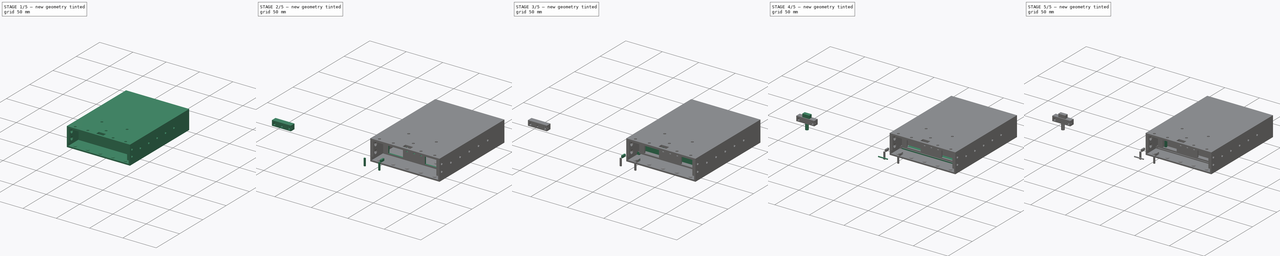
[diagram: build sequence overview — one tinted view per stage of 5, left to right]
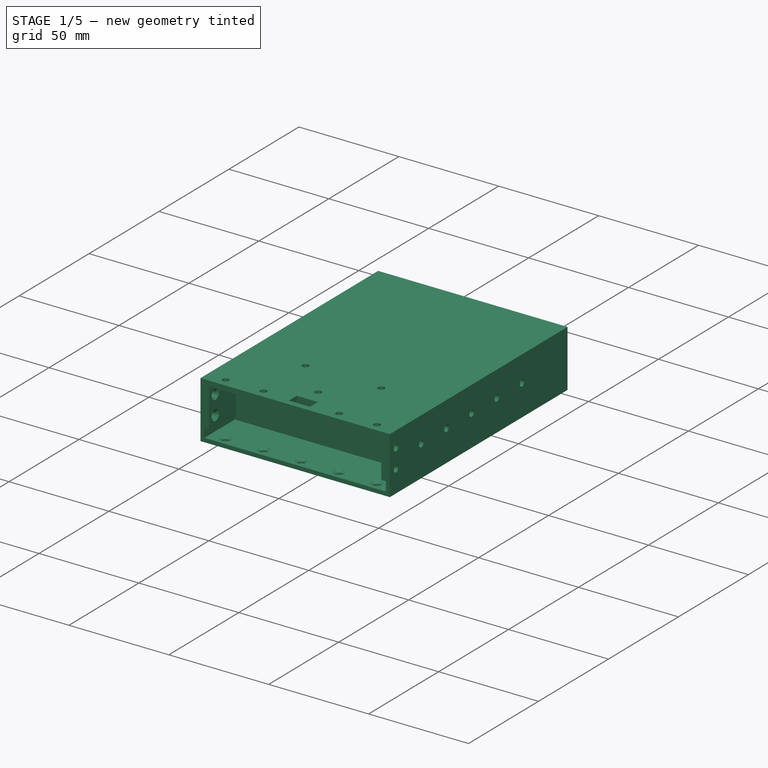
[diagram: stage 1 of 5 — iso view after this stage's code; geometry added in this stage tinted green]
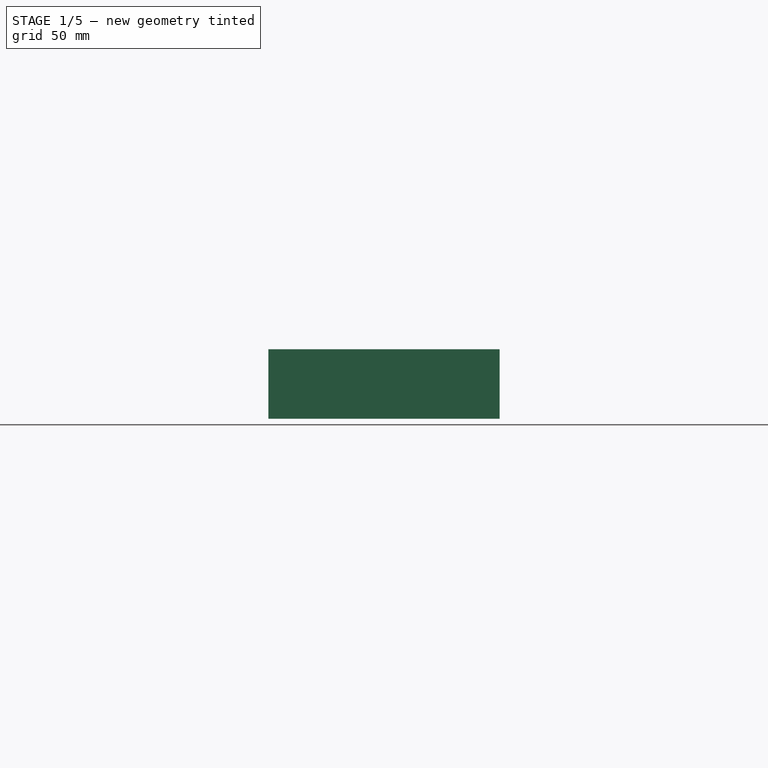
[diagram: stage 1 of 5 — front view after this stage's code; geometry added in this stage tinted green]
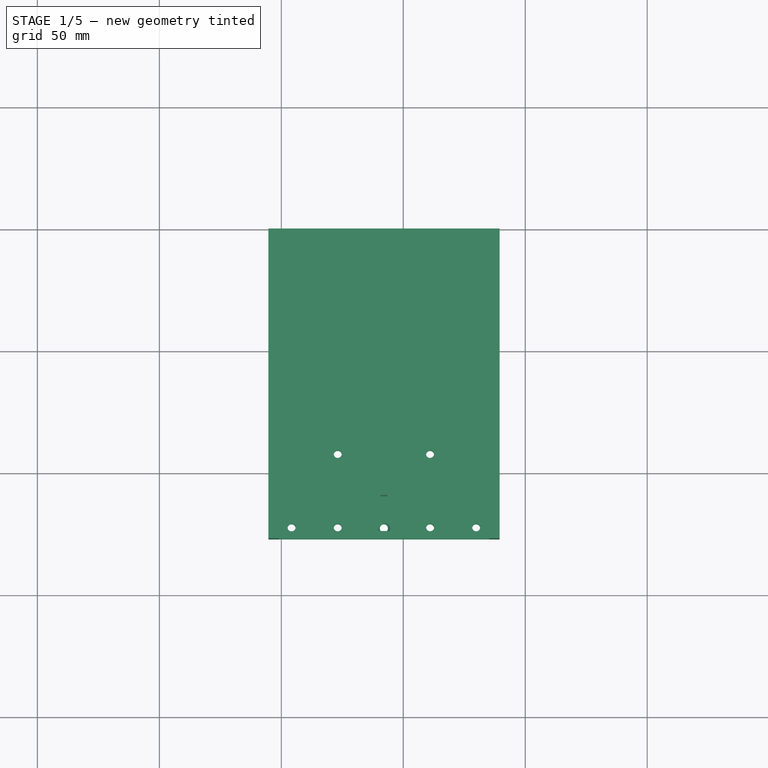
[diagram: stage 1 of 5 — top view after this stage's code; geometry added in this stage tinted green]
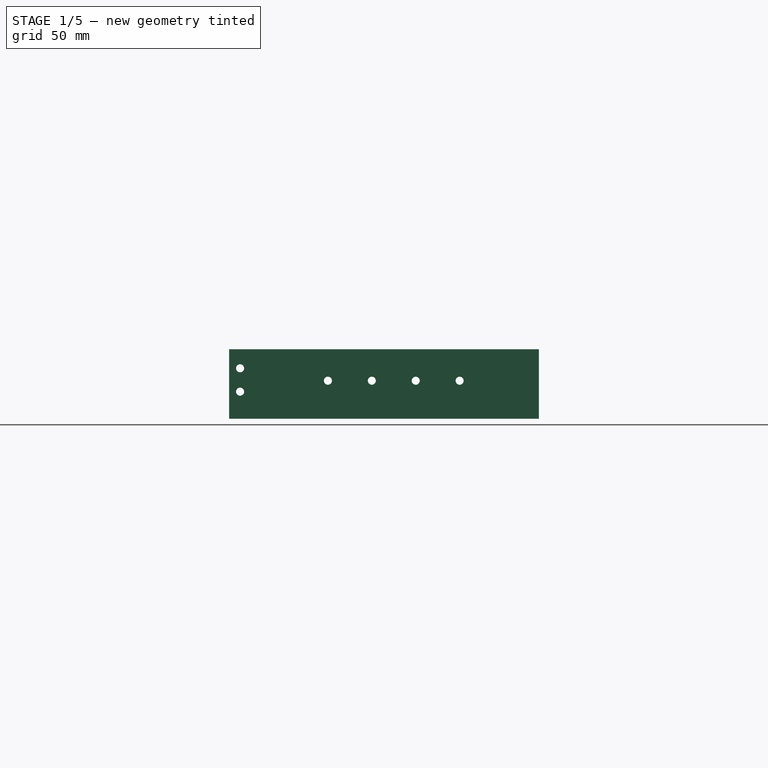
[diagram: stage 1 of 5 — right view after this stage's code; geometry added in this stage tinted green]
FCSTD DOCUMENT  (FreeCAD 0.21R33771 (Git))
Label: Final Battery Design v1.1
License: All rights reserved
LicenseURL: http://en.wikipedia.org/wiki/All_rights_reserved
objects: Sketcher::SketchObject×62, Part::Extrusion×29, App::MeasureDistance×22, PartDesign::Hole×17, App::Part×13, PartDesign::FeatureBase×12, PartDesign::Pocket×12, PartDesign::Body×9, Part::Feature×4, PartDesign::Pad×2, TechDraw::DrawViewDimension×2, TechDraw::DrawSVGTemplate×1, TechDraw::DrawViewPart×1, TechDraw::DrawPage×1
note: 180 computed .brp shape members not serialized (recipe doc carries the construction recipe); baked Part::Feature solids carry a one-line shape summary decoded from their .brp

FEATURE [App::Part] Part004  label="handle to mechanism pin"
  Group = -> [Body004,Sketch019,Extrude011,Sketch020,Extrude012]
  Origin = -> Origin008
  Placement = pos=(34.67,54.77,7.74) rot=(0,0,1;0rad)
FEATURE [Sketcher::SketchObject] Sketch021
  FullyConstrained = false
  MapMode = 5
  Support = -> [XY_Plane010]
  sketch-geometry (4):
    g0: LineSegment StartX=0 StartY=-99.794 StartZ=0 EndX=84.2 EndY=-99.794 EndZ=0
    g1: LineSegment StartX=84.2 StartY=-99.794 StartZ=0 EndX=84.2 EndY=-109.304 EndZ=0
    g2: LineSegment StartX=84.2 StartY=-109.304 StartZ=0 EndX=0 EndY=-109.304 EndZ=0
    g3: LineSegment StartX=0 StartY=-109.304 StartZ=0 EndX=0 EndY=-99.794 EndZ=0
  constraints (11):
    c: Coincident(g0,g1)
    c: Coincident(g1,g2)
    c: Coincident(g2,g3)
    c: Coincident(g3,g0)
    c: Horizontal(g0)
    c: Horizontal(g2)
    c: Vertical(g1)
    c: Vertical(g3)
    c: PointOnObject(g0,g-2)
    c: DistanceX(g2,g2) = 84.2
    c: DistanceY(g1,g1) = 9.51
FEATURE [Part::Extrusion] Extrude013
  Base = -> Sketch021
  Dir = (0,0,1)
  DirMode = 2
  FaceMakerClass = Part::FaceMakerBullseye
  LengthFwd = 2
  LengthRev = 0
  Solid = true
  Symmetric = false
FEATURE [Part::Extrusion] Extrude014  label="FRONT WALL"
  Base = -> Sketch022
  Dir = (0,0,1)
  DirMode = 2
  FaceMakerClass = Part::FaceMakerBullseye
  LengthFwd = 19.3
  LengthRev = 0
  Solid = true
  Symmetric = false
FEATURE [App::MeasureDistance] Distance009  label="Distance: 3.00017 mm"
  Distance = 3.00017
  P1 = (0,-109.3,3.96765)
  P2 = (-3,-109.3,3.93616)
FEATURE [App::MeasureDistance] Distance010  label="Distance: 90.20000 mm"
  Distance = 90.2
  P1 = (-3,-109.3,0)
  P2 = (87.2,-109.302,0)
FEATURE [Sketcher::SketchObject] Sketch052
  FullyConstrained = false
  MapMode = 5
  Placement = pos=(0,0,0) rot=(1,0,0;1.5708rad)
  Support = -> [XZ_Plane016]
  sketch-geometry (17):
    g0: LineSegment StartX=-3.3 StartY=-0.299995 StartZ=0 EndX=-3.3 EndY=4.3 EndZ=0
    g1: LineSegment StartX=-0.999999 StartY=4.82 StartZ=0 EndX=-0.999999 EndY=23.5976 EndZ=0
    g2: LineSegment StartX=85.2 StartY=23.5976 StartZ=0 EndX=85.2 EndY=4.81758 EndZ=0
    g3: LineSegment StartX=87.5 StartY=4.3 StartZ=0 EndX=87.5 EndY=-0.299995 EndZ=0
    g4: LineSegment StartX=87.5 StartY=-0.299995 StartZ=0 EndX=-3.3 EndY=-0.299995 EndZ=0
    g5: LineSegment StartX=-5.3 StartY=-2.3 StartZ=0 EndX=89.5 EndY=-2.3 EndZ=0
    g6: LineSegment StartX=89.5 StartY=-2.3 StartZ=0 EndX=89.5 EndY=26.19 EndZ=0
    g7: LineSegment StartX=-5.3 StartY=-2.3 StartZ=0 EndX=-5.3 EndY=26.19 EndZ=0
    g8: LineSegment StartX=-0.3 StartY=4.2 StartZ=0 EndX=-1 EndY=4.2 EndZ=0
    g9: LineSegment StartX=84.5 StartY=4.2 StartZ=0 EndX=85.2 EndY=4.2 EndZ=0
    g10: LineSegment StartX=85.3 StartY=23.1 StartZ=0 EndX=85.3 EndY=23.6 EndZ=0
    g11: LineSegment StartX=87.5 StartY=4.3 StartZ=0 EndX=85.2 EndY=4.3 EndZ=0
    g12: LineSegment StartX=85.2 StartY=4.3 StartZ=0 EndX=85.2 EndY=4.81758 EndZ=0
    g13: LineSegment StartX=-3.3 StartY=4.3 StartZ=0 EndX=-0.999999 EndY=4.3 EndZ=0
    g14: LineSegment StartX=-0.999999 StartY=4.3 StartZ=0 EndX=-0.999999 EndY=4.82 EndZ=0
    g15: LineSegment StartX=-0.999999 StartY=23.5976 StartZ=0 EndX=85.2 EndY=23.5976 EndZ=0
    g16: LineSegment StartX=89.5 StartY=26.19 StartZ=0 EndX=-5.3 EndY=26.19 EndZ=0
  constraints (43):
    c: Vertical(g0)
    c: Vertical(g1)
    c: Vertical(g2)
    c: Vertical(g3)
    c: Coincident(g3,g4)
    c: Coincident(g4,g0)
    c: Horizontal(g4)
    c: DistanceX(g4,g4) = 90.8
    c: DistanceY(g3,g3) = 4.6
    c: DistanceY(g0,g0) = 4.6
    c: Horizontal(g5)
    c: Coincident(g6,g5)
    c: Vertical(g6)
    c: DistanceY(g6,g6) = 28.49
    c: Coincident(g5,g7)
    c: Vertical(g7)
    c: Horizontal(g8)
    c: DistanceX(g9,g9) = 0.7
    c: DistanceX(g8,g8) = 0.7
    c: Vertical(g10)
    c: DistanceY(g10,g10) = 0.5
    c: DistanceY(g2,g2) = 18.78
    c: Coincident(g3,g11)
    c: Horizontal(g11)
    c: Coincident(g11,g12)
    c: Coincident(g12,g2)
    c: Vertical(g12)
    c: Coincident(g0,g13)
    c: Horizontal(g13)
    c: Coincident(g13,g14)
    c: Coincident(g14,g1)
    c: Vertical(g14)
    c: DistanceX(g13,g13) = 2.3
    c: DistanceY(g14,g14) = 0.52
    c: DistanceY(g12,g12) = 0.51758
    c: DistanceX(g11,g11) = 2.3
    c: Coincident(g15,g1)
    c: Coincident(g15,g2)
    c: Horizontal(g15)
    c: Coincident(g16,g6)
    c: Coincident(g16,g7)
    c: Horizontal(g16)
    c: DistanceX(g16,g16) = 94.8
FEATURE [App::MeasureDistance] Distance011  label="Distance: 94.80000 mm"
  Distance = 94.8
  P1 = (89.5,2.74181e-07,-2.3)
  P2 = (-5.3,2.74181e-07,-2.3)
FEATURE [App::MeasureDistance] Distance012  label="Distance: 94.92901 mm"
  Distance = 94.929
  P1 = (0,-109.3,22.6426)
  P2 = (0,-14.3705,22.6545)
FEATURE [App::Part] Part006  label="Batt Measurements"
  Group = -> [Distance,Distance001,Distance002,Distance003,Distance004,Distance005,Distance007,Distance008,Distance009,Distance010,Distance011,Distance012]
  Origin = -> Origin013
FEATURE [Part::Extrusion] Extrude029  label="base extrusion"
  Base = -> Sketch052
  Dir = (0,-1,-2e-16)
  DirMode = 2
  FaceMakerClass = Part::FaceMakerBullseye
  LengthFwd = 127
  LengthRev = 0
  Solid = true
  Symmetric = false
FEATURE [PartDesign::FeatureBase] BaseFeature010
  BaseFeature = -> Extrude029
FEATURE [PartDesign::Body] Body005  label="FRONT BODY"
  Group = -> [Sketch048,Hole009,Sketch062,Pocket011,Sketch074,Pocket013]
  Origin = -> Origin010
  Tip = -> Pocket013
FEATURE [App::Part] Part  label="main enclosure"
  Group = -> [Body,Extrude004,Extrude005,Sketch007,Sketch006,Body005,BaseFeature,Sketch009,Sketch027,Extrude017,Sketch028,Sketch029,Hole004,Extrude018,Extrude015,BaseFeature005,Hole002,Sketch024,Sketch023,Sketch025,Sketch026,Sketch034,Extrude016,Hole003,Extrude021,Sketch036,Hole007,Extrude013,Sketch021,Sketch022,Pocket006,Sketch042,BaseFeature007,Extrude014,Pocket,Sketch030,Hole005,Body001,Extrude003,+18 more]
  Origin = -> Origin
FEATURE [App::Part] Part009  label="Battery"
  Group = -> [Part,Part005,Part007,Part001,Part006,Sketch041,Extrude032]
  Origin = -> Origin017
  Placement = pos=(0,-17.7,0) rot=(0,0,1;0rad)
FEATURE [App::MeasureDistance] Distance023  label="Distance: 5.00073 mm"
  Distance = 5.00073
  P1 = (-0.300001,-127,4.3)
  P2 = (-5.29715,-127,4.48935)
FEATURE [PartDesign::FeatureBase] BaseFeature014
  BaseFeature = -> BaseFeature010
FEATURE [Sketcher::SketchObject] Sketch076  label="right side screw holes001"
  FullyConstrained = false
  MapMode = 5
  Placement = pos=(85.2,0,0) rot=(0.57735,-0.57735,-0.57735;2.0944rad)
  Support = -> [BaseFeature014]
  sketch-geometry (21):
    g0: LineSegment StartX=127 StartY=4.27233 StartZ=0 EndX=127 EndY=22.9667 EndZ=0
    g1: LineSegment StartX=127 StartY=4.29202 StartZ=0 EndX=127 EndY=13.292 EndZ=0
    g2: LineSegment StartX=127 StartY=13.292 StartZ=0 EndX=26.92 EndY=13.292 EndZ=0
    g3: LineSegment StartX=127.04 StartY=4.3 StartZ=0 EndX=127.04 EndY=8.79999 EndZ=0
    g4: LineSegment StartX=127.04 StartY=8.79999 StartZ=0 EndX=127 EndY=8.79999 EndZ=0
    g5: LineSegment StartX=127 StartY=8.79999 StartZ=0 EndX=122.5 EndY=8.79999 EndZ=0
    g6: LineSegment StartX=127 StartY=22.9667 StartZ=0 EndX=127 EndY=18.3926 EndZ=0
    g7: LineSegment StartX=127 StartY=18.3926 StartZ=0 EndX=122.5 EndY=18.3926 EndZ=0
    g8: LineSegment StartX=122.5 StartY=8.79999 StartZ=0 EndX=122.5 EndY=13.292 EndZ=0
    g9: LineSegment StartX=122.5 StartY=13.292 StartZ=0 EndX=104.494 EndY=13.292 EndZ=0
    g10: LineSegment StartX=104.494 StartY=13.292 StartZ=0 EndX=86.49 EndY=13.292 EndZ=0
    g11: LineSegment StartX=86.49 StartY=13.292 StartZ=0 EndX=68.4897 EndY=13.292 EndZ=0
    g12: LineSegment StartX=68.4897 StartY=13.292 StartZ=0 EndX=50.4896 EndY=13.292 EndZ=0
    g13: LineSegment StartX=50.4896 StartY=13.292 StartZ=0 EndX=32.4898 EndY=13.292 EndZ=0
    g14: Circle CenterX=122.5 CenterY=18.3926 CenterZ=0 NormalX=0 NormalY=0 NormalZ=1 AngleXU=0 Radius=2.55
    g15: Circle CenterX=122.5 CenterY=8.79999 CenterZ=0 NormalX=0 NormalY=0 NormalZ=1 AngleXU=0 Radius=2.55
    g16: Circle CenterX=104.494 CenterY=13.292 CenterZ=0 NormalX=0 NormalY=0 NormalZ=1 AngleXU=0 Radius=2.55
    g17: Circle CenterX=86.49 CenterY=13.292 CenterZ=0 NormalX=0 NormalY=0 NormalZ=1 AngleXU=0 Radius=2.55
    g18: Circle CenterX=68.4897 CenterY=13.292 CenterZ=0 NormalX=0 NormalY=0 NormalZ=1 AngleXU=0 Radius=2.55
    g19: Circle CenterX=32.4898 CenterY=13.292 CenterZ=0 NormalX=0 NormalY=0 NormalZ=1 AngleXU=0 Radius=2.55
    g20: Circle CenterX=50.4896 CenterY=13.292 CenterZ=0 NormalX=0 NormalY=0 NormalZ=1 AngleXU=0 Radius=2.55
  constraints (44):
    c: Vertical(g0)
    c: DistanceY(g0,g0) = 18.6944
    c: Vertical(g1)
    c: DistanceY(g1,g1) = 9
    c: Coincident(g2,g1)
    c: Horizontal(g2)
    c: DistanceX(g2,g2) = 100.08
    c: Vertical(g3)
    c: Coincident(g4,g3)
    c: PointOnObject(g4,g0)
    c: Horizontal(g4)
    c: Coincident(g5,g4)
    c: Horizontal(g5)
    c: PointOnObject(g6,g0)
    c: Vertical(g6)
    c: Coincident(g7,g6)
    c: Horizontal(g7)
    c: Coincident(g5,g8)
    c: PointOnObject(g8,g2)
    c: Vertical(g8)
    c: Coincident(g8,g9)
    c: PointOnObject(g9,g2)
    c: Coincident(g9,g10)
    c: PointOnObject(g10,g2)
    c: Coincident(g10,g11)
    c: PointOnObject(g11,g2)
    c: Coincident(g11,g12)
    c: PointOnObject(g12,g2)
    c: Coincident(g12,g13)
    c: PointOnObject(g13,g2)
    c: Coincident(g14,g7)
    c: Coincident(g15,g5)
    c: Coincident(g16,g9)
    c: Coincident(g17,g10)
    c: Coincident(g18,g11)
    c: Coincident(g19,g13)
    c: Diameter(g19) = 5.1
    c: Diameter(g18) = 5.1
    c: Diameter(g17) = 5.1
    c: Diameter(g16) = 5.1
    c: Diameter(g14) = 5.1
    c: Diameter(g15) = 5.1
    c: Coincident(g20,g12)
    c: Diameter(g20) = 5.1
FEATURE [PartDesign::Hole] Hole018  label="R holes"
  BaseFeature = -> BaseFeature014
  CustomThreadClearance = 0
  Depth = 25
  DepthType = 0
  Diameter = 3.3
  DrillForDepth = false
  DrillPoint = 0
  DrillPointAngle = 118
  HoleCutCountersinkAngle = 90
  HoleCutCustomValues = false
  HoleCutDepth = 2.3
  HoleCutDiameter = 5.3
  HoleCutType = 2
  ModelThread = false
  Profile = -> Sketch076
  Tapered = false
  TaperedAngle = 90
  ThreadClass = 0
  ThreadDepth = 25
  ThreadDepthType = 0
  ThreadDirection = 0
  ThreadFit = 0
  ThreadSize = 0
  ThreadType = 0
  Threaded = false
  UseCustomThreadClearance = false
FEATURE [Sketcher::SketchObject] MirroredSketch001  label="left side screw holes001"
  FullyConstrained = false
  MapMode = 5
  Placement = pos=(-0.999999,0,0) rot=(0.57735,0.57735,0.57735;2.0944rad)
  Support = -> [Hole018]
  sketch-geometry (21):
    g0: LineSegment StartX=-127 StartY=4.27233 StartZ=0 EndX=-127 EndY=22.9667 EndZ=0
    g1: LineSegment StartX=-127 StartY=4.29202 StartZ=0 EndX=-127 EndY=13.292 EndZ=0
    g2: LineSegment StartX=-127 StartY=13.292 StartZ=0 EndX=-26.92 EndY=13.292 EndZ=0
    g3: LineSegment StartX=-127.04 StartY=4.3 StartZ=0 EndX=-127.04 EndY=8.79999 EndZ=0
    g4: LineSegment StartX=-127.04 StartY=8.79999 StartZ=0 EndX=-127 EndY=8.79999 EndZ=0
    g5: LineSegment StartX=-127 StartY=8.79999 StartZ=0 EndX=-122.5 EndY=8.79999 EndZ=0
    g6: LineSegment StartX=-127 StartY=22.9667 StartZ=0 EndX=-127 EndY=18.3926 EndZ=0
    g7: LineSegment StartX=-127 StartY=18.3926 StartZ=0 EndX=-122.5 EndY=18.3926 EndZ=0
    g8: LineSegment StartX=-122.5 StartY=8.79999 StartZ=0 EndX=-122.5 EndY=13.292 EndZ=0
    g9: LineSegment StartX=-122.5 StartY=13.292 StartZ=0 EndX=-104.494 EndY=13.292 EndZ=0
    g10: LineSegment StartX=-104.494 StartY=13.292 StartZ=0 EndX=-86.49 EndY=13.292 EndZ=0
    g11: LineSegment StartX=-86.49 StartY=13.292 StartZ=0 EndX=-68.4897 EndY=13.292 EndZ=0
    g12: LineSegment StartX=-68.4897 StartY=13.292 StartZ=0 EndX=-50.4896 EndY=13.292 EndZ=0
    g13: LineSegment StartX=-50.4896 StartY=13.292 StartZ=0 EndX=-32.4898 EndY=13.292 EndZ=0
    g14: Circle CenterX=-122.5 CenterY=18.3926 CenterZ=0 NormalX=0 NormalY=0 NormalZ=1 AngleXU=0 Radius=2.55
    g15: Circle CenterX=-122.5 CenterY=8.79999 CenterZ=0 NormalX=0 NormalY=0 NormalZ=1 AngleXU=0 Radius=2.55
    g16: Circle CenterX=-104.494 CenterY=13.292 CenterZ=0 NormalX=0 NormalY=0 NormalZ=1 AngleXU=0 Radius=2.55
    g17: Circle CenterX=-86.49 CenterY=13.292 CenterZ=0 NormalX=0 NormalY=0 NormalZ=1 AngleXU=0 Radius=2.55
    g18: Circle CenterX=-68.4897 CenterY=13.292 CenterZ=0 NormalX=0 NormalY=0 NormalZ=1 AngleXU=0 Radius=2.55
    g19: Circle CenterX=-32.4898 CenterY=13.292 CenterZ=0 NormalX=0 NormalY=0 NormalZ=1 AngleXU=0 Radius=2.55
    g20: Circle CenterX=-50.4896 CenterY=13.292 CenterZ=0 NormalX=0 NormalY=0 NormalZ=1 AngleXU=0 Radius=2.55
  constraints (41):
    c: Vertical(g0)
    c: Vertical(g1)
    c: Coincident(g2,g1)
    c: Horizontal(g2)
    c: Vertical(g3)
    c: Coincident(g4,g3)
    c: PointOnObject(g4,g0)
    c: Horizontal(g4)
    c: Coincident(g5,g4)
    c: Horizontal(g5)
    c: PointOnObject(g6,g0)
    c: Vertical(g6)
    c: Coincident(g7,g6)
    c: Horizontal(g7)
    c: Coincident(g5,g8)
    c: PointOnObject(g8,g2)
    c: Vertical(g8)
    c: Coincident(g8,g9)
    c: PointOnObject(g9,g2)
    c: Coincident(g9,g10)
    c: PointOnObject(g10,g2)
    c: Coincident(g10,g11)
    c: PointOnObject(g11,g2)
    c: Coincident(g11,g12)
    c: PointOnObject(g12,g2)
    c: Coincident(g12,g13)
    c: PointOnObject(g13,g2)
    c: Coincident(g14,g7)
    c: Coincident(g15,g5)
    c: Coincident(g16,g9)
    c: Coincident(g17,g10)
    c: Coincident(g18,g11)
    c: Coincident(g19,g13)
    c: Diameter(g19) = 5.1
    c: Diameter(g18) = 5.1
    c: Diameter(g17) = 5.1
    c: Diameter(g16) = 5.1
    c: Diameter(g14) = 5.1
    c: Diameter(g15) = 5.1
    c: Coincident(g20,g12)
    c: Diameter(g20) = 5.1
FEATURE [PartDesign::Hole] Hole019  label="L holes"
  BaseFeature = -> Hole018
  CustomThreadClearance = 0
  Depth = 25
  DepthType = 0
  Diameter = 3.3
  DrillForDepth = false
  DrillPoint = 0
  DrillPointAngle = 118
  HoleCutCountersinkAngle = 90
  HoleCutCustomValues = false
  HoleCutDepth = 2.3
  HoleCutDiameter = 5.3
  HoleCutType = 2
  ModelThread = false
  Profile = -> MirroredSketch001
  Tapered = false
  TaperedAngle = 90
  ThreadClass = 0
  ThreadDepth = 25
  ThreadDepthType = 0
  ThreadDirection = 0
  ThreadFit = 0
  ThreadSize = 0
  ThreadType = 0
  Threaded = false
  UseCustomThreadClearance = false
FEATURE [Sketcher::SketchObject] Sketch077  label="base mounting holes001"
  FullyConstrained = false
  MapMode = 5
  Placement = pos=(0,1e-16,-0.299995) rot=(0,0,1;0rad)
  Support = -> [Hole019]
  sketch-geometry (21):
    g0: LineSegment StartX=-3.39232 StartY=-126.994 StartZ=0 EndX=-0.3 EndY=-126.994 EndZ=0
    g1: LineSegment StartX=-0.3 StartY=-126.994 StartZ=0 EndX=87.4321 EndY=-126.994 EndZ=0
    g2: LineSegment StartX=84.4483 StartY=-126.994 StartZ=0 EndX=87.4321 EndY=-126.994 EndZ=0
    g3: LineSegment StartX=-0.3 StartY=-126.994 StartZ=0 EndX=-0.3 EndY=-26.8938 EndZ=0
    g4: LineSegment StartX=-0.3 StartY=-126.994 StartZ=0 EndX=-0.3 EndY=-122.493 EndZ=0
    g5: LineSegment StartX=-0.3 StartY=-122.493 StartZ=0 EndX=4.20453 EndY=-122.493 EndZ=0
    g6: LineSegment StartX=4.20453 StartY=-122.493 StartZ=0 EndX=23.1295 EndY=-122.493 EndZ=0
    g7: LineSegment StartX=23.1299 StartY=-122.493 StartZ=0 EndX=42.0549 EndY=-122.493 EndZ=0
    g8: LineSegment StartX=42.0549 StartY=-122.493 StartZ=0 EndX=60.9799 EndY=-122.493 EndZ=0
    g9: LineSegment StartX=60.98 StartY=-122.493 StartZ=0 EndX=79.905 EndY=-122.493 EndZ=0
    g10: LineSegment StartX=84.4483 StartY=-126.994 StartZ=0 EndX=84.4483 EndY=-122.493 EndZ=0
    g11: LineSegment StartX=79.905 StartY=-122.493 StartZ=0 EndX=84.4483 EndY=-122.493 EndZ=0
    g12: LineSegment StartX=23.1295 StartY=-122.493 StartZ=0 EndX=23.1295 EndY=-92.4 EndZ=0
    g13: LineSegment StartX=60.9799 StartY=-122.493 StartZ=0 EndX=60.9799 EndY=-92.4 EndZ=0
    g14: Circle CenterX=4.20453 CenterY=-122.493 CenterZ=0 NormalX=0 NormalY=0 NormalZ=1 AngleXU=0 Radius=2.55
    g15: Circle CenterX=23.1299 CenterY=-122.493 CenterZ=0 NormalX=0 NormalY=0 NormalZ=1 AngleXU=0 Radius=2.55
    g16: Circle CenterX=42.0549 CenterY=-122.493 CenterZ=0 NormalX=0 NormalY=0 NormalZ=1 AngleXU=0 Radius=2.55
    g17: Circle CenterX=60.9799 CenterY=-122.493 CenterZ=0 NormalX=0 NormalY=0 NormalZ=1 AngleXU=0 Radius=2.55
    g18: Circle CenterX=79.905 CenterY=-122.493 CenterZ=0 NormalX=0 NormalY=0 NormalZ=1 AngleXU=0 Radius=2.55
    g19: Circle CenterX=60.9799 CenterY=-92.4 CenterZ=0 NormalX=0 NormalY=0 NormalZ=1 AngleXU=0 Radius=2.55
    g20: Circle CenterX=23.1295 CenterY=-92.4 CenterZ=0 NormalX=0 NormalY=0 NormalZ=1 AngleXU=0 Radius=2.55
  constraints (52):
    c: Horizontal(g0)
    c: Coincident(g0,g1)
    c: Horizontal(g1)
    c: PointOnObject(g2,g1)
    c: Coincident(g2,g1)
    c: DistanceX(g1,g1) = 87.7321
    c: DistanceX(g0,g0) = 3.09232
    c: Coincident(g0,g3)
    c: Vertical(g3)
    c: DistanceY(g3,g3) = 100.1
    c: Coincident(g4,g0)
    c: PointOnObject(g4,g3)
    c: DistanceY(g4,g4) = 4.50086
    c: Coincident(g4,g5)
    c: Horizontal(g5)
    c: DistanceX(g5,g5) = 4.50453
    c: Coincident(g5,g6)
    c: Horizontal(g6)
    c: DistanceX(g6,g6) = 18.925
    c: Horizontal(g7)
    c: DistanceX(g7,g7) = 18.925
    c: Horizontal(g8)
    c: DistanceX(g8,g8) = 18.925
    c: Horizontal(g9)
    c: DistanceX(g9,g9) = 18.925
    c: DistanceX(g2,g2) = 2.98381
    c: Coincident(g10,g2)
    c: Vertical(g10)
    c: Coincident(g11,g9)
    c: Coincident(g11,g10)
    c: Horizontal(g11)
    c: DistanceX(g11,g11) = 4.54329
    c: Coincident(g12,g6)
    c: Vertical(g12)
    c: Coincident(g13,g8)
    c: Vertical(g13)
    c: DistanceY(g12,g12) = 30.0929
    c: DistanceY(g13,g13) = 30.093
    c: Coincident(g14,g5)
    c: Coincident(g15,g7)
    c: Coincident(g16,g7)
    c: Coincident(g17,g8)
    c: Coincident(g18,g9)
    c: Coincident(g19,g13)
    c: Coincident(g20,g12)
    c: Diameter(g20) = 5.1
    c: Diameter(g19) = 5.1
    c: Diameter(g16) = 5.1
    c: Diameter(g15) = 5.1
    c: Diameter(g14) = 5.1
    c: Diameter(g17) = 5.1
    c: Diameter(g18) = 5.1
FEATURE [PartDesign::Hole] Hole020  label="base holes"
  BaseFeature = -> Hole019
  CustomThreadClearance = 0
  Depth = 25
  DepthType = 0
  Diameter = 3.3
  DrillForDepth = false
  DrillPoint = 0
  DrillPointAngle = 118
  HoleCutCountersinkAngle = 90
  HoleCutCustomValues = false
  HoleCutDepth = 2.3
  HoleCutDiameter = 5.3
  HoleCutType = 2
  ModelThread = false
  Profile = -> Sketch077
  Tapered = false
  TaperedAngle = 90
  ThreadClass = 0
  ThreadDepth = 25
  ThreadDepthType = 0
  ThreadDirection = 0
  ThreadFit = 0
  ThreadSize = 0
  ThreadType = 0
  Threaded = false
  UseCustomThreadClearance = false
FEATURE [Sketcher::SketchObject] Sketch078  label="top holes sketch"
  FullyConstrained = false
  MapMode = 5
  Placement = pos=(0,-5.2e-15,23.5976) rot=(1,0,0;3.14159rad)
  Support = -> [Hole020]
  sketch-geometry (7):
    g0: Circle CenterX=4.2 CenterY=122.5 CenterZ=0 NormalX=0 NormalY=0 NormalZ=1 AngleXU=0 Radius=2.55
    g1: Circle CenterX=23.1306 CenterY=122.5 CenterZ=0 NormalX=0 NormalY=0 NormalZ=1 AngleXU=0 Radius=2.55
    g2: Circle CenterX=42.0697 CenterY=110.4 CenterZ=0 NormalX=0 NormalY=0 NormalZ=1 AngleXU=0 Radius=2.55
    g3: Circle CenterX=61 CenterY=122.463 CenterZ=0 NormalX=0 NormalY=0 NormalZ=1 AngleXU=0 Radius=2.55
    g4: Circle CenterX=79.9 CenterY=122.5 CenterZ=0 NormalX=0 NormalY=0 NormalZ=1 AngleXU=0 Radius=2.55
    g5: Circle CenterX=60.9712 CenterY=92.4 CenterZ=0 NormalX=0 NormalY=0 NormalZ=1 AngleXU=0 Radius=2.55
    g6: Circle CenterX=23.1258 CenterY=92.4 CenterZ=0 NormalX=0 NormalY=0 NormalZ=1 AngleXU=0 Radius=2.55
  constraints (7):
    c: Diameter(g0) = 5.1
    c: Diameter(g1) = 5.1
    c: Diameter(g3) = 5.1
    c: Diameter(g4) = 5.1
    c: Diameter(g2) = 5.1
    c: Diameter(g6) = 5.1
    c: Diameter(g5) = 5.1
FEATURE [PartDesign::Hole] Hole021  label="top holes"
  BaseFeature = -> Hole020
  CustomThreadClearance = 0
  Depth = 25
  DepthType = 0
  Diameter = 3.3
  DrillForDepth = false
  DrillPoint = 0
  DrillPointAngle = 118
  HoleCutCountersinkAngle = 90
  HoleCutCustomValues = false
  HoleCutDepth = 2.3
  HoleCutDiameter = 5.3
  HoleCutType = 2
  ModelThread = false
  Profile = -> Sketch078
  Tapered = false
  TaperedAngle = 90
  ThreadClass = 0
  ThreadDepth = 25
  ThreadDepthType = 0
  ThreadDirection = 0
  ThreadFit = 0
  ThreadSize = 0
  ThreadType = 0
  Threaded = false
  UseCustomThreadClearance = false
FEATURE [Sketcher::SketchObject] Sketch053  label="bolt hole sketch"
  FullyConstrained = false
  MapMode = 5
  Placement = pos=(0,-5.8e-15,26.19) rot=(0,0,1;0rad)
  Support = -> [Hole021]
  sketch-geometry (4):
    g0: LineSegment StartX=36.86 StartY=-118.41 StartZ=0 EndX=47.46 EndY=-118.41 EndZ=0
    g1: LineSegment StartX=47.46 StartY=-118.41 StartZ=0 EndX=47.46 EndY=-124.01 EndZ=0
    g2: LineSegment StartX=47.46 StartY=-124.01 StartZ=0 EndX=36.86 EndY=-124.01 EndZ=0
    g3: LineSegment StartX=36.86 StartY=-124.01 StartZ=0 EndX=36.86 EndY=-118.41 EndZ=0
  constraints (10):
    c: Coincident(g0,g1)
    c: Coincident(g1,g2)
    c: Coincident(g2,g3)
    c: Coincident(g3,g0)
    c: Horizontal(g0)
    c: Horizontal(g2)
    c: Vertical(g1)
    c: Vertical(g3)
    c: DistanceX(g2,g2) = 10.6
    c: DistanceY(g1,g1) = 5.6
FEATURE [PartDesign::Pocket] Pocket014
  BaseFeature = -> Hole021
  Direction = (0,2e-16,-1)
  Length = 5
  Length2 = 5
  Profile = -> Sketch053
  ReferenceAxis = -> Sketch053 [N_Axis]
  Type = 0
FEATURE [Sketcher::SketchObject] Sketch061  label="rear plate mounting holes"
  FullyConstrained = false
  MapMode = 5
  Placement = pos=(0,0,0) rot=(0,0.707107,0.707107;3.14159rad)
  Support = -> [Pocket014]
  sketch-geometry (4):
    g0: Circle CenterX=-87 CenterY=8 CenterZ=0 NormalX=0 NormalY=0 NormalZ=1 AngleXU=0 Radius=1.5
    g1: Circle CenterX=-87 CenterY=24 CenterZ=0 NormalX=0 NormalY=0 NormalZ=1 AngleXU=0 Radius=1.5
    g2: Circle CenterX=3 CenterY=24 CenterZ=0 NormalX=0 NormalY=0 NormalZ=1 AngleXU=0 Radius=1.5
    g3: Circle CenterX=3 CenterY=8 CenterZ=0 NormalX=0 NormalY=0 NormalZ=1 AngleXU=0 Radius=1.5
  constraints (4):
    c: Diameter(g0) = 3
    c: Diameter(g1) = 3
    c: Diameter(g2) = 3
    c: Diameter(g3) = 3
FEATURE [PartDesign::Hole] Hole022  label="rear plate heat insert holes"
  BaseFeature = -> Pocket014
  CustomThreadClearance = 0
  Depth = 2.5
  DepthType = 0
  Diameter = 3.2
  DrillForDepth = false
  DrillPoint = 0
  DrillPointAngle = 118
  HoleCutCountersinkAngle = 90
  HoleCutCustomValues = false
  HoleCutDepth = 0
  HoleCutDiameter = 6.1
  HoleCutType = 0
  ModelThread = false
  Profile = -> Sketch061
  Tapered = false
  TaperedAngle = 90
  ThreadClass = 0
  ThreadDepth = 2.5
  ThreadDepthType = 0
  ThreadDirection = 0
  ThreadFit = 0
  ThreadSize = 0
  ThreadType = 0
  Threaded = false
  UseCustomThreadClearance = false
FEATURE [Sketcher::SketchObject] Sketch075  label="batt and circuit divider sketch"
  FullyConstrained = false
  MapMode = 5
  Placement = pos=(0,1e-16,-0.299995) rot=(0,0,1;0rad)
  Support = -> [Hole022]
  sketch-geometry (4):
    g0: LineSegment StartX=0 StartY=-24.9008 StartZ=0 EndX=84.2 EndY=-24.9008 EndZ=0
    g1: LineSegment StartX=84.2 StartY=-24.9008 StartZ=0 EndX=84.2 EndY=-26.9205 EndZ=0
    g2: LineSegment StartX=84.2 StartY=-26.9205 StartZ=0 EndX=0 EndY=-26.9205 EndZ=0
    g3: LineSegment StartX=0 StartY=-26.9205 StartZ=0 EndX=0 EndY=-24.9008 EndZ=0
  constraints (11):
    c: Coincident(g0,g1)
    c: Coincident(g1,g2)
    c: Coincident(g2,g3)
    c: Coincident(g3,g0)
    c: Horizontal(g0)
    c: Horizontal(g2)
    c: Vertical(g1)
    c: Vertical(g3)
    c: PointOnObject(g0,g-2)
    c: DistanceY(g1,g1) = 2.01975
    c: DistanceX(g0,g0) = 84.2
FEATURE [App::MeasureDistance] Distance024  label="Distance: 23.89325 mm"
  Distance = 23.8933
  P1 = (-1.01848,-5.2e-15,23.5929)
  P2 = (-1.1424,1e-16,-0.299995)
FEATURE [App::Part] Part010  label="internal sleeve measurements"
  Group = -> [Distance014,Distance013,Distance015,Distance016,Distance017,Distance018,Distance019,Distance020,Distance023,Distance024]
  Origin = -> Origin018
FEATURE [Sketcher::SketchObject] Sketch079  label="sides to batt circuit seperator sketch"
  FullyConstrained = false
  MapMode = 5
  Placement = pos=(0,-24.9008,-6e-15) rot=(0,0.707107,0.707107;3.14159rad)
  sketch-geometry (12):
    g0: LineSegment StartX=0 StartY=23.5967 StartZ=0 EndX=1 EndY=23.5967 EndZ=0
    g1: LineSegment StartX=1 StartY=23.5967 StartZ=0 EndX=1 EndY=4.3 EndZ=0
    g2: LineSegment StartX=1 StartY=4.3 StartZ=0 EndX=3.3 EndY=4.3 EndZ=0
    g3: LineSegment StartX=3.3 StartY=4.3 StartZ=0 EndX=3.3 EndY=-0.3 EndZ=0
    g4: LineSegment StartX=3.3 StartY=-0.3 StartZ=0 EndX=0 EndY=-0.3 EndZ=0
    g5: LineSegment StartX=0 StartY=-0.3 StartZ=0 EndX=0 EndY=23.5967 EndZ=0
    g6: LineSegment StartX=-84.2 StartY=23.6 StartZ=0 EndX=-85.2 EndY=23.6 EndZ=0
    g7: LineSegment StartX=-85.2 StartY=23.6 StartZ=0 EndX=-85.2 EndY=4.3 EndZ=0
    g8: LineSegment StartX=-85.2 StartY=4.3 StartZ=0 EndX=-87.5 EndY=4.3 EndZ=0
    g9: LineSegment StartX=-87.5 StartY=4.3 StartZ=0 EndX=-87.5 EndY=-0.3 EndZ=0
    g10: LineSegment StartX=-87.5 StartY=-0.3 StartZ=0 EndX=-84.2 EndY=-0.3 EndZ=0
    g11: LineSegment StartX=-84.2 StartY=-0.3 StartZ=0 EndX=-84.2 EndY=23.6 EndZ=0
  constraints (33):
    c: PointOnObject(g0,g-2)
    c: Horizontal(g0)
    c: Coincident(g0,g1)
    c: Vertical(g1)
    c: Coincident(g1,g2)
    c: Horizontal(g2)
    c: Coincident(g2,g3)
    c: Vertical(g3)
    c: Coincident(g3,g4)
    c: PointOnObject(g4,g-2)
    c: Horizontal(g4)
    c: Coincident(g4,g5)
    c: Coincident(g5,g0)
    c: DistanceY(g5,g5) = 23.8967
    c: DistanceY(g1,g1) = 19.2967
    c: DistanceX(g0,g0) = 1
    c: DistanceX(g2,g2) = 2.3
    c: Horizontal(g6)
    c: Coincident(g6,g7)
    c: Vertical(g7)
    c: Coincident(g7,g8)
    c: Horizontal(g8)
    c: Coincident(g8,g9)
    c: Vertical(g9)
    c: Coincident(g9,g10)
    c: Horizontal(g10)
    c: Coincident(g10,g11)
    c: Coincident(g11,g6)
    c: Vertical(g11)
    c: DistanceY(g11,g11) = 23.9
    c: DistanceY(g7,g7) = 19.3
    c: DistanceX(g6,g6) = 1
    c: DistanceX(g8,g8) = 2.3
FEATURE [PartDesign::Pad] Pad  label="main divider"
  BaseFeature = -> Hole022
  Direction = (0,-2e-16,1)
  Length = 23.9
  Length2 = 10
  Profile = -> Sketch075
  ReferenceAxis = -> Sketch075 [N_Axis]
  Type = 0
FEATURE [PartDesign::Pad] Pad001  label="divider edges"
  BaseFeature = -> Pad
  Direction = (0,1,-2e-16)
  Length = 2
  Length2 = 10
  Profile = -> Sketch079
  ReferenceAxis = -> Sketch079 [N_Axis]
  Reversed = true
  Type = 0
FEATURE [Sketcher::SketchObject] Sketch080
  FullyConstrained = false
  MapMode = 5
  Placement = pos=(0,-24.9008,-5.5e-15) rot=(0,0.707107,0.707107;3.14159rad)
  Support = -> [Pad001]
  sketch-geometry (4):
    g0: LineSegment StartX=-24.64 StartY=14 StartZ=0 EndX=-7 EndY=14 EndZ=0
    g1: LineSegment StartX=-7 StartY=14 StartZ=0 EndX=-7 EndY=10 EndZ=0
    g2: LineSegment StartX=-7 StartY=10 StartZ=0 EndX=-24.64 EndY=10 EndZ=0
    g3: LineSegment StartX=-24.64 StartY=10 StartZ=0 EndX=-24.64 EndY=14 EndZ=0
  constraints (10):
    c: Coincident(g0,g1)
    c: Coincident(g1,g2)
    c: Coincident(g2,g3)
    c: Coincident(g3,g0)
    c: Horizontal(g0)
    c: Horizontal(g2)
    c: Vertical(g1)
    c: Vertical(g3)
    c: DistanceX(g2,g2) = 17.64
    c: DistanceY(g1,g1) = 4
FEATURE [PartDesign::Pocket] Pocket015  label="magnetic pin slot"
  BaseFeature = -> Pad001
  Direction = (0,-1,-2e-16)
  Length = 5
  Length2 = 5
  Profile = -> Sketch080
  ReferenceAxis = -> Sketch080 [N_Axis]
  Type = 0
FEATURE [PartDesign::Body] Body007  label="exterior sleeve"
  BaseFeature = -> BaseFeature010
  Group = -> [BaseFeature014,Sketch075,Sketch076,Hole018,MirroredSketch001,Hole019,Sketch077,Hole020,Sketch078,Hole021,Sketch053,Pocket014,Sketch061,Hole022,Sketch079,Sketch056,Pad,Pad001,Sketch080,Pocket015]
  Origin = -> Origin016
  Tip = -> Pocket015
FEATURE [App::Part] Part008  label="sleeve enclosure"
  Group = -> [Body007,Sketch052,Extrude029]
  Origin = -> Origin015
FEATURE [TechDraw::DrawViewPart] View
  CoarseView = false
  Direction = (-0.481376,0.876256,-0.021278)
  Focus = 100
  HardHidden = false
  IsoCount = 0
  IsoHidden = false
  IsoVisible = false
  LockPosition = false
  Perspective = false
  Rotation = 0
  ScaleType = 0
  ScrubCount = 0
  SeamHidden = false
  SeamVisible = false
  SmoothHidden = false
  SmoothVisible = true
  Source = -> [Part008]
  X = 100.661
  XDirection = (-0.875359,-0.481846,-0.0396472)
  Y = 158.972
FEATURE [TechDraw::DrawViewDimension] Dimension001
  AngleOverride = false
  Arbitrary = false
  ArbitraryTolerances = false
  EqualTolerance = true
  ExtensionAngle = 0
  FormatSpec = %.2w
  FormatSpecOverTolerance = %+.2w
  FormatSpecUnderTolerance = %+.2w
  Inverted = false
  LineAngle = 0
  LockPosition = false
  MeasureType = 1
  OverTolerance = 0
  References2D = -> [View]
  Rotation = 0
  ScaleType = 0
  TheoreticalExact = false
  Type = 2
  UnderTolerance = 0
  X = 81.8498
  Y = 4.95765
FEATURE [TechDraw::DrawViewDimension] Dimension
  AngleOverride = false
  Arbitrary = false
  ArbitraryTolerances = false
  EqualTolerance = true
  ExtensionAngle = 0
  FormatSpec = %.2w
  FormatSpecOverTolerance = %+.2w
  FormatSpecUnderTolerance = %+.2w
  Inverted = false
  LineAngle = 0
  LockPosition = false
  MeasureType = 1
  OverTolerance = 0
  References2D = -> [View]
  Rotation = 0
  ScaleType = 0
  TheoreticalExact = false
  Type = 1
  UnderTolerance = 0
  X = 32.2763
  Y = -17.3846
FEATURE [TechDraw::DrawPage] Page
  KeepUpdated = true
  NextBalloonIndex = 1
  ProjectionType = 0
  Template = -> Template
  Views = -> [View,Dimension001,Dimension]
FEATURE [App::Part] Part011  label="Internal Sleeve"
  Group = -> [Part008,Part010]
  Origin = -> Origin019
FEATURE [App::Part] Part012  label="Technical Docs"
  Group = -> [Page,Dimension]
  Origin = -> Origin020
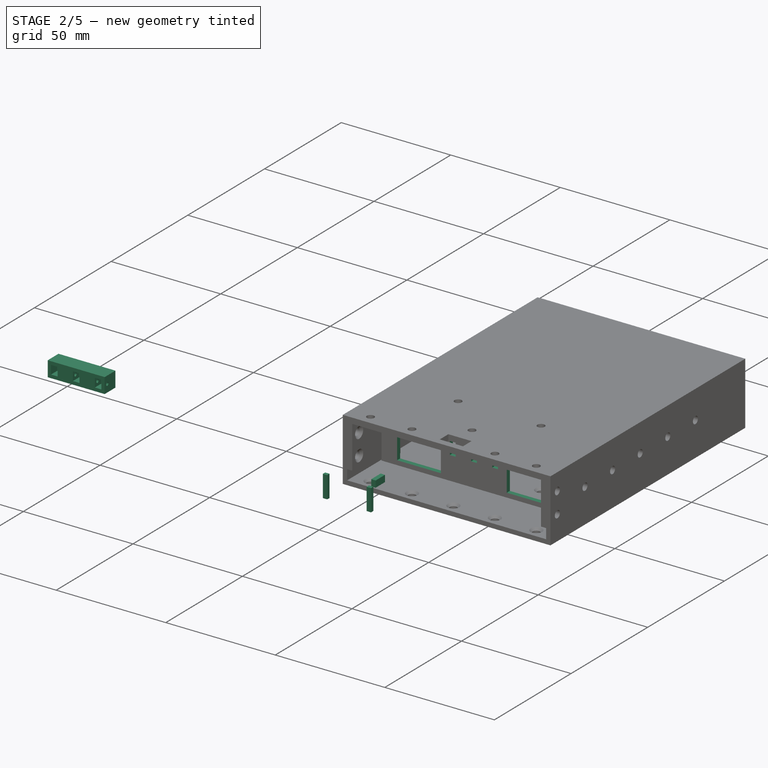
[diagram: stage 2 of 5 — iso view after this stage's code; geometry added in this stage tinted green]
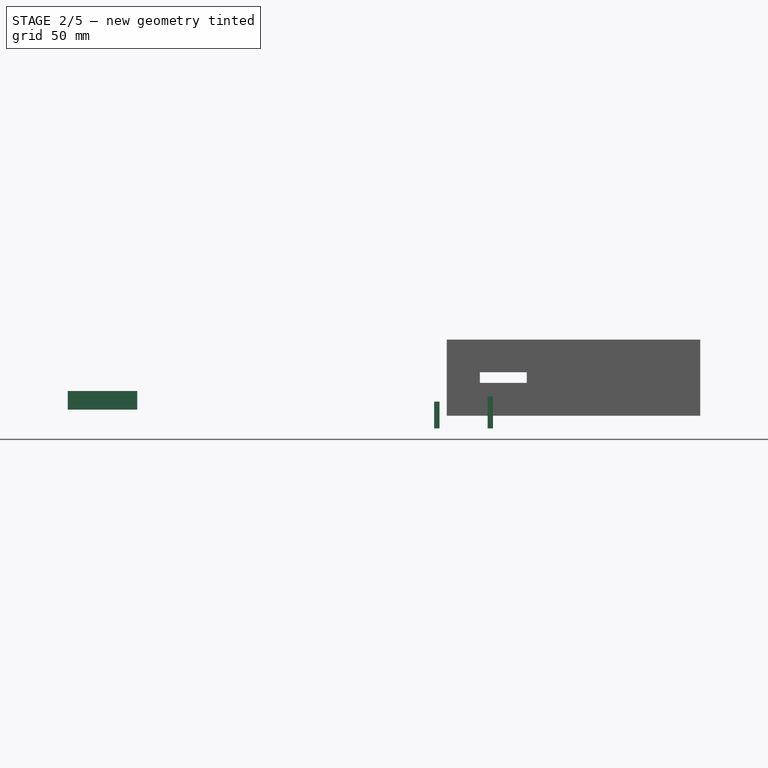
[diagram: stage 2 of 5 — front view after this stage's code; geometry added in this stage tinted green]
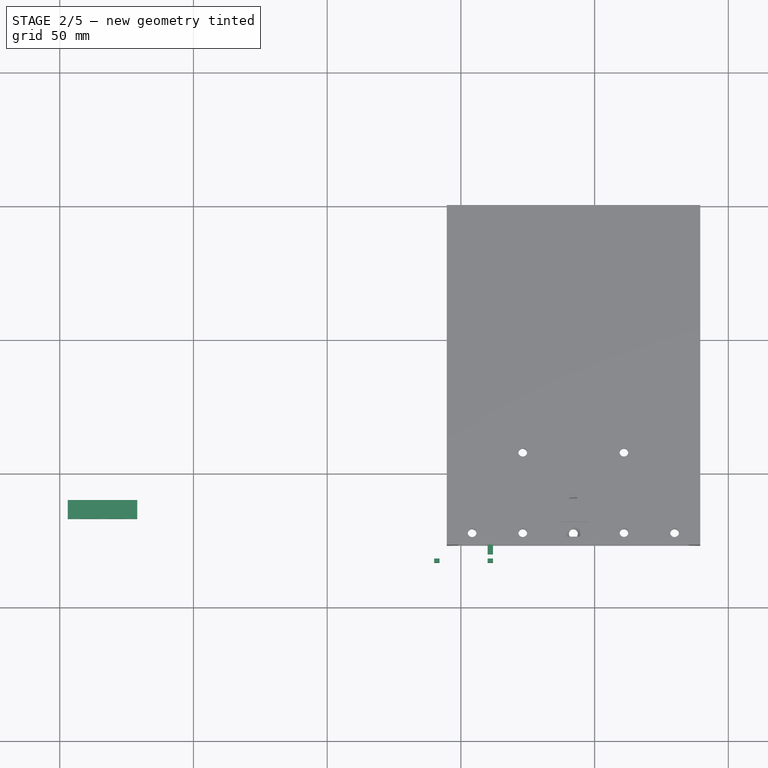
[diagram: stage 2 of 5 — top view after this stage's code; geometry added in this stage tinted green]
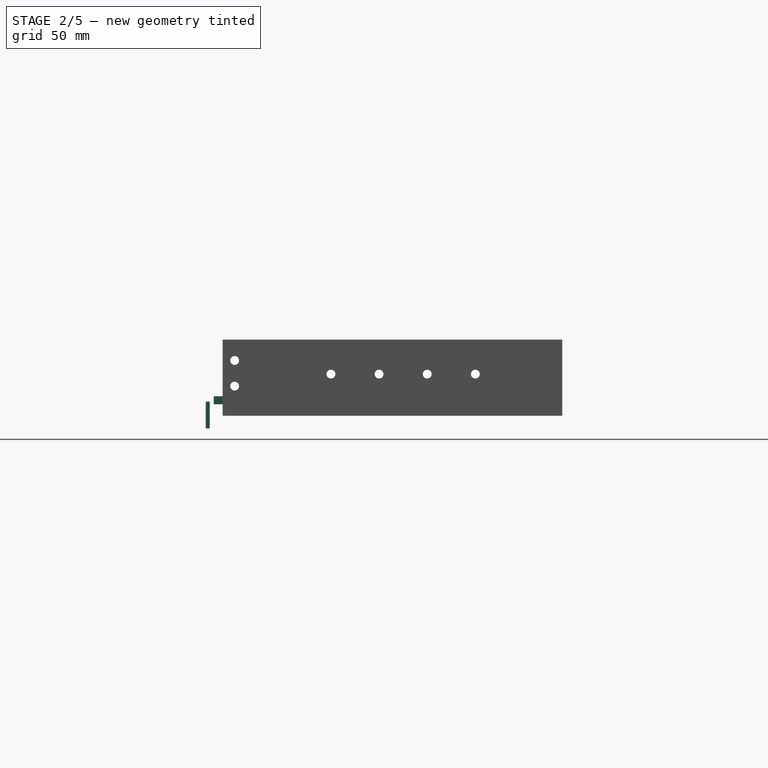
[diagram: stage 2 of 5 — right view after this stage's code; geometry added in this stage tinted green]
FEATURE [PartDesign::Body] Body006  label="TOP PLATE BODY"
  Group = -> [Sketch032,Hole006,Sketch038,Pocket005]
  Origin = -> Origin012
  Tip = -> Pocket005
FEATURE [App::Part] Part005  label="top plate"
  Group = -> [Body006,Sketch031,Extrude019]
  Origin = -> Origin011
  Placement = pos=(0,0,21.28) rot=(0,0,1;0rad)
FEATURE [Sketcher::SketchObject] Sketch042
  FullyConstrained = false
  MapMode = 5
  Placement = pos=(0,-109.3,0) rot=(1,0,0;1.5708rad)
  Support = -> [Extrude014]
  sketch-geometry (4):
    g0: LineSegment StartX=40.86 StartY=19.75 StartZ=0 EndX=43.5 EndY=19.75 EndZ=0
    g1: LineSegment StartX=43.5 StartY=19.75 StartZ=0 EndX=43.5 EndY=12.6 EndZ=0
    g2: LineSegment StartX=43.5 StartY=12.6 StartZ=0 EndX=40.86 EndY=12.6 EndZ=0
    g3: LineSegment StartX=40.86 StartY=12.6 StartZ=0 EndX=40.86 EndY=19.75 EndZ=0
  constraints (10):
    c: Coincident(g0,g1)
    c: Coincident(g1,g2)
    c: Coincident(g2,g3)
    c: Coincident(g3,g0)
    c: Horizontal(g0)
    c: Horizontal(g2)
    c: Vertical(g1)
    c: Vertical(g3)
    c: DistanceX(g0,g0) = 2.64
    c: DistanceY(g3,g3) = 7.15
FEATURE [Part::Extrusion] Extrude024
  Base = -> Sketch017
  Dir = (1,-1e-16,1e-16)
  DirMode = 2
  FaceMakerClass = Part::FaceMakerBullseye
  LengthFwd = 2
  LengthRev = 0
  Solid = true
  Symmetric = false
FEATURE [Sketcher::SketchObject] Sketch043
  FullyConstrained = false
  MapMode = 5
  Placement = pos=(2,-4e-16,4e-16) rot=(0.57735,0.57735,0.57735;2.0944rad)
  Support = -> [Extrude024]
  sketch-geometry (1):
    g0: Circle CenterX=-125.95 CenterY=3.5 CenterZ=0 NormalX=0 NormalY=0 NormalZ=1 AngleXU=0 Radius=0.75
  constraints (1):
    c: Diameter(g0) = 1.5
FEATURE [PartDesign::Hole] Hole008  label="BASE HANDLE INSERT"
  CustomThreadClearance = 0
  Depth = 2
  DepthType = 0
  Diameter = 1.5
  DrillForDepth = false
  DrillPoint = 1
  DrillPointAngle = 118
  HoleCutCountersinkAngle = 90
  HoleCutCustomValues = false
  HoleCutDepth = 0
  HoleCutDiameter = 6.1
  HoleCutType = 0
  ModelThread = false
  Profile = -> Sketch043
  Tapered = false
  TaperedAngle = 90
  ThreadClass = 0
  ThreadDepth = 2
  ThreadDepthType = 0
  ThreadDirection = 0
  ThreadFit = 0
  ThreadSize = 0
  ThreadType = 0
  Threaded = false
  UseCustomThreadClearance = false
FEATURE [PartDesign::FeatureBase] BaseFeature007
  BaseFeature = -> Extrude014
FEATURE [PartDesign::Pocket] Pocket006  label="FRONT WALL WITH HANDLE SLOT"
  BaseFeature = -> BaseFeature007
  Direction = (0,1,-2e-16)
  Length = 2
  Length2 = 5
  Profile = -> Sketch042
  ReferenceAxis = -> Sketch042 [N_Axis]
  Type = 0
FEATURE [Sketcher::SketchObject] Sketch046
  FullyConstrained = false
  MapMode = 5
  Placement = pos=(2,-4e-16,4e-16) rot=(0.57735,0.57735,0.57735;2.0944rad)
  Support = -> [Hole008]
  sketch-geometry (9):
    g0: LineSegment StartX=-133.3 StartY=5 StartZ=0 EndX=-133.3 EndY=3 EndZ=0
    g1: LineSegment StartX=-133.3 StartY=3 StartZ=0 EndX=-131.8 EndY=3 EndZ=0
    g2: LineSegment StartX=-131.8 StartY=3 StartZ=0 EndX=-131.8 EndY=-7 EndZ=0
    g3: LineSegment StartX=-131.8 StartY=-7 StartZ=0 EndX=-133.3 EndY=-7 EndZ=0
    g4: LineSegment StartX=-133.3 StartY=-7 StartZ=0 EndX=-133.3 EndY=-9 EndZ=0
    g5: LineSegment StartX=-133.3 StartY=-9 StartZ=0 EndX=-130.3 EndY=-9 EndZ=0
    g6: LineSegment StartX=-130.3 StartY=-9 StartZ=0 EndX=-130.3 EndY=2 EndZ=0
    g7: LineSegment StartX=-130.3 StartY=2 StartZ=0 EndX=-130.3 EndY=5 EndZ=0
    g8: LineSegment StartX=-130.3 StartY=5 StartZ=0 EndX=-133.3 EndY=5 EndZ=0
  constraints (25):
    c: Vertical(g0)
    c: Coincident(g0,g1)
    c: Horizontal(g1)
    c: Coincident(g1,g2)
    c: Vertical(g2)
    c: Coincident(g2,g3)
    c: Horizontal(g3)
    c: Coincident(g3,g4)
    c: Vertical(g4)
    c: Coincident(g4,g5)
    c: Horizontal(g5)
    c: Coincident(g5,g6)
    c: Vertical(g6)
    c: Coincident(g6,g7)
    c: Vertical(g7)
    c: Coincident(g7,g8)
    c: Coincident(g8,g0)
    c: Horizontal(g8)
    c: DistanceX(g8,g8) = 3
    c: DistanceX(g1,g1) = 1.5
    c: DistanceX(g3,g3) = 1.50001
    c: DistanceY(g6,g6) = 11
    c: DistanceY(g2,g2) = 10
    c: DistanceY(g4,g4) = 2
    c: DistanceY(g0,g0) = 2
FEATURE [Part::Extrusion] Extrude025
  Base = -> Sketch046
  Dir = (1,-2e-16,2e-16)
  DirMode = 2
  FaceMakerClass = Part::FaceMakerBullseye
  LengthFwd = 10
  LengthRev = 0
  Solid = true
  Symmetric = false
FEATURE [Sketcher::SketchObject] Sketch048
  FullyConstrained = false
  MapMode = 5
  Placement = pos=(0,-109.3,0) rot=(1,0,0;1.5708rad)
  Support = -> [Pocket006]
  sketch-geometry (32):
    g0: Circle CenterX=10 CenterY=16 CenterZ=0 NormalX=0 NormalY=0 NormalZ=1 AngleXU=0 Radius=0.5
    g1: Circle CenterX=11.3 CenterY=16 CenterZ=0 NormalX=0 NormalY=0 NormalZ=1 AngleXU=0 Radius=0.5
    g2: Circle CenterX=10 CenterY=14.7 CenterZ=0 NormalX=0 NormalY=0 NormalZ=1 AngleXU=0 Radius=0.5
    g3: Circle CenterX=11.3 CenterY=14.7 CenterZ=0 NormalX=0 NormalY=0 NormalZ=1 AngleXU=0 Radius=0.5
    g4: Circle CenterX=12.6 CenterY=14.7 CenterZ=0 NormalX=0 NormalY=0 NormalZ=1 AngleXU=0 Radius=0.5
    g5: Circle CenterX=13.9 CenterY=14.7 CenterZ=0 NormalX=0 NormalY=0 NormalZ=1 AngleXU=0 Radius=0.5
    g6: Circle CenterX=15.2 CenterY=14.7 CenterZ=0 NormalX=0 NormalY=0 NormalZ=1 AngleXU=0 Radius=0.5
    g7: Circle CenterX=12.6 CenterY=16 CenterZ=0 NormalX=0 NormalY=0 NormalZ=1 AngleXU=0 Radius=0.5
    g8: Circle CenterX=13.9 CenterY=16 CenterZ=0 NormalX=0 NormalY=0 NormalZ=1 AngleXU=0 Radius=0.5
    g9: Circle CenterX=15.2 CenterY=16 CenterZ=0 NormalX=0 NormalY=0 NormalZ=1 AngleXU=0 Radius=0.5
    g10: Circle CenterX=10 CenterY=13.4 CenterZ=0 NormalX=0 NormalY=0 NormalZ=1 AngleXU=0 Radius=0.5
    g11: Circle CenterX=11.3 CenterY=13.4 CenterZ=0 NormalX=0 NormalY=0 NormalZ=1 AngleXU=0 Radius=0.5
    g12: Circle CenterX=12.6 CenterY=13.4 CenterZ=0 NormalX=0 NormalY=0 NormalZ=1 AngleXU=0 Radius=0.5
    g13: Circle CenterX=13.9 CenterY=13.4 CenterZ=0 NormalX=0 NormalY=0 NormalZ=1 AngleXU=0 Radius=0.5
    g14: Circle CenterX=15.2 CenterY=13.4 CenterZ=0 NormalX=0 NormalY=0 NormalZ=1 AngleXU=0 Radius=0.5
    g15: Circle CenterX=10 CenterY=12.1 CenterZ=0 NormalX=0 NormalY=0 NormalZ=1 AngleXU=0 Radius=0.5
    g16: Circle CenterX=11.3 CenterY=12.1 CenterZ=0 NormalX=0 NormalY=0 NormalZ=1 AngleXU=0 Radius=0.5
    g17: Circle CenterX=12.6 CenterY=12.1 CenterZ=0 NormalX=0 NormalY=0 NormalZ=1 AngleXU=0 Radius=0.5
    g18: Circle CenterX=13.9 CenterY=12.1 CenterZ=0 NormalX=0 NormalY=0 NormalZ=1 AngleXU=0 Radius=0.5
    g19: Circle CenterX=15.2 CenterY=12.1 CenterZ=0 NormalX=0 NormalY=0 NormalZ=1 AngleXU=0 Radius=0.5
    g20: Circle CenterX=16.5 CenterY=16 CenterZ=0 NormalX=0 NormalY=0 NormalZ=1 AngleXU=0 Radius=0.5
    g21: Circle CenterX=16.5 CenterY=14.7 CenterZ=0 NormalX=0 NormalY=0 NormalZ=1 AngleXU=0 Radius=0.5
    g22: Circle CenterX=16.5 CenterY=13.4 CenterZ=0 NormalX=0 NormalY=0 NormalZ=1 AngleXU=0 Radius=0.5
    g23: Circle CenterX=16.5 CenterY=12.1 CenterZ=0 NormalX=0 NormalY=0 NormalZ=1 AngleXU=0 Radius=0.5
    g24: Circle CenterX=17.8 CenterY=16 CenterZ=0 NormalX=0 NormalY=0 NormalZ=1 AngleXU=0 Radius=0.5
    g25: Circle CenterX=19.1 CenterY=16 CenterZ=0 NormalX=0 NormalY=0 NormalZ=1 AngleXU=0 Radius=0.5
    g26: Circle CenterX=17.8 CenterY=14.7 CenterZ=0 NormalX=0 NormalY=0 NormalZ=1 AngleXU=0 Radius=0.5
    g27: Circle CenterX=19.1 CenterY=14.7 CenterZ=0 NormalX=0 NormalY=0 NormalZ=1 AngleXU=0 Radius=0.5
    g28: Circle CenterX=17.8 CenterY=13.4 CenterZ=0 NormalX=0 NormalY=0 NormalZ=1 AngleXU=0 Radius=0.5
    g29: Circle CenterX=19.1 CenterY=13.4 CenterZ=0 NormalX=0 NormalY=0 NormalZ=1 AngleXU=0 Radius=0.5
    g30: Circle CenterX=17.8 CenterY=12.1 CenterZ=0 NormalX=0 NormalY=0 NormalZ=1 AngleXU=0 Radius=0.5
    g31: Circle CenterX=19.1 CenterY=12.1 CenterZ=0 NormalX=0 NormalY=0 NormalZ=1 AngleXU=0 Radius=0.5
  constraints (32):
    c: Diameter(g0) = 1
    c: Diameter(g1) = 1
    c: Diameter(g7) = 1
    c: Diameter(g8) = 1
    c: Diameter(g9) = 1
    c: Diameter(g2) = 1
    c: Diameter(g3) = 1
    c: Diameter(g4) = 1
    c: Diameter(g5) = 1
    c: Diameter(g6) = 1
    c: Diameter(g10) = 1
    c: Diameter(g11) = 1
    c: Diameter(g12) = 1
    c: Diameter(g13) = 1
    c: Diameter(g14) = 1
    c: Diameter(g19) = 1
    c: Diameter(g18) = 1
    c: Diameter(g17) = 1
    c: Diameter(g16) = 1
    c: Diameter(g15) = 1
    c: Diameter(g20) = 1
    c: Diameter(g21) = 1
    c: Diameter(g22) = 1
    c: Diameter(g23) = 1
    c: Diameter(g24) = 1
    c: Diameter(g26) = 1
    c: Diameter(g28) = 1
    c: Diameter(g30) = 1
    c: Diameter(g31) = 1
    c: Diameter(g29) = 1
    c: Diameter(g27) = 1
    c: Diameter(g25) = 1
FEATURE [PartDesign::Hole] Hole009
  CustomThreadClearance = 0
  Depth = 2
  DepthType = 0
  Diameter = 1
  DrillForDepth = false
  DrillPoint = 0
  DrillPointAngle = 118
  HoleCutCountersinkAngle = 90
  HoleCutCustomValues = false
  HoleCutDepth = 0
  HoleCutDiameter = 6.1
  HoleCutType = 0
  ModelThread = false
  Profile = -> Sketch048
  Tapered = false
  TaperedAngle = 90
  ThreadClass = 0
  ThreadDepth = 2
  ThreadDepthType = 0
  ThreadDirection = 0
  ThreadFit = 0
  ThreadSize = 0
  ThreadType = 0
  Threaded = false
  UseCustomThreadClearance = false
FEATURE [App::MeasureDistance] Distance013  label="Distance: 28.49007 mm"
  Distance = 28.4901
  P1 = (-5.3,-5e-16,-2.3)
  P2 = (-5.3,-0.0648938,26.19)
FEATURE [App::MeasureDistance] Distance014  label="Distance: 126.98823 mm"
  Distance = 126.988
  P1 = (-5.3,-126.988,26.19)
  P2 = (-5.3,5.8e-15,26.19)
FEATURE [TechDraw::DrawSVGTemplate] Template
  EditableTexts = Designed_by_Name=Designed by Name; Drawing_number=Drawing number; FC-Date=Date; FC-SC=Scale; FC-SH=Sheet; FC-Title=Title; Subtitle=Subtitle; Weight=Weight
  Height = 210
  Orientation = 1
  Template = C:/Program Files/FreeCAD 0.21/data/Mod/TechDraw/Templates/A4_LandscapeTD.svg
  Width = 297
FEATURE [Sketcher::SketchObject] Sketch056
  FullyConstrained = false
  MapMode = 5
  Placement = pos=(0,-24.9008,-6e-15) rot=(0,0.707107,0.707107;3.14159rad)
  sketch-geometry (12):
    g0: LineSegment StartX=0 StartY=23.5967 StartZ=0 EndX=1 EndY=23.5967 EndZ=0
    g1: LineSegment StartX=1 StartY=23.5967 StartZ=0 EndX=1 EndY=4.3 EndZ=0
    g2: LineSegment StartX=1 StartY=4.3 StartZ=0 EndX=3.3 EndY=4.3 EndZ=0
    g3: LineSegment StartX=3.3 StartY=4.3 StartZ=0 EndX=3.3 EndY=-0.3 EndZ=0
    g4: LineSegment StartX=3.3 StartY=-0.3 StartZ=0 EndX=0 EndY=-0.3 EndZ=0
    g5: LineSegment StartX=0 StartY=-0.3 StartZ=0 EndX=0 EndY=23.5967 EndZ=0
    g6: LineSegment StartX=-84.2 StartY=23.6 StartZ=0 EndX=-85.2 EndY=23.6 EndZ=0
    g7: LineSegment StartX=-85.2 StartY=23.6 StartZ=0 EndX=-85.2 EndY=4.3 EndZ=0
    g8: LineSegment StartX=-85.2 StartY=4.3 StartZ=0 EndX=-87.5 EndY=4.3 EndZ=0
    g9: LineSegment StartX=-87.5 StartY=4.3 StartZ=0 EndX=-87.5 EndY=-0.3 EndZ=0
    g10: LineSegment StartX=-87.5 StartY=-0.3 StartZ=0 EndX=-84.2 EndY=-0.3 EndZ=0
    g11: LineSegment StartX=-84.2 StartY=-0.3 StartZ=0 EndX=-84.2 EndY=23.6 EndZ=0
  constraints (33):
    c: PointOnObject(g0,g-2)
    c: Horizontal(g0)
    c: Coincident(g0,g1)
    c: Vertical(g1)
    c: Coincident(g1,g2)
    c: Horizontal(g2)
    c: Coincident(g2,g3)
    c: Vertical(g3)
    c: Coincident(g3,g4)
    c: PointOnObject(g4,g-2)
    c: Horizontal(g4)
    c: Coincident(g4,g5)
    c: Coincident(g5,g0)
    c: DistanceY(g5,g5) = 23.8967
    c: DistanceY(g1,g1) = 19.2967
    c: DistanceX(g0,g0) = 1
    c: DistanceX(g2,g2) = 2.3
    c: Horizontal(g6)
    c: Coincident(g6,g7)
    c: Vertical(g7)
    c: Coincident(g7,g8)
    c: Horizontal(g8)
    c: Coincident(g8,g9)
    c: Vertical(g9)
    c: Coincident(g9,g10)
    c: Horizontal(g10)
    c: Coincident(g10,g11)
    c: Coincident(g11,g6)
    c: Vertical(g11)
    c: DistanceY(g11,g11) = 23.9
    c: DistanceY(g7,g7) = 19.3
    c: DistanceX(g6,g6) = 1
    c: DistanceX(g8,g8) = 2.3
FEATURE [App::MeasureDistance] Distance015  label="Distance: 5.00009 mm"
  Distance = 5.00009
  P1 = (84.5,1e-15,4.3)
  P2 = (89.5,1e-15,4.33063)
FEATURE [App::MeasureDistance] Distance016  label="Distance: 22.77007 mm"
  Distance = 22.7701
  P1 = (-3.21781,-22.77,-0.3)
  P2 = (-3.27073,-1e-16,-0.3)
FEATURE [App::MeasureDistance] Distance017  label="Distance: 2.00024 mm"
  Distance = 2.00024
  P1 = (0,-22.9008,-0.289555)
  P2 = (0.0308171,-24.9008,-0.293916)
FEATURE [App::MeasureDistance] Distance018  label="Distance: 3.11947 mm"
  Distance = 3.11947
  P1 = (84.5029,5.2e-15,23.0706)
  P2 = (84.5234,5.8e-15,26.19)
FEATURE [App::MeasureDistance] Distance019  label="Distance: 4.60003 mm"
  Distance = 4.60003
  P1 = (-3.3,-1e-16,-0.3)
  P2 = (-3.28346,1e-15,4.3)
FEATURE [App::MeasureDistance] Distance020  label="Distance: 18.78000 mm"
  Distance = 18.78
  P1 = (-0.300001,1e-15,4.3)
  P2 = (-0.300001,5.1e-15,23.08)
FEATURE [PartDesign::Body] BaseFeature010Body
  Origin = -> Origin021
FEATURE [Sketcher::SketchObject] Sketch062
  FullyConstrained = false
  MapMode = 5
  Placement = pos=(0,-109.3,0) rot=(1,0,0;1.5708rad)
  Support = -> [Hole009]
  sketch-geometry (16):
    g0: LineSegment StartX=40.86 StartY=19.44 StartZ=0 EndX=31.16 EndY=19.44 EndZ=0
    g1: LineSegment StartX=43.5 StartY=19.44 StartZ=0 EndX=53.16 EndY=19.44 EndZ=0
    g2: LineSegment StartX=40.86 StartY=19.75 StartZ=0 EndX=43.5 EndY=19.75 EndZ=0
    g3: LineSegment StartX=43.5 StartY=19.75 StartZ=0 EndX=43.5 EndY=12.6 EndZ=0
    g4: LineSegment StartX=43.5 StartY=12.6 StartZ=0 EndX=40.86 EndY=12.6 EndZ=0
    g5: LineSegment StartX=40.86 StartY=12.6 StartZ=0 EndX=40.86 EndY=19.75 EndZ=0
    g6: LineSegment StartX=31.16 StartY=19.75 StartZ=0 EndX=33.8 EndY=19.75 EndZ=0
    g7: LineSegment StartX=33.8 StartY=19.75 StartZ=0 EndX=33.8 EndY=12.6 EndZ=0
    g8: LineSegment StartX=33.8 StartY=12.6 StartZ=0 EndX=31.16 EndY=12.6 EndZ=0
    g9: LineSegment StartX=31.16 StartY=12.6 StartZ=0 EndX=31.16 EndY=19.75 EndZ=0
    g10: LineSegment StartX=50.52 StartY=19.75 StartZ=0 EndX=53.16 EndY=19.75 EndZ=0
    g11: LineSegment StartX=53.16 StartY=19.75 StartZ=0 EndX=53.16 EndY=12.6 EndZ=0
    g12: LineSegment StartX=53.16 StartY=12.6 StartZ=0 EndX=50.52 EndY=12.6 EndZ=0
    g13: LineSegment StartX=50.52 StartY=12.6 StartZ=0 EndX=50.52 EndY=19.75 EndZ=0
    g14: LineSegment StartX=40.86 StartY=19.75 StartZ=0 EndX=31.16 EndY=19.75 EndZ=0
    g15: LineSegment StartX=43.5 StartY=19.75 StartZ=0 EndX=53.16 EndY=19.75 EndZ=0
  constraints (38):
    c: Horizontal(g0)
    c: DistanceX(g0,g0) = 9.7
    c: Horizontal(g1)
    c: DistanceX(g1,g1) = 9.66
    c: Coincident(g2,g3)
    c: Coincident(g3,g4)
    c: Coincident(g4,g5)
    c: Coincident(g5,g2)
    c: Horizontal(g2)
    c: Horizontal(g4)
    c: Vertical(g3)
    c: Vertical(g5)
    c: DistanceX(g2,g2) = 2.64
    c: DistanceY(g3,g3) = 7.15
    c: Coincident(g6,g7)
    c: Coincident(g7,g8)
    c: Coincident(g8,g9)
    c: Coincident(g9,g6)
    c: Horizontal(g6)
    c: Horizontal(g8)
    c: Vertical(g7)
    c: Vertical(g9)
    c: Coincident(g10,g11)
    c: Coincident(g11,g12)
    c: Coincident(g12,g13)
    c: Coincident(g13,g10)
    c: Horizontal(g10)
    c: Horizontal(g12)
    c: Vertical(g11)
    c: Vertical(g13)
    c: DistanceX(g6,g6) = 2.64
    c: DistanceX(g10,g10) = 2.64
    c: DistanceY(g9,g9) = 7.15
    c: DistanceY(g13,g13) = 7.15
    c: Coincident(g14,g2)
    c: Horizontal(g14)
    c: Coincident(g15,g2)
    c: Horizontal(g15)
FEATURE [PartDesign::Pocket] Pocket011
  BaseFeature = -> Hole009
  Direction = (0,1,-2e-16)
  Length = 5
  Length2 = 5
  Profile = -> Sketch062
  ReferenceAxis = -> Sketch062 [N_Axis]
  Type = 0
FEATURE [Part::Extrusion] Extrude032
  Base = -> Sketch041
  Dir = (0,0,1)
  DirMode = 2
  FaceMakerClass = Part::FaceMakerBullseye
  LengthFwd = 7
  LengthRev = 0
  Solid = true
  Symmetric = false
FEATURE [Sketcher::SketchObject] Sketch066
  FullyConstrained = false
  MapMode = 5
  Placement = pos=(-2.87e-14,-130.3,0) rot=(0,0.707107,0.707107;3.14159rad)
  Support = -> [Extrude025]
  sketch-geometry (4):
    g0: LineSegment StartX=-12 StartY=5 StartZ=0 EndX=-10 EndY=5 EndZ=0
    g1: LineSegment StartX=-10 StartY=5 StartZ=0 EndX=-10 EndY=2 EndZ=0
    g2: LineSegment StartX=-10 StartY=2 StartZ=0 EndX=-12 EndY=2 EndZ=0
    g3: LineSegment StartX=-12 StartY=2 StartZ=0 EndX=-12 EndY=5 EndZ=0
  constraints (10):
    c: Coincident(g0,g1)
    c: Coincident(g1,g2)
    c: Coincident(g2,g3)
    c: Coincident(g3,g0)
    c: Horizontal(g0)
    c: Horizontal(g2)
    c: Vertical(g1)
    c: Vertical(g3)
    c: DistanceX(g2,g2) = 2
    c: DistanceY(g1,g1) = 3
FEATURE [Part::Extrusion] Extrude034
  Base = -> Sketch066
  Dir = (2e-16,1,-2e-16)
  DirMode = 2
  FaceMakerClass = Part::FaceMakerBullseye
  LengthFwd = 6.1
  LengthRev = 0
  Solid = true
  Symmetric = false
FEATURE [PartDesign::FeatureBase] BaseFeature012
  BaseFeature = -> Extrude034
FEATURE [PartDesign::Body] Body003  label="HANDLE LOCK"
  BaseFeature = -> Extrude034
  Group = -> [BaseFeature012,Sketch068,Hole016]
  Origin = -> Origin007
  Tip = -> Hole016
FEATURE [Sketcher::SketchObject] Sketch069
  FullyConstrained = false
  MapMode = 5
  Placement = pos=(-2.9e-14,-131.8,0) rot=(1,0,0;1.5708rad)
  Support = -> [Extrude025]
  sketch-geometry (8):
    g0: LineSegment StartX=-10 StartY=-7 StartZ=0 EndX=-8 EndY=-7 EndZ=0
    g1: LineSegment StartX=-8 StartY=-7 StartZ=0 EndX=-8 EndY=3 EndZ=0
    g2: LineSegment StartX=-8 StartY=3 StartZ=0 EndX=-10 EndY=3 EndZ=0
    g3: LineSegment StartX=-10 StartY=3 StartZ=0 EndX=-10 EndY=-7 EndZ=0
    g4: LineSegment StartX=10 StartY=3 StartZ=0 EndX=12 EndY=3 EndZ=0
    g5: LineSegment StartX=12 StartY=3 StartZ=0 EndX=12 EndY=-7 EndZ=0
    g6: LineSegment StartX=12 StartY=-7 StartZ=0 EndX=10 EndY=-7 EndZ=0
    g7: LineSegment StartX=10 StartY=-7 StartZ=0 EndX=10 EndY=3 EndZ=0
  constraints (20):
    c: Coincident(g0,g1)
    c: Coincident(g1,g2)
    c: Coincident(g2,g3)
    c: Coincident(g3,g0)
    c: Horizontal(g0)
    c: Horizontal(g2)
    c: Vertical(g1)
    c: Vertical(g3)
    c: Coincident(g4,g5)
    c: Coincident(g5,g6)
    c: Coincident(g6,g7)
    c: Coincident(g7,g4)
    c: Horizontal(g4)
    c: Horizontal(g6)
    c: Vertical(g5)
    c: Vertical(g7)
    c: DistanceX(g6,g6) = 2
    c: DistanceX(g0,g0) = 2
    c: DistanceY(g1,g1) = 10
    c: DistanceY(g7,g7) = 10
FEATURE [Part::Extrusion] Extrude035
  Base = -> Sketch069
  Dir = (-2e-16,-1,2e-16)
  DirMode = 2
  FaceMakerClass = Part::FaceMakerBullseye
  LengthFwd = 1.5
  LengthRev = 0
  Solid = true
  Symmetric = false
FEATURE [App::Part] Part003  label="locking handle"
  Group = -> [Body003,Sketch017,Sketch043,Sketch047,Sketch046,Extrude024,Extrude026,Extrude025,Hole008,Sketch063,Sketch066,Sketch067,Extrude033,Extrude034,Hole015,Sketch069,Extrude035]
  Origin = -> Origin006
  Placement = pos=(41.16,20.68,14.44) rot=(0,0,1;0rad)
FEATURE [PartDesign::FeatureBase] BaseFeature013
  BaseFeature = -> Extrude032
FEATURE [Sketcher::SketchObject] Sketch070
  FullyConstrained = false
  MapMode = 5
  Placement = pos=(0,-117,0) rot=(1,0,0;1.5708rad)
  Support = -> [BaseFeature013]
  sketch-geometry (20):
    g0: LineSegment StartX=-135.5 StartY=5.5 StartZ=0 EndX=-132.5 EndY=5.5 EndZ=0
    g1: LineSegment StartX=-132.5 StartY=5.5 StartZ=0 EndX=-132.5 EndY=1.5 EndZ=0
    g2: LineSegment StartX=-132.5 StartY=1.5 StartZ=0 EndX=-135.5 EndY=1.5 EndZ=0
    g3: LineSegment StartX=-135.5 StartY=1.5 StartZ=0 EndX=-135.5 EndY=5.5 EndZ=0
    g4: LineSegment StartX=-123 StartY=5 StartZ=0 EndX=-125 EndY=5 EndZ=0
    g5: LineSegment StartX=-125 StartY=5 StartZ=0 EndX=-125 EndY=2 EndZ=0
    g6: LineSegment StartX=-125 StartY=2 StartZ=0 EndX=-123 EndY=2 EndZ=0
    g7: LineSegment StartX=-123 StartY=2 StartZ=0 EndX=-123 EndY=5 EndZ=0
    g8: LineSegment StartX=-145 StartY=5 StartZ=0 EndX=-143 EndY=5 EndZ=0
    g9: LineSegment StartX=-143 StartY=5 StartZ=0 EndX=-143 EndY=2 EndZ=0
    g10: LineSegment StartX=-143 StartY=2 StartZ=0 EndX=-145 EndY=2 EndZ=0
    g11: LineSegment StartX=-145 StartY=2 StartZ=0 EndX=-145 EndY=5 EndZ=0
    g12: LineSegment StartX=-145.5 StartY=5.5 StartZ=0 EndX=-142.5 EndY=5.5 EndZ=0
    g13: LineSegment StartX=-142.5 StartY=5.5 StartZ=0 EndX=-142.5 EndY=1.5 EndZ=0
    g14: LineSegment StartX=-142.5 StartY=1.5 StartZ=0 EndX=-145.5 EndY=1.5 EndZ=0
    g15: LineSegment StartX=-145.5 StartY=1.5 StartZ=0 EndX=-145.5 EndY=5.5 EndZ=0
    g16: LineSegment StartX=-125.5 StartY=5.5 StartZ=0 EndX=-122.5 EndY=5.5 EndZ=0
    g17: LineSegment StartX=-122.5 StartY=5.5 StartZ=0 EndX=-122.5 EndY=1.5 EndZ=0
    g18: LineSegment StartX=-122.5 StartY=1.5 StartZ=0 EndX=-125.5 EndY=1.5 EndZ=0
    g19: LineSegment StartX=-125.5 StartY=1.5 StartZ=0 EndX=-125.5 EndY=5.5 EndZ=0
  constraints (46):
    c: Coincident(g0,g1)
    c: Coincident(g1,g2)
    c: Coincident(g2,g3)
    c: Coincident(g3,g0)
    c: Horizontal(g0)
    c: Horizontal(g2)
    c: Vertical(g1)
    c: Vertical(g3)
    c: Coincident(g4,g5)
    c: Coincident(g5,g6)
    c: Coincident(g6,g7)
    c: Coincident(g7,g4)
    c: Horizontal(g4)
    c: Horizontal(g6)
    c: Vertical(g5)
    c: Vertical(g7)
    c: Coincident(g8,g9)
    c: Coincident(g9,g10)
    c: Coincident(g10,g11)
    c: Coincident(g11,g8)
    c: Horizontal(g8)
    c: Horizontal(g10)
    c: Vertical(g9)
    c: Vertical(g11)
    c: Coincident(g12,g13)
    c: Coincident(g13,g14)
    c: Coincident(g14,g15)
    c: Coincident(g15,g12)
    c: Horizontal(g12)
    c: Horizontal(g14)
    c: Vertical(g13)
    c: Vertical(g15)
    c: Coincident(g16,g17)
    c: Coincident(g17,g18)
    c: Coincident(g18,g19)
    c: Coincident(g19,g16)
    c: Horizontal(g16)
    c: Horizontal(g18)
    c: Vertical(g17)
    c: Vertical(g19)
    c: DistanceY(g13,g13) = 4
    c: DistanceY(g1,g1) = 4
    c: DistanceY(g19,g19) = 4
    c: DistanceX(g12,g12) = 3
    c: DistanceX(g0,g0) = 3
    c: DistanceX(g16,g16) = 3
FEATURE [PartDesign::Pocket] Pocket012
  BaseFeature = -> BaseFeature013
  Direction = (0,1,-2e-16)
  Length = 4
  Length2 = 5
  Profile = -> Sketch070
  ReferenceAxis = -> Sketch070 [N_Axis]
  Type = 0
FEATURE [Sketcher::SketchObject] Sketch071
  FullyConstrained = false
  MapMode = 5
  Placement = pos=(-121,0,0) rot=(0.57735,0.57735,0.57735;2.0944rad)
  Support = -> [Pocket012]
  sketch-geometry (1):
    g0: Circle CenterX=-115.25 CenterY=3.5 CenterZ=0 NormalX=0 NormalY=0 NormalZ=1 AngleXU=0 Radius=0.75
  constraints (1):
    c: Diameter(g0) = 1.5
FEATURE [PartDesign::Hole] Hole017
  BaseFeature = -> Pocket012
  CustomThreadClearance = 0
  Depth = 24
  DepthType = 0
  Diameter = 1.5
  DrillForDepth = false
  DrillPoint = 0
  DrillPointAngle = 118
  HoleCutCountersinkAngle = 90
  HoleCutCustomValues = false
  HoleCutDepth = 0
  HoleCutDiameter = 6.1
  HoleCutType = 0
  ModelThread = false
  Profile = -> Sketch071
  Tapered = false
  TaperedAngle = 90
  ThreadClass = 0
  ThreadDepth = 24
  ThreadDepthType = 0
  ThreadDirection = 0
  ThreadFit = 0
  ThreadSize = 0
  ThreadType = 0
  Threaded = false
  UseCustomThreadClearance = false
FEATURE [PartDesign::Body] Body002  label="LOCK MECHANISM BODY"
  BaseFeature = -> Extrude032
  Group = -> [BaseFeature013,Sketch070,Pocket012,Sketch071,Hole017]
  Origin = -> Origin005
  Tip = -> Hole017
FEATURE [App::Part] Part002  label="locking mechanism"
  Group = -> [Body002,BaseFeature002,BaseFeature003,Sketch016,Extrude007,Sketch040,Sketch015,Sketch012,BaseFeature006,Pocket002,Sketch011,Sketch037,Sketch039,Extrude022,Extrude023,Pocket004,Hole]
  Origin = -> Origin004
  Placement = pos=(176.16,9.99,14.45) rot=(0,0,1;0rad)
FEATURE [App::Part] Part007  label="Locking Components"
  Group = -> [Part002,Part003,Part004]
  Origin = -> Origin014
FEATURE [Sketcher::SketchObject] Sketch074
  FullyConstrained = false
  MapMode = 5
  Placement = pos=(0,-109.3,0) rot=(1,0,0;1.5708rad)
  Support = -> [Pocket011]
  sketch-geometry (8):
    g0: LineSegment StartX=7.1 StartY=19.01 StartZ=0 EndX=27.1 EndY=19.01 EndZ=0
    g1: LineSegment StartX=27.1 StartY=19.01 StartZ=0 EndX=27.1 EndY=4.01 EndZ=0
    g2: LineSegment StartX=27.1 StartY=4.01 StartZ=0 EndX=7.1 EndY=4.01 EndZ=0
    g3: LineSegment StartX=7.1 StartY=4.01 StartZ=0 EndX=7.1 EndY=19.01 EndZ=0
    g4: LineSegment StartX=57.1633 StartY=4 StartZ=0 EndX=77.1635 EndY=4 EndZ=0
    g5: LineSegment StartX=77.1635 StartY=4 StartZ=0 EndX=77.1635 EndY=19 EndZ=0
    g6: LineSegment StartX=77.1635 StartY=19 StartZ=0 EndX=57.1633 EndY=19 EndZ=0
    g7: LineSegment StartX=57.1633 StartY=19 StartZ=0 EndX=57.1633 EndY=4 EndZ=0
  constraints (20):
    c: Coincident(g0,g1)
    c: Coincident(g1,g2)
    c: Coincident(g2,g3)
    c: Coincident(g3,g0)
    c: Horizontal(g0)
    c: Horizontal(g2)
    c: Vertical(g1)
    c: Vertical(g3)
    c: Coincident(g4,g5)
    c: Coincident(g5,g6)
    c: Coincident(g6,g7)
    c: Coincident(g7,g4)
    c: Horizontal(g4)
    c: Horizontal(g6)
    c: Vertical(g5)
    c: Vertical(g7)
    c: DistanceY(g5,g5) = 15
    c: DistanceX(g6,g6) = 20.0002
    c: DistanceX(g0,g0) = 20
    c: DistanceY(g1,g1) = 15
FEATURE [PartDesign::Pocket] Pocket013
  BaseFeature = -> Pocket011
  Direction = (0,1,-2e-16)
  Length = 5
  Length2 = 5
  Profile = -> Sketch074
  ReferenceAxis = -> Sketch074 [N_Axis]
  Type = 0
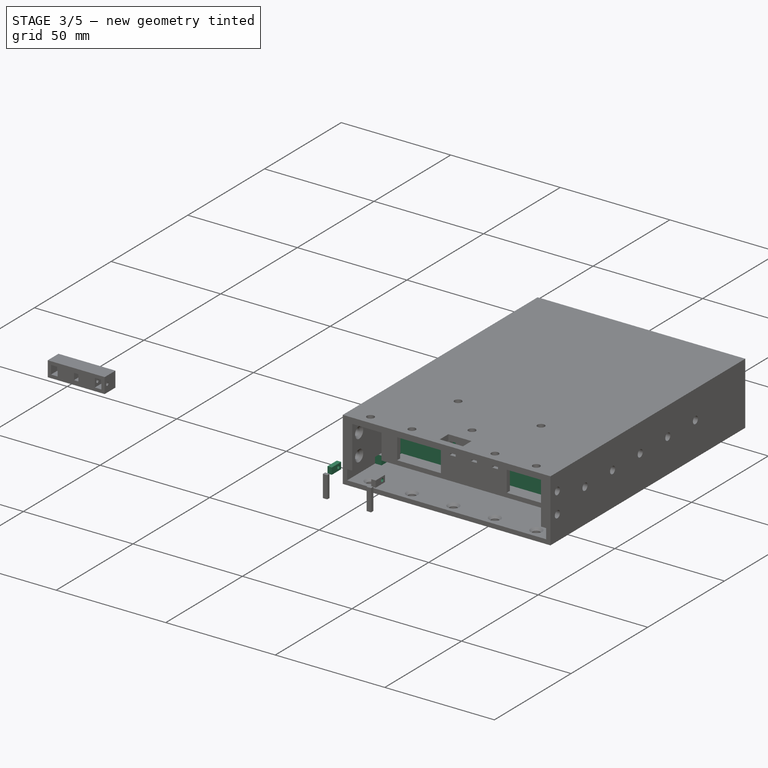
[diagram: stage 3 of 5 — iso view after this stage's code; geometry added in this stage tinted green]
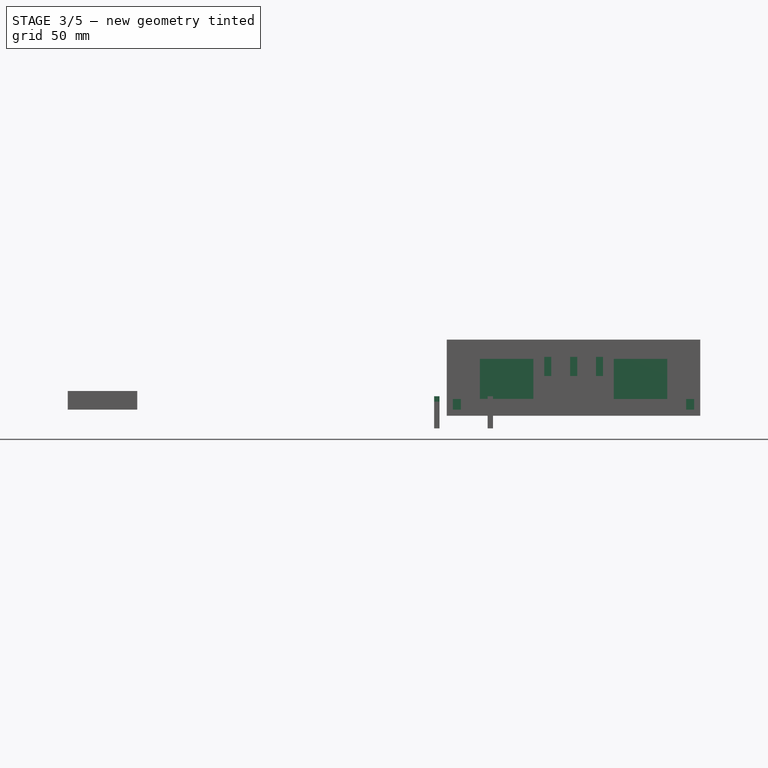
[diagram: stage 3 of 5 — front view after this stage's code; geometry added in this stage tinted green]
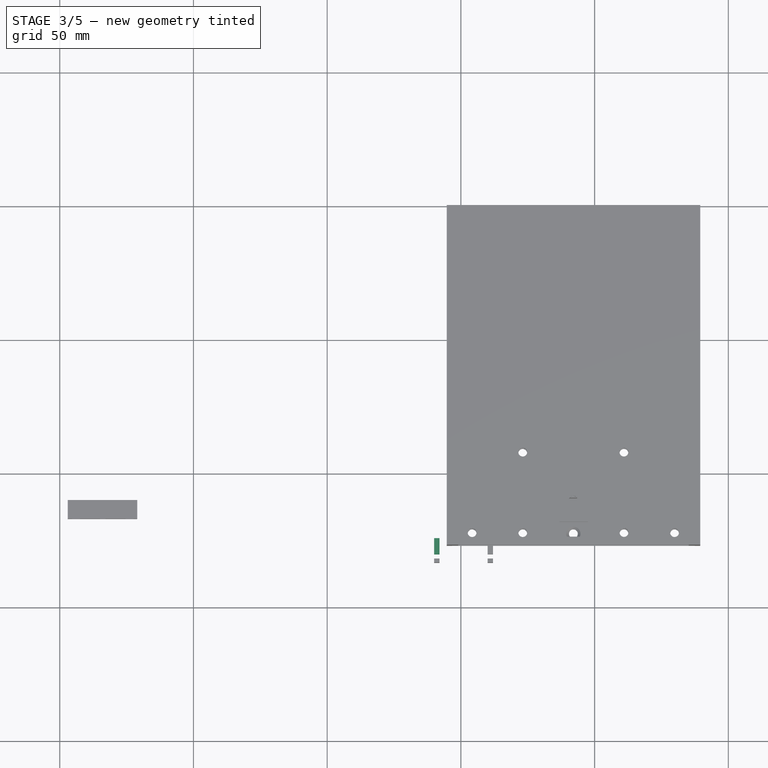
[diagram: stage 3 of 5 — top view after this stage's code; geometry added in this stage tinted green]
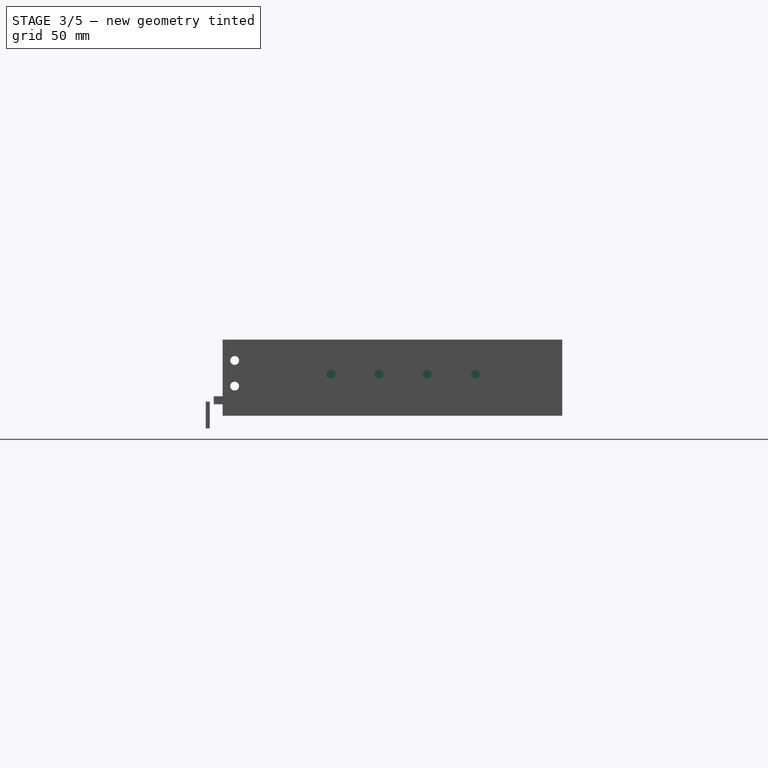
[diagram: stage 3 of 5 — right view after this stage's code; geometry added in this stage tinted green]
FEATURE [Part::Feature] Part__Feature  label="cell 001"
  Placement = pos=(11.67,-30.7,11.73) rot=(1,0,0;1.5708rad)
  shape: bbox 19.48 x 65 x 19.48 mm, 202 faces (baked)
FEATURE [Part::Feature] Part__Feature001  label="cell 002"
  Placement = pos=(32.21,-30.56,12.09) rot=(1,0,0;1.5708rad)
  shape: bbox 19.48 x 65 x 19.48 mm, 202 faces (baked)
FEATURE [Part::Feature] Part__Feature002  label="cell 003"
  Placement = pos=(52.45,-30.79,11.7) rot=(1,0,0;1.5708rad)
  shape: bbox 19.48 x 65 x 19.48 mm, 202 faces (baked)
FEATURE [Part::Feature] Part__Feature003  label="cell 004"
  Placement = pos=(72.58,-30.46,11.13) rot=(1,0,0;1.5708rad)
  shape: bbox 19.48 x 65 x 19.48 mm, 202 faces (baked)
FEATURE [PartDesign::Body] Body  label="CELL MOUNT BODY"
  Origin = -> Origin001
FEATURE [Sketcher::SketchObject] Sketch
  FullyConstrained = false
  MapMode = 5
  Support = -> [XY_Plane001]
  sketch-geometry (4):
    g0: LineSegment StartX=0 StartY=-99.794 StartZ=0 EndX=84.2 EndY=-99.794 EndZ=0
    g1: LineSegment StartX=84.2 StartY=-99.794 StartZ=0 EndX=84.2 EndY=-26.494 EndZ=0
    g2: LineSegment StartX=84.2 StartY=-26.494 StartZ=0 EndX=0 EndY=-26.494 EndZ=0
    g3: LineSegment StartX=0 StartY=-26.494 StartZ=0 EndX=0 EndY=-99.794 EndZ=0
  constraints (10):
    c: Coincident(g0,g1)
    c: Coincident(g1,g2)
    c: Coincident(g2,g3)
    c: Coincident(g3,g0)
    c: Horizontal(g0)
    c: Horizontal(g2)
    c: Vertical(g1)
    c: Vertical(g3)
    c: DistanceX(g2,g2) = 84.2
    c: DistanceY(g3,g3) = 73.3
FEATURE [App::Part] Part001  label="Batt Cells"
  Group = -> [Part__Feature,Part__Feature001,Part__Feature002,Part__Feature003]
  Origin = -> Origin002
FEATURE [Part::Extrusion] Extrude  label="CELL MOUNT FLOOR"
  Base = -> Sketch
  Dir = (0,0,1)
  DirMode = 2
  FaceMakerClass = Part::FaceMakerBullseye
  LengthFwd = 2
  LengthRev = 0
  Solid = true
  Symmetric = false
FEATURE [Sketcher::SketchObject] Sketch001
  FullyConstrained = false
  MapMode = 5
  Placement = pos=(0,0,2) rot=(0,0,1;0rad)
  Support = -> [Extrude]
  sketch-geometry (12):
    g0: LineSegment StartX=0 StartY=-26.494 StartZ=0 EndX=84.2 EndY=-26.494 EndZ=0
    g1: LineSegment StartX=84.2 StartY=-26.494 StartZ=0 EndX=84.2 EndY=-99.794 EndZ=0
    g2: LineSegment StartX=84.2 StartY=-99.794 StartZ=0 EndX=0 EndY=-99.794 EndZ=0
    g3: LineSegment StartX=0 StartY=-99.794 StartZ=0 EndX=0 EndY=-26.494 EndZ=0
    g4: LineSegment StartX=84.2 StartY=-99.794 StartZ=0 EndX=84.2 EndY=-97.79 EndZ=0
    g5: LineSegment StartX=84.2 StartY=-97.79 StartZ=0 EndX=82.2 EndY=-97.79 EndZ=0
    g6: LineSegment StartX=0 StartY=-26.494 StartZ=0 EndX=0 EndY=-28.49 EndZ=0
    g7: LineSegment StartX=0 StartY=-28.49 StartZ=0 EndX=2 EndY=-28.49 EndZ=0
    g8: LineSegment StartX=2 StartY=-28.49 StartZ=0 EndX=82.2 EndY=-28.49 EndZ=0
    g9: LineSegment StartX=82.2 StartY=-28.49 StartZ=0 EndX=82.2 EndY=-97.79 EndZ=0
    g10: LineSegment StartX=82.2 StartY=-97.79 StartZ=0 EndX=2 EndY=-97.79 EndZ=0
    g11: LineSegment StartX=2 StartY=-97.79 StartZ=0 EndX=2 EndY=-28.49 EndZ=0
  constraints (31):
    c: Coincident(g0,g1)
    c: Coincident(g1,g2)
    c: Coincident(g2,g3)
    c: Coincident(g3,g0)
    c: Horizontal(g0)
    c: Horizontal(g2)
    c: Vertical(g1)
    c: Vertical(g3)
    c: PointOnObject(g0,g-2)
    c: DistanceX(g2,g2) = 84.2
    c: DistanceY(g1,g1) = 73.3
    c: Coincident(g4,g1)
    c: PointOnObject(g4,g1)
    c: Coincident(g5,g4)
    c: Horizontal(g5)
    c: Coincident(g6,g0)
    c: PointOnObject(g6,g3)
    c: Coincident(g7,g6)
    c: Horizontal(g7)
    c: Coincident(g8,g9)
    c: Coincident(g9,g10)
    c: Coincident(g10,g11)
    c: Coincident(g11,g8)
    c: Horizontal(g8)
    c: Horizontal(g10)
    c: Vertical(g9)
    c: Vertical(g11)
    c: Coincident(g8,g7)
    c: Coincident(g9,g5)
    c: DistanceX(g8,g8) = 80.2
    c: DistanceY(g9,g9) = 69.3
FEATURE [Part::Extrusion] Extrude001  label="CELL MOUNT EXT WALLS"
  Base = -> Sketch001
  Dir = (0,0,1)
  DirMode = 2
  FaceMakerClass = Part::FaceMakerBullseye
  LengthFwd = 19.3
  LengthRev = 0
  Solid = true
  Symmetric = false
FEATURE [PartDesign::Body] Body001  label="BACK BODY"
  Origin = -> Origin003
FEATURE [Sketcher::SketchObject] Sketch011
  FullyConstrained = false
  MapMode = 5
  Support = -> [XY_Plane005]
  sketch-geometry (4):
    g0: LineSegment StartX=-140 StartY=-110 StartZ=0 EndX=-128 EndY=-110 EndZ=0
    g1: LineSegment StartX=-128 StartY=-110 StartZ=0 EndX=-128 EndY=-117 EndZ=0
    g2: LineSegment StartX=-128 StartY=-117 StartZ=0 EndX=-140 EndY=-117 EndZ=0
    g3: LineSegment StartX=-140 StartY=-117 StartZ=0 EndX=-140 EndY=-110 EndZ=0
  constraints (10):
    c: Coincident(g0,g1)
    c: Coincident(g1,g2)
    c: Coincident(g2,g3)
    c: Coincident(g3,g0)
    c: Horizontal(g0)
    c: Horizontal(g2)
    c: Vertical(g1)
    c: Vertical(g3)
    c: DistanceX(g0,g0) = 12
    c: DistanceY(g3,g3) = 7
FEATURE [Part::Extrusion] Extrude007
  Base = -> Sketch011
  Dir = (0,0,1)
  DirMode = 2
  FaceMakerClass = Part::FaceMakerBullseye
  LengthFwd = 7
  LengthRev = 0
  Solid = true
  Symmetric = false
FEATURE [PartDesign::Pocket] Pocket002
  Direction = (0,1,-2e-16)
  Length = 3.5
  Length2 = 5
  Profile = -> Sketch015
  ReferenceAxis = -> Sketch015 [N_Axis]
  Type = 0
FEATURE [App::MeasureDistance] Distance  label="Distance: 3.33780 mm"
  Distance = 3.3378
  P1 = (43.5,-109.3,19.3861)
  P2 = (43.16,-112.62,19.44)
FEATURE [App::MeasureDistance] Distance001  label="Distance: 94.93000 mm"
  Distance = 94.93
  P1 = (84.2,-109.301,22.88)
  P2 = (84.2,-14.3705,22.88)
FEATURE [App::MeasureDistance] Distance002  label="Distance: 84.03434 mm"
  Distance = 84.0343
  P1 = (0.165655,-109.301,22.88)
  P2 = (84.2,-109.301,22.88)
FEATURE [App::MeasureDistance] Distance003  label="Distance: 22.78329 mm"
  Distance = 22.7833
  P1 = (0,-14.3705,22.7833)
  P2 = (0,-14.4,0)
FEATURE [App::MeasureDistance] Distance004  label="Distance: 10.06841 mm"
  Distance = 10.0684
  P1 = (82.0192,-16.37,21.3)
  P2 = (82.2,-26.4368,21.3)
FEATURE [App::MeasureDistance] Distance005  label="Distance: 7.48747 mm"
  Distance = 7.48747
  P1 = (82.0952,-107.281,21.3)
  P2 = (82.1396,-99.794,21.3)
FEATURE [App::MeasureDistance] Distance007  label="Distance: 1.03116 mm"
  Distance = 1.03116
  P1 = (82.2,-95.6714,11.6529)
  P2 = (82.1272,-96.7,11.65)
FEATURE [App::MeasureDistance] Distance008  label="Distance: 0.98878 mm"
  Distance = 0.988782
  P1 = (62.8884,-97.788,21.3)
  P2 = (61.9,-97.7591,21.3)
FEATURE [Sketcher::SketchObject] Sketch044
  FullyConstrained = false
  MapMode = 5
  Placement = pos=(0,-28.49,0) rot=(1,0,0;1.5708rad)
  Support = -> [Extrude001]
  sketch-geometry (8):
    g0: ArcOfCircle CenterX=11.5 CenterY=21.374 CenterZ=0 NormalX=0 NormalY=0 NormalZ=1 AngleXU=0 Radius=7.50005 StartAngle=3.13813 EndAngle=6.28665
    g1: LineSegment StartX=4 StartY=21.4 StartZ=0 EndX=19 EndY=21.4 EndZ=0
    g2: ArcOfCircle CenterX=32 CenterY=21.3845 CenterZ=0 NormalX=0 NormalY=0 NormalZ=1 AngleXU=0 Radius=8.00001 StartAngle=3.13966 EndAngle=6.28512
    g3: LineSegment StartX=24 StartY=21.4 StartZ=0 EndX=40 EndY=21.4 EndZ=0
    g4: ArcOfCircle CenterX=52.2 CenterY=21.3636 CenterZ=0 NormalX=0 NormalY=0 NormalZ=1 AngleXU=0 Radius=7.80009 StartAngle=3.13692 EndAngle=6.28785
    g5: LineSegment StartX=60 StartY=21.4 StartZ=0 EndX=44.4 EndY=21.4 EndZ=0
    g6: ArcOfCircle CenterX=72.5 CenterY=21.2875 CenterZ=0 NormalX=0 NormalY=0 NormalZ=1 AngleXU=0 Radius=7.50084 StartAngle=3.12659 EndAngle=6.29819
    g7: LineSegment StartX=80 StartY=21.4 StartZ=0 EndX=65 EndY=21.4 EndZ=0
  constraints (19):
    c: Coincident(g1,g0)
    c: Coincident(g1,g0)
    c: Horizontal(g1)
    c: DistanceX(g1,g1) = 15
    c: Diameter(g0) = 15.0001
    c: Coincident(g3,g2)
    c: Coincident(g3,g2)
    c: Horizontal(g3)
    c: DistanceX(g3,g3) = 16
    c: Diameter(g2) = 16
    c: Coincident(g5,g4)
    c: Coincident(g5,g4)
    c: Horizontal(g5)
    c: DistanceX(g5,g5) = 15.6
    c: Diameter(g4) = 15.6002
    c: Coincident(g7,g6)
    c: Coincident(g7,g6)
    c: Horizontal(g7)
    c: DistanceX(g7,g7) = 15
FEATURE [PartDesign::FeatureBase] BaseFeature008
  BaseFeature = -> Extrude001
FEATURE [PartDesign::Pocket] Pocket007  label="cell walls"
  BaseFeature = -> BaseFeature008
  Direction = (0,1,-2e-16)
  Length = 5
  Length2 = 5
  Profile = -> Sketch044
  ReferenceAxis = -> Sketch044 [N_Axis]
  Type = 0
FEATURE [Sketcher::SketchObject] Sketch047
  FullyConstrained = false
  MapMode = 5
  Placement = pos=(-3e-16,0,0) rot=(-0.57735,0.57735,0.57735;4.18879rad)
  Support = -> [Hole008]
  sketch-geometry (9):
    g0: LineSegment StartX=133.3 StartY=5 StartZ=0 EndX=133.3 EndY=3 EndZ=0
    g1: LineSegment StartX=133.3 StartY=3 StartZ=0 EndX=131.8 EndY=3 EndZ=0
    g2: LineSegment StartX=131.8 StartY=3 StartZ=0 EndX=131.8 EndY=-7 EndZ=0
    g3: LineSegment StartX=131.8 StartY=-7 StartZ=0 EndX=133.3 EndY=-7 EndZ=0
    g4: LineSegment StartX=133.3 StartY=-7 StartZ=0 EndX=133.3 EndY=-9 EndZ=0
    g5: LineSegment StartX=133.3 StartY=-9 StartZ=0 EndX=130.3 EndY=-9 EndZ=0
    g6: LineSegment StartX=130.3 StartY=-9 StartZ=0 EndX=130.3 EndY=2 EndZ=0
    g7: LineSegment StartX=130.3 StartY=2 StartZ=0 EndX=130.3 EndY=5 EndZ=0
    g8: LineSegment StartX=130.3 StartY=5 StartZ=0 EndX=133.3 EndY=5 EndZ=0
  constraints (25):
    c: Vertical(g0)
    c: Coincident(g0,g1)
    c: Horizontal(g1)
    c: Coincident(g1,g2)
    c: Vertical(g2)
    c: Coincident(g2,g3)
    c: Horizontal(g3)
    c: Coincident(g3,g4)
    c: Vertical(g4)
    c: Coincident(g4,g5)
    c: Horizontal(g5)
    c: Coincident(g5,g6)
    c: Vertical(g6)
    c: Coincident(g6,g7)
    c: Vertical(g7)
    c: Coincident(g7,g8)
    c: Coincident(g8,g0)
    c: Horizontal(g8)
    c: DistanceX(g8,g8) = 3
    c: DistanceX(g1,g1) = 1.49999
    c: DistanceX(g5,g5) = 3
    c: DistanceY(g6,g6) = 11
    c: DistanceY(g4,g4) = 2
    c: DistanceY(g2,g2) = 10
    c: DistanceY(g0,g0) = 2
FEATURE [Part::Extrusion] Extrude026
  Base = -> Sketch047
  Dir = (-1,2e-16,-2e-16)
  DirMode = 2
  FaceMakerClass = Part::FaceMakerBullseye
  LengthFwd = 10
  LengthRev = 0
  Solid = true
  Symmetric = false
FEATURE [Sketcher::SketchObject] Sketch049
  FullyConstrained = false
  MapMode = 5
  Placement = pos=(0,-99.794,0) rot=(1,0,0;1.5708rad)
  Support = -> [Pocket007]
  sketch-geometry (8):
    g0: ArcOfCircle CenterX=11.5 CenterY=21.374 CenterZ=0 NormalX=0 NormalY=0 NormalZ=1 AngleXU=0 Radius=7.50005 StartAngle=3.13813 EndAngle=6.28665
    g1: LineSegment StartX=4 StartY=21.4 StartZ=0 EndX=19 EndY=21.4 EndZ=0
    g2: ArcOfCircle CenterX=32 CenterY=21.3845 CenterZ=0 NormalX=0 NormalY=0 NormalZ=1 AngleXU=0 Radius=8.00001 StartAngle=3.13966 EndAngle=6.28512
    g3: LineSegment StartX=24 StartY=21.4 StartZ=0 EndX=40 EndY=21.4 EndZ=0
    g4: ArcOfCircle CenterX=52.2 CenterY=21.3636 CenterZ=0 NormalX=0 NormalY=0 NormalZ=1 AngleXU=0 Radius=7.80009 StartAngle=3.13692 EndAngle=6.28785
    g5: LineSegment StartX=60 StartY=21.4 StartZ=0 EndX=44.4 EndY=21.4 EndZ=0
    g6: ArcOfCircle CenterX=72.5 CenterY=21.2875 CenterZ=0 NormalX=0 NormalY=0 NormalZ=1 AngleXU=0 Radius=7.50084 StartAngle=3.12659 EndAngle=6.29819
    g7: LineSegment StartX=80 StartY=21.4 StartZ=0 EndX=65 EndY=21.4 EndZ=0
  constraints (19):
    c: Coincident(g1,g0)
    c: Coincident(g1,g0)
    c: Horizontal(g1)
    c: DistanceX(g1,g1) = 15
    c: Diameter(g0) = 15.0001
    c: Coincident(g3,g2)
    c: Coincident(g3,g2)
    c: Horizontal(g3)
    c: DistanceX(g3,g3) = 16
    c: Diameter(g2) = 16
    c: Coincident(g5,g4)
    c: Coincident(g5,g4)
    c: Horizontal(g5)
    c: DistanceX(g5,g5) = 15.6
    c: Diameter(g4) = 15.6002
    c: Coincident(g7,g6)
    c: Coincident(g7,g6)
    c: Horizontal(g7)
    c: DistanceX(g7,g7) = 15
FEATURE [PartDesign::FeatureBase] BaseFeature009
  BaseFeature = -> Pocket007
FEATURE [PartDesign::Pocket] Pocket008  label="!!!!!!!!!!!!!!!!!!!!!!!!!!!!"
  Direction = (0,1,-2e-16)
  Length = 5
  Length2 = 5
  Profile = -> Sketch049
  ReferenceAxis = -> Sketch049 [N_Axis]
  Type = 0
FEATURE [Sketcher::SketchObject] Sketch050
  FullyConstrained = false
  MapMode = 5
  Placement = pos=(0,0,0) rot=(0.57735,-0.57735,-0.57735;2.0944rad)
  Support = -> [Pocket008]
  sketch-geometry (4):
    g0: LineSegment StartX=14.4002 StartY=0 StartZ=0 EndX=109.3 EndY=0 EndZ=0
    g1: LineSegment StartX=109.3 StartY=0 StartZ=0 EndX=109.3 EndY=4 EndZ=0
    g2: LineSegment StartX=109.3 StartY=4 StartZ=0 EndX=14.4002 EndY=4 EndZ=0
    g3: LineSegment StartX=14.4002 StartY=4 StartZ=0 EndX=14.4002 EndY=0 EndZ=0
  constraints (11):
    c: Coincident(g0,g1)
    c: Coincident(g1,g2)
    c: Coincident(g2,g3)
    c: Coincident(g3,g0)
    c: Horizontal(g0)
    c: Horizontal(g2)
    c: Vertical(g1)
    c: Vertical(g3)
    c: PointOnObject(g0,g-1)
    c: DistanceX(g2,g2) = 94.8998
    c: DistanceY(g1,g1) = 4
FEATURE [Part::Extrusion] Extrude027
  Base = -> Sketch050
  Dir = (-1,0,0)
  DirMode = 2
  FaceMakerClass = Part::FaceMakerBullseye
  LengthFwd = 3
  LengthRev = 0
  Solid = true
  Symmetric = false
FEATURE [Sketcher::SketchObject] Sketch051
  FullyConstrained = false
  MapMode = 5
  Placement = pos=(84.2,0,0) rot=(0.57735,0.57735,0.57735;2.0944rad)
  Support = -> [Pocket008]
  sketch-geometry (4):
    g0: LineSegment StartX=-109.302 StartY=0 StartZ=0 EndX=-14.4 EndY=0 EndZ=0
    g1: LineSegment StartX=-14.4 StartY=0 StartZ=0 EndX=-14.4 EndY=4 EndZ=0
    g2: LineSegment StartX=-14.4 StartY=4 StartZ=0 EndX=-109.302 EndY=4 EndZ=0
    g3: LineSegment StartX=-109.302 StartY=4 StartZ=0 EndX=-109.302 EndY=0 EndZ=0
  constraints (11):
    c: Coincident(g0,g1)
    c: Coincident(g1,g2)
    c: Coincident(g2,g3)
    c: Coincident(g3,g0)
    c: Horizontal(g0)
    c: Horizontal(g2)
    c: Vertical(g1)
    c: Vertical(g3)
    c: PointOnObject(g0,g-1)
    c: DistanceX(g2,g2) = 94.9019
    c: DistanceY(g1,g1) = 4
FEATURE [Part::Extrusion] Extrude028
  Base = -> Sketch051
  Dir = (1,0,0)
  DirMode = 2
  FaceMakerClass = Part::FaceMakerBullseye
  LengthFwd = 3
  LengthRev = 0
  Solid = true
  Symmetric = false
FEATURE [Sketcher::SketchObject] Sketch063
  FullyConstrained = false
  MapMode = 5
  Placement = pos=(-2.87e-14,-130.3,0) rot=(0,0.707107,0.707107;3.14159rad)
  Support = -> [Extrude026]
  sketch-geometry (4):
    g0: LineSegment StartX=10 StartY=5 StartZ=0 EndX=8 EndY=5 EndZ=0
    g1: LineSegment StartX=8 StartY=5 StartZ=0 EndX=8 EndY=2 EndZ=0
    g2: LineSegment StartX=8 StartY=2 StartZ=0 EndX=10 EndY=2 EndZ=0
    g3: LineSegment StartX=10 StartY=2 StartZ=0 EndX=10 EndY=5 EndZ=0
  constraints (10):
    c: Coincident(g0,g1)
    c: Coincident(g1,g2)
    c: Coincident(g2,g3)
    c: Coincident(g3,g0)
    c: Horizontal(g0)
    c: Horizontal(g2)
    c: Vertical(g1)
    c: Vertical(g3)
    c: DistanceX(g0,g0) = 2
    c: DistanceY(g1,g1) = 3
FEATURE [Part::Extrusion] Extrude033
  Base = -> Sketch063
  Dir = (2e-16,1,-2e-16)
  DirMode = 2
  FaceMakerClass = Part::FaceMakerBullseye
  LengthFwd = 6.1
  LengthRev = 0
  Solid = true
  Symmetric = false
FEATURE [Sketcher::SketchObject] Sketch067
  FullyConstrained = false
  MapMode = 5
  Placement = pos=(-10,2.2e-15,0) rot=(-0.57735,0.57735,0.57735;4.18879rad)
  Support = -> [Extrude033]
  sketch-geometry (1):
    g0: Circle CenterX=125.95 CenterY=3.5 CenterZ=0 NormalX=0 NormalY=0 NormalZ=1 AngleXU=0 Radius=0.75
  constraints (1):
    c: Diameter(g0) = 1.5
FEATURE [PartDesign::Hole] Hole015
  CustomThreadClearance = 0
  Depth = 2
  DepthType = 0
  Diameter = 1.5
  DrillForDepth = false
  DrillPoint = 1
  DrillPointAngle = 118
  HoleCutCountersinkAngle = 90
  HoleCutCustomValues = false
  HoleCutDepth = 0
  HoleCutDiameter = 6.1
  HoleCutType = 0
  ModelThread = false
  Profile = -> Sketch067
  Tapered = false
  TaperedAngle = 90
  ThreadClass = 0
  ThreadDepth = 2
  ThreadDepthType = 0
  ThreadDirection = 0
  ThreadFit = 0
  ThreadSize = 0
  ThreadType = 0
  Threaded = false
  UseCustomThreadClearance = false
FEATURE [Sketcher::SketchObject] Sketch068
  FullyConstrained = false
  MapMode = 5
  Placement = pos=(12,-2.6e-15,0) rot=(0.57735,0.57735,0.57735;2.0944rad)
  Support = -> [BaseFeature012]
  sketch-geometry (1):
    g0: Circle CenterX=-125.951 CenterY=3.5 CenterZ=0 NormalX=0 NormalY=0 NormalZ=1 AngleXU=0 Radius=0.75
  constraints (1):
    c: Diameter(g0) = 1.5
FEATURE [PartDesign::Hole] Hole016
  BaseFeature = -> BaseFeature012
  CustomThreadClearance = 0
  Depth = 14.3135
  DepthType = 0
  Diameter = 1.5
  DrillForDepth = false
  DrillPoint = 1
  DrillPointAngle = 118
  HoleCutCountersinkAngle = 90
  HoleCutCustomValues = false
  HoleCutDepth = 0
  HoleCutDiameter = 6.1
  HoleCutType = 0
  ModelThread = false
  Profile = -> Sketch068
  Tapered = false
  TaperedAngle = 90
  ThreadClass = 0
  ThreadDepth = 14.3135
  ThreadDepthType = 0
  ThreadDirection = 0
  ThreadFit = 0
  ThreadSize = 0
  ThreadType = 0
  Threaded = false
  UseCustomThreadClearance = false
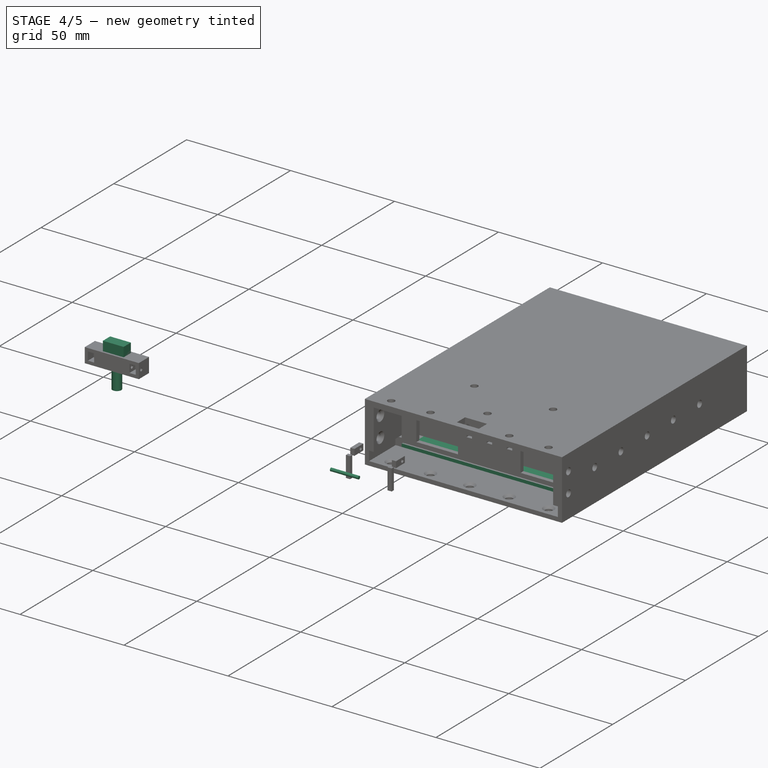
[diagram: stage 4 of 5 — iso view after this stage's code; geometry added in this stage tinted green]
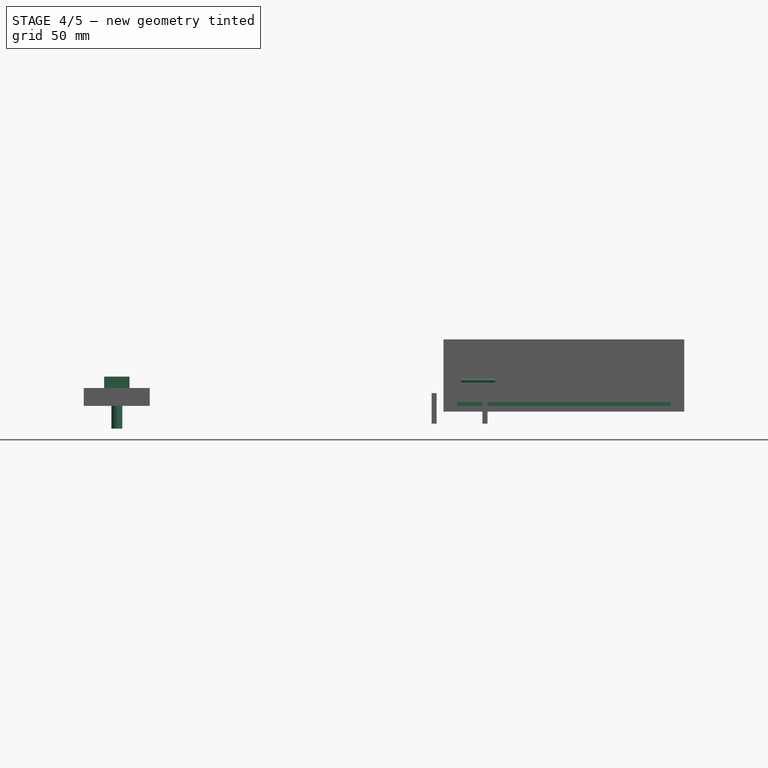
[diagram: stage 4 of 5 — front view after this stage's code; geometry added in this stage tinted green]
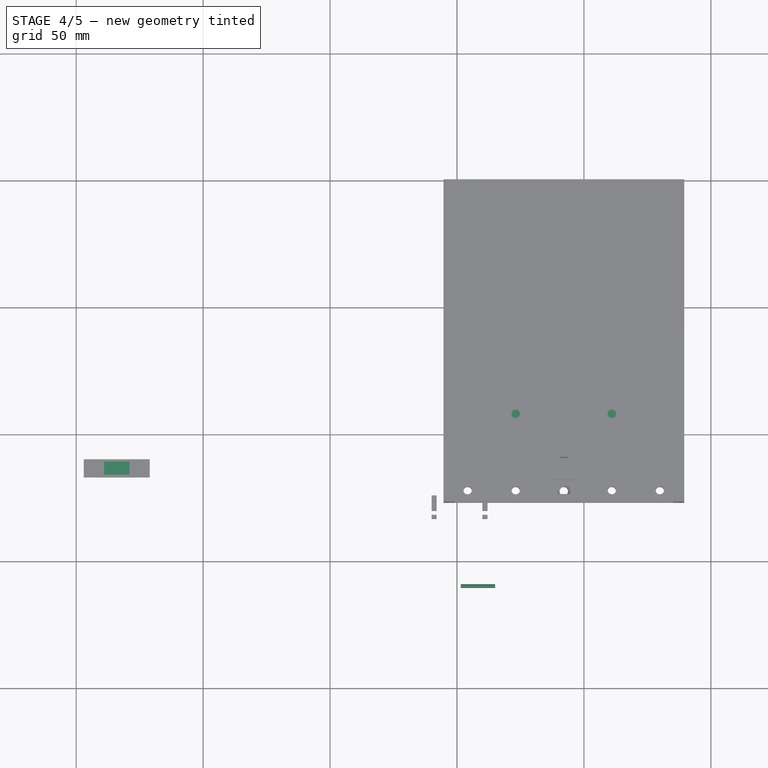
[diagram: stage 4 of 5 — top view after this stage's code; geometry added in this stage tinted green]
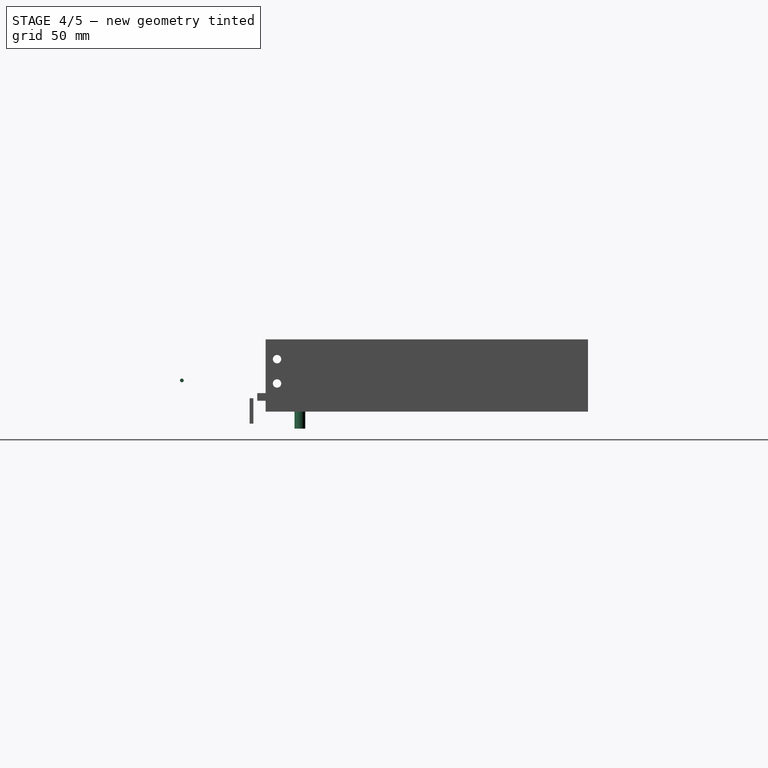
[diagram: stage 4 of 5 — right view after this stage's code; geometry added in this stage tinted green]
FEATURE [Sketcher::SketchObject] Sketch006
  FullyConstrained = false
  MapMode = 5
  Support = -> [XY_Plane001]
  sketch-geometry (4):
    g0: LineSegment StartX=0 StartY=-26.49 StartZ=0 EndX=84.2 EndY=-26.49 EndZ=0
    g1: LineSegment StartX=84.2 StartY=-26.49 StartZ=0 EndX=84.2 EndY=-14.4 EndZ=0
    g2: LineSegment StartX=84.2 StartY=-14.4 StartZ=0 EndX=0 EndY=-14.4 EndZ=0
    g3: LineSegment StartX=0 StartY=-14.4 StartZ=0 EndX=0 EndY=-26.49 EndZ=0
  constraints (11):
    c: Coincident(g0,g1)
    c: Coincident(g1,g2)
    c: Coincident(g2,g3)
    c: Coincident(g3,g0)
    c: Horizontal(g0)
    c: Horizontal(g2)
    c: Vertical(g1)
    c: Vertical(g3)
    c: PointOnObject(g0,g-2)
    c: DistanceX(g2,g2) = 84.2
    c: DistanceY(g1,g1) = 12.09
FEATURE [Part::Extrusion] Extrude004  label="BACK FLOOR"
  Base = -> Sketch006
  Dir = (0,0,1)
  DirMode = 2
  FaceMakerClass = Part::FaceMakerBullseye
  LengthFwd = 2
  LengthRev = 0
  Solid = true
  Symmetric = false
FEATURE [Sketcher::SketchObject] Sketch007
  FullyConstrained = false
  MapMode = 5
  Placement = pos=(0,0,2) rot=(0,0,1;0rad)
  Support = -> [Extrude004]
  sketch-geometry (8):
    g0: LineSegment StartX=0 StartY=-26.4942 StartZ=0 EndX=84.2 EndY=-26.4942 EndZ=0
    g1: LineSegment StartX=84.2 StartY=-26.4942 StartZ=0 EndX=84.2 EndY=-14.4 EndZ=0
    g2: LineSegment StartX=84.2 StartY=-14.4 StartZ=0 EndX=0 EndY=-14.4 EndZ=0
    g3: LineSegment StartX=0 StartY=-14.4 StartZ=0 EndX=0 EndY=-26.4942 EndZ=0
    g4: LineSegment StartX=82.2 StartY=-26.4942 StartZ=0 EndX=2 EndY=-26.4942 EndZ=0
    g5: LineSegment StartX=2 StartY=-26.4942 StartZ=0 EndX=2 EndY=-16.37 EndZ=0
    g6: LineSegment StartX=2 StartY=-16.37 StartZ=0 EndX=82.2 EndY=-16.37 EndZ=0
    g7: LineSegment StartX=82.2 StartY=-16.37 StartZ=0 EndX=82.2 EndY=-26.4942 EndZ=0
  constraints (22):
    c: Coincident(g0,g1)
    c: Coincident(g1,g2)
    c: Coincident(g2,g3)
    c: Coincident(g3,g0)
    c: Horizontal(g0)
    c: Horizontal(g2)
    c: Vertical(g1)
    c: Vertical(g3)
    c: PointOnObject(g0,g-2)
    c: Coincident(g4,g5)
    c: Coincident(g5,g6)
    c: Coincident(g6,g7)
    c: Coincident(g7,g4)
    c: Horizontal(g4)
    c: Horizontal(g6)
    c: Vertical(g5)
    c: Vertical(g7)
    c: PointOnObject(g4,g0)
    c: DistanceX(g6,g6) = 80.2
    c: DistanceX(g2,g2) = 84.2
    c: DistanceY(g5,g5) = 10.1242
    c: DistanceY(g3,g3) = 12.0942
FEATURE [Part::Extrusion] Extrude005
  Base = -> Sketch007
  Dir = (0,0,1)
  DirMode = 2
  FaceMakerClass = Part::FaceMakerBullseye
  LengthFwd = 19.3
  LengthRev = 0
  Solid = true
  Symmetric = false
FEATURE [Sketcher::SketchObject] Sketch012
  FullyConstrained = false
  MapMode = 5
  Placement = pos=(0,0,7) rot=(0,0,1;0rad)
  Support = -> [Extrude007]
  sketch-geometry (4):
    g0: LineSegment StartX=-139 StartY=-111 StartZ=0 EndX=-129 EndY=-111 EndZ=0
    g1: LineSegment StartX=-129 StartY=-111 StartZ=0 EndX=-129 EndY=-116 EndZ=0
    g2: LineSegment StartX=-129 StartY=-116 StartZ=0 EndX=-139 EndY=-116 EndZ=0
    g3: LineSegment StartX=-139 StartY=-116 StartZ=0 EndX=-139 EndY=-111 EndZ=0
  constraints (10):
    c: Coincident(g0,g1)
    c: Coincident(g1,g2)
    c: Coincident(g2,g3)
    c: Coincident(g3,g0)
    c: Horizontal(g0)
    c: Horizontal(g2)
    c: Vertical(g1)
    c: Vertical(g3)
    c: DistanceY(g3,g3) = 5
    c: DistanceX(g0,g0) = 10
FEATURE [Sketcher::SketchObject] Sketch015
  FullyConstrained = false
  MapMode = 5
  Placement = pos=(0,-117,0) rot=(1,0,0;1.5708rad)
  Support = -> [Extrude007]
  sketch-geometry (4):
    g0: LineSegment StartX=-135 StartY=2 StartZ=0 EndX=-133 EndY=2 EndZ=0
    g1: LineSegment StartX=-133 StartY=2 StartZ=0 EndX=-133 EndY=5 EndZ=0
    g2: LineSegment StartX=-133 StartY=5 StartZ=0 EndX=-135 EndY=5 EndZ=0
    g3: LineSegment StartX=-135 StartY=5 StartZ=0 EndX=-135 EndY=2 EndZ=0
  constraints (10):
    c: Coincident(g0,g1)
    c: Coincident(g1,g2)
    c: Coincident(g2,g3)
    c: Coincident(g3,g0)
    c: Horizontal(g0)
    c: Horizontal(g2)
    c: Vertical(g1)
    c: Vertical(g3)
    c: DistanceX(g2,g2) = 2
    c: DistanceY(g3,g3) = 3
FEATURE [PartDesign::FeatureBase] BaseFeature002
  BaseFeature = -> Extrude007
FEATURE [Sketcher::SketchObject] Sketch016
  FullyConstrained = false
  MapMode = 5
  Placement = pos=(-128,0,0) rot=(0.57735,0.57735,0.57735;2.0944rad)
  Support = -> [Pocket002]
  sketch-geometry (1):
    g0: Circle CenterX=-115.25 CenterY=3.5 CenterZ=0 NormalX=0 NormalY=0 NormalZ=1 AngleXU=0 Radius=0.75
  constraints (1):
    c: Diameter(g0) = 1.5
FEATURE [PartDesign::FeatureBase] BaseFeature003
  BaseFeature = -> Pocket002
FEATURE [PartDesign::Hole] Hole  label="MAIN LOCKING HANDLE MNT"
  CustomThreadClearance = 0
  Depth = 12
  DepthType = 0
  Diameter = 1.5
  DrillForDepth = false
  DrillPoint = 1
  DrillPointAngle = 118
  HoleCutCountersinkAngle = 90
  HoleCutCustomValues = false
  HoleCutDepth = 0
  HoleCutDiameter = 6.1
  HoleCutType = 0
  ModelThread = false
  Profile = -> Sketch016
  Tapered = false
  TaperedAngle = 90
  ThreadClass = 0
  ThreadDepth = 12
  ThreadDepthType = 0
  ThreadDirection = 0
  ThreadFit = 0
  ThreadSize = 0
  ThreadType = 0
  Threaded = false
  UseCustomThreadClearance = false
FEATURE [Sketcher::SketchObject] Sketch017
  FullyConstrained = false
  MapMode = 5
  Placement = pos=(0,0,0) rot=(0.57735,0.57735,0.57735;2.0944rad)
  Support = -> [YZ_Plane007]
  sketch-geometry (17):
    g0: LineSegment StartX=-128 StartY=5 StartZ=0 EndX=-130 EndY=5 EndZ=0
    g1: LineSegment StartX=-130 StartY=5 StartZ=0 EndX=-130.3 EndY=5 EndZ=0
    g2: LineSegment StartX=-130.3 StartY=5 StartZ=0 EndX=-133.3 EndY=5 EndZ=0
    g3: LineSegment StartX=-133.3 StartY=5 StartZ=0 EndX=-133.3 EndY=3 EndZ=0
    g4: LineSegment StartX=-133.3 StartY=3 StartZ=0 EndX=-131.8 EndY=3 EndZ=0
    g5: LineSegment StartX=-131.8 StartY=3 StartZ=0 EndX=-131.8 EndY=-7 EndZ=0
    g6: LineSegment StartX=-131.8 StartY=-7 StartZ=0 EndX=-133.3 EndY=-7 EndZ=0
    g7: LineSegment StartX=-133.3 StartY=-7 StartZ=0 EndX=-133.3 EndY=-9 EndZ=0
    g8: LineSegment StartX=-133.3 StartY=-9 StartZ=0 EndX=-130.3 EndY=-9 EndZ=0
    g9: LineSegment StartX=-128 StartY=5 StartZ=0 EndX=-127.7 EndY=5 EndZ=0
    g10: LineSegment StartX=-127.7 StartY=5 StartZ=0 EndX=-124.2 EndY=5 EndZ=0
    g11: LineSegment StartX=-124.2 StartY=5 StartZ=0 EndX=-124.2 EndY=2 EndZ=0
    g12: LineSegment StartX=-124.2 StartY=2 StartZ=0 EndX=-127.7 EndY=2 EndZ=0
    g13: LineSegment StartX=-127.7 StartY=2 StartZ=0 EndX=-128 EndY=2 EndZ=0
    g14: LineSegment StartX=-128 StartY=2 StartZ=0 EndX=-130 EndY=2 EndZ=0
    g15: LineSegment StartX=-130 StartY=2 StartZ=0 EndX=-130.3 EndY=2 EndZ=0
    g16: LineSegment StartX=-130.3 StartY=2 StartZ=0 EndX=-130.3 EndY=-9 EndZ=0
  constraints (49):
    c: Horizontal(g0)
    c: Coincident(g0,g1)
    c: Horizontal(g1)
    c: Coincident(g1,g2)
    c: Horizontal(g2)
    c: Coincident(g2,g3)
    c: Vertical(g3)
    c: Coincident(g3,g4)
    c: Horizontal(g4)
    c: Coincident(g4,g5)
    c: Vertical(g5)
    c: Coincident(g5,g6)
    c: Horizontal(g6)
    c: Coincident(g6,g7)
    c: Vertical(g7)
    c: Coincident(g7,g8)
    c: Horizontal(g8)
    c: DistanceY(g5,g5) = 10
    c: DistanceY(g3,g3) = 2
    c: DistanceX(g4,g4) = 1.5
    c: DistanceX(g2,g2) = 3
    c: DistanceX(g1,g1) = 0.3
    c: DistanceX(g0,g0) = 2
    c: DistanceX(g6,g6) = 1.5
    c: Coincident(g9,g0)
    c: Horizontal(g9)
    c: Coincident(g9,g10)
    c: Horizontal(g10)
    c: Coincident(g10,g11)
    c: Vertical(g11)
    c: Coincident(g11,g12)
    c: Horizontal(g12)
    c: Coincident(g12,g13)
    c: Horizontal(g13)
    c: Coincident(g13,g14)
    c: Horizontal(g14)
    c: Coincident(g15,g14)
    c: Horizontal(g15)
    c: Coincident(g15,g16)
    c: Coincident(g16,g8)
    c: Vertical(g16)
    c: DistanceY(g7,g7) = 2
    c: DistanceY(g16,g16) = 11
    c: DistanceX(g8,g8) = 3
    c: DistanceX(g15,g15) = 0.3
    c: DistanceX(g14,g14) = 2
    c: DistanceX(g13,g13) = 0.3
    c: DistanceX(g12,g12) = 3.5
    c: DistanceX(g10,g10) = 3.5
FEATURE [PartDesign::Body] Body004  label="HANDLE FASTEN PIN BODY"
  Origin = -> Origin009
FEATURE [Sketcher::SketchObject] Sketch019
  FullyConstrained = false
  MapMode = 5
  Placement = pos=(0,0,0) rot=(0.57735,0.57735,0.57735;2.0944rad)
  Support = -> [YZ_Plane009]
  sketch-geometry (1):
    g0: Circle CenterX=-160 CenterY=10 CenterZ=0 NormalX=0 NormalY=0 NormalZ=1 AngleXU=0 Radius=1.5
  constraints (1):
    c: Diameter(g0) = 3
FEATURE [Part::Extrusion] Extrude011  label="PIN BASE"
  Base = -> Sketch019
  Dir = (1,-1e-16,1e-16)
  DirMode = 2
  FaceMakerClass = Part::FaceMakerBullseye
  LengthFwd = 1.5
  LengthRev = 0
  Solid = true
  Symmetric = false
FEATURE [Sketcher::SketchObject] Sketch020
  FullyConstrained = false
  MapMode = 5
  Placement = pos=(1.5,-3e-16,3e-16) rot=(0.57735,0.57735,0.57735;2.0944rad)
  Support = -> [Extrude011]
  sketch-geometry (1):
    g0: Circle CenterX=-160 CenterY=10 CenterZ=0 NormalX=0 NormalY=0 NormalZ=1 AngleXU=0 Radius=0.74
  constraints (1):
    c: Diameter(g0) = 1.48
FEATURE [Part::Extrusion] Extrude012  label="PIN LENGTH"
  Base = -> Sketch020
  Dir = (1,-2e-16,2e-16)
  DirMode = 2
  FaceMakerClass = Part::FaceMakerBullseye
  LengthFwd = 13.5
  LengthRev = 0
  Solid = true
  Symmetric = false
FEATURE [Sketcher::SketchObject] Sketch031
  FullyConstrained = false
  MapMode = 5
  Support = -> [XY_Plane012]
  sketch-geometry (4):
    g0: LineSegment StartX=0 StartY=-14.3705 StartZ=0 EndX=84.2 EndY=-14.3705 EndZ=0
    g1: LineSegment StartX=84.2 StartY=-14.3705 StartZ=0 EndX=84.2 EndY=-109.301 EndZ=0
    g2: LineSegment StartX=84.2 StartY=-109.301 StartZ=0 EndX=0 EndY=-109.301 EndZ=0
    g3: LineSegment StartX=0 StartY=-109.301 StartZ=0 EndX=0 EndY=-14.3705 EndZ=0
  constraints (11):
    c: Coincident(g0,g1)
    c: Coincident(g1,g2)
    c: Coincident(g2,g3)
    c: Coincident(g3,g0)
    c: Horizontal(g0)
    c: Horizontal(g2)
    c: Vertical(g1)
    c: Vertical(g3)
    c: PointOnObject(g0,g-2)
    c: DistanceX(g2,g2) = 84.2
    c: DistanceY(g1,g1) = 94.93
FEATURE [Part::Extrusion] Extrude019
  Base = -> Sketch031
  Dir = (0,0,1)
  DirMode = 2
  FaceMakerClass = Part::FaceMakerBullseye
  LengthFwd = 1.5
  LengthRev = 0
  Solid = true
  Symmetric = false
FEATURE [Sketcher::SketchObject] Sketch032
  FullyConstrained = false
  MapMode = 5
  Placement = pos=(0,0,1.5) rot=(0,0,1;0rad)
  Support = -> [Extrude019]
  sketch-geometry (4):
    g0: Circle CenterX=4 CenterY=-18.3995 CenterZ=0 NormalX=0 NormalY=0 NormalZ=1 AngleXU=0 Radius=1.6
    g1: Circle CenterX=80 CenterY=-18.4 CenterZ=0 NormalX=0 NormalY=0 NormalZ=1 AngleXU=0 Radius=1.6
    g2: Circle CenterX=79.2 CenterY=-104.3 CenterZ=0 NormalX=0 NormalY=0 NormalZ=1 AngleXU=0 Radius=1.6
    g3: Circle CenterX=5 CenterY=-104.3 CenterZ=0 NormalX=0 NormalY=0 NormalZ=1 AngleXU=0 Radius=1.6
  constraints (4):
    c: Diameter(g0) = 3.2
    c: Diameter(g1) = 3.2
    c: Diameter(g2) = 3.2
    c: Diameter(g3) = 3.2
FEATURE [PartDesign::Hole] Hole006  label="TOP PLATE WITH COUNTERSUNK HOLES"
  CustomThreadClearance = 0
  Depth = 2
  DepthType = 0
  Diameter = 2
  DrillForDepth = false
  DrillPoint = 0
  DrillPointAngle = 118
  HoleCutCountersinkAngle = 90
  HoleCutCustomValues = false
  HoleCutDepth = 2
  HoleCutDiameter = 3.8
  HoleCutType = 2
  ModelThread = false
  Profile = -> Sketch032
  Tapered = false
  TaperedAngle = 90
  ThreadClass = 0
  ThreadDepth = 2
  ThreadDepthType = 0
  ThreadDirection = 0
  ThreadFit = 0
  ThreadSize = 0
  ThreadType = 0
  Threaded = false
  UseCustomThreadClearance = false
FEATURE [Sketcher::SketchObject] Sketch037
  FullyConstrained = false
  MapMode = 5
  Placement = pos=(0,0,0) rot=(1,0,0;3.14159rad)
  Support = -> [Hole]
  sketch-geometry (1):
    g0: Circle CenterX=-134 CenterY=113.5 CenterZ=0 NormalX=0 NormalY=0 NormalZ=1 AngleXU=0 Radius=2.125
  constraints (1):
    c: Diameter(g0) = 4.25
FEATURE [Part::Extrusion] Extrude022  label="SPRING CYLINDER"
  Base = -> Sketch037
  Dir = (0,0,-1)
  DirMode = 2
  FaceMakerClass = Part::FaceMakerBullseye
  LengthFwd = 9
  LengthRev = 0
  Solid = true
  Symmetric = false
FEATURE [PartDesign::FeatureBase] BaseFeature
  BaseFeature = -> Extrude005
FEATURE [Sketcher::SketchObject] Sketch038
  FullyConstrained = false
  MapMode = 5
  Placement = pos=(0,0,1.5) rot=(0,0,1;0rad)
  Support = -> [Hole006]
  sketch-geometry (4):
    g0: LineSegment StartX=36.86 StartY=-100.71 StartZ=0 EndX=47.46 EndY=-100.71 EndZ=0
    g1: LineSegment StartX=47.46 StartY=-100.71 StartZ=0 EndX=47.46 EndY=-106.31 EndZ=0
    g2: LineSegment StartX=47.46 StartY=-106.31 StartZ=0 EndX=36.86 EndY=-106.31 EndZ=0
    g3: LineSegment StartX=36.86 StartY=-106.31 StartZ=0 EndX=36.86 EndY=-100.71 EndZ=0
  constraints (10):
    c: Coincident(g0,g1)
    c: Coincident(g1,g2)
    c: Coincident(g2,g3)
    c: Coincident(g3,g0)
    c: Horizontal(g0)
    c: Horizontal(g2)
    c: Vertical(g1)
    c: Vertical(g3)
    c: DistanceX(g0,g0) = 10.6
    c: DistanceY(g3,g3) = 5.6
FEATURE [Sketcher::SketchObject] Sketch039
  FullyConstrained = false
  MapMode = 5
  Placement = pos=(0,0,7) rot=(0,0,1;0rad)
  Support = -> [Hole]
  sketch-geometry (4):
    g0: LineSegment StartX=-139 StartY=-111 StartZ=0 EndX=-129 EndY=-111 EndZ=0
    g1: LineSegment StartX=-129 StartY=-111 StartZ=0 EndX=-129 EndY=-116 EndZ=0
    g2: LineSegment StartX=-129 StartY=-116 StartZ=0 EndX=-139 EndY=-116 EndZ=0
    g3: LineSegment StartX=-139 StartY=-116 StartZ=0 EndX=-139 EndY=-111 EndZ=0
  constraints (10):
    c: Coincident(g0,g1)
    c: Coincident(g1,g2)
    c: Coincident(g2,g3)
    c: Coincident(g3,g0)
    c: Horizontal(g0)
    c: Horizontal(g2)
    c: Vertical(g1)
    c: Vertical(g3)
    c: DistanceY(g1,g1) = 5
    c: DistanceX(g0,g0) = 10
FEATURE [Part::Extrusion] Extrude023
  Base = -> Sketch039
  Dir = (0,0,1)
  DirMode = 2
  FaceMakerClass = Part::FaceMakerBullseye
  LengthFwd = 4.5
  LengthRev = 0
  Solid = true
  Symmetric = false
FEATURE [Sketcher::SketchObject] Sketch040
  FullyConstrained = false
  MapMode = 5
  Placement = pos=(-129,0,0) rot=(0.57735,0.57735,0.57735;2.0944rad)
  Support = -> [Extrude023]
  sketch-geometry (3):
    g0: LineSegment StartX=-110.99 StartY=8.49 StartZ=0 EndX=-116 EndY=11.5 EndZ=0
    g1: LineSegment StartX=-116 StartY=11.5 StartZ=0 EndX=-110.99 EndY=11.5 EndZ=0
    g2: LineSegment StartX=-110.99 StartY=11.5 StartZ=0 EndX=-110.99 EndY=8.49 EndZ=0
  constraints (7):
    c: Coincident(g0,g1)
    c: Horizontal(g1)
    c: Coincident(g1,g2)
    c: Coincident(g2,g0)
    c: Vertical(g2)
    c: DistanceY(g2,g2) = 3.01
    c: DistanceX(g1,g1) = 5.01
FEATURE [PartDesign::FeatureBase] BaseFeature006
  BaseFeature = -> Extrude023
FEATURE [PartDesign::Pocket] Pocket004  label="LOCK SLIDE HOOK"
  Direction = (-1,0,0)
  Length = 10
  Length2 = 5
  Profile = -> Sketch040
  ReferenceAxis = -> Sketch040 [N_Axis]
  Type = 0
FEATURE [Sketcher::SketchObject] Sketch041
  FullyConstrained = false
  MapMode = 5
  Support = -> [XY_Plane005]
  sketch-geometry (6):
    g0: LineSegment StartX=-145 StartY=-119.61 StartZ=0 EndX=-145 EndY=-110 EndZ=0
    g1: LineSegment StartX=-123 StartY=-119.61 StartZ=0 EndX=-123 EndY=-110 EndZ=0
    g2: LineSegment StartX=-147 StartY=-110 StartZ=0 EndX=-121 EndY=-110 EndZ=0
    g3: LineSegment StartX=-121 StartY=-110 StartZ=0 EndX=-121 EndY=-117 EndZ=0
    g4: LineSegment StartX=-121 StartY=-117 StartZ=0 EndX=-147 EndY=-117 EndZ=0
    g5: LineSegment StartX=-147 StartY=-117 StartZ=0 EndX=-147 EndY=-110 EndZ=0
  constraints (12):
    c: Vertical(g0)
    c: Vertical(g1)
    c: Coincident(g2,g3)
    c: Coincident(g3,g4)
    c: Coincident(g4,g5)
    c: Coincident(g5,g2)
    c: Horizontal(g2)
    c: Horizontal(g4)
    c: Vertical(g3)
    c: Vertical(g5)
    c: DistanceY(g5,g5) = 7
    c: DistanceX(g2,g2) = 26
FEATURE [PartDesign::Pocket] Pocket005  label="TOP PLATE WITH LOCK POCKET"
  BaseFeature = -> Hole006
  Direction = (0,0,-1)
  Length = 1.5
  Length2 = 5
  Profile = -> Sketch038
  ReferenceAxis = -> Sketch038 [N_Axis]
  Type = 0
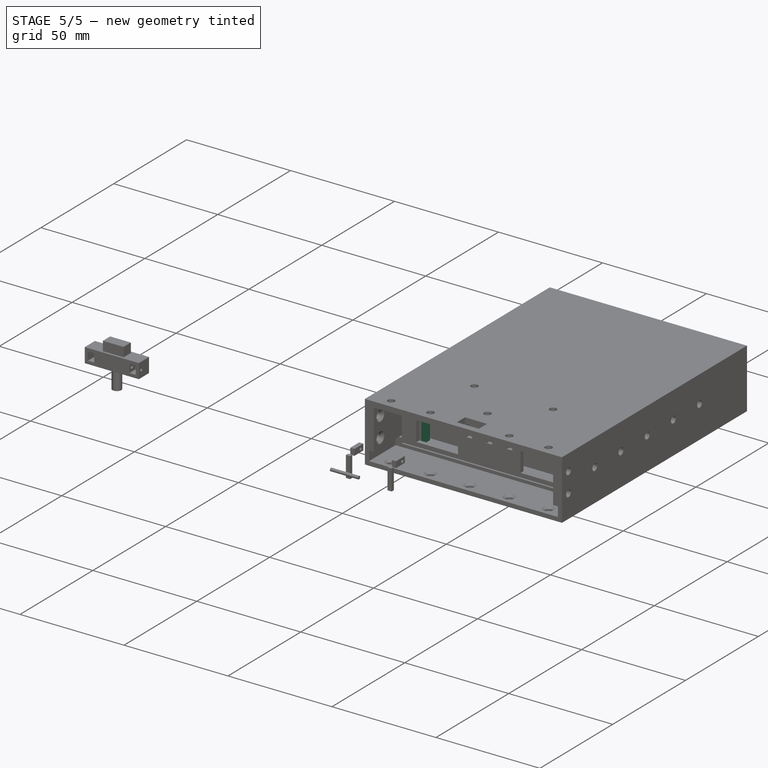
[diagram: stage 5 of 5 — iso view after this stage's code; geometry added in this stage tinted green]
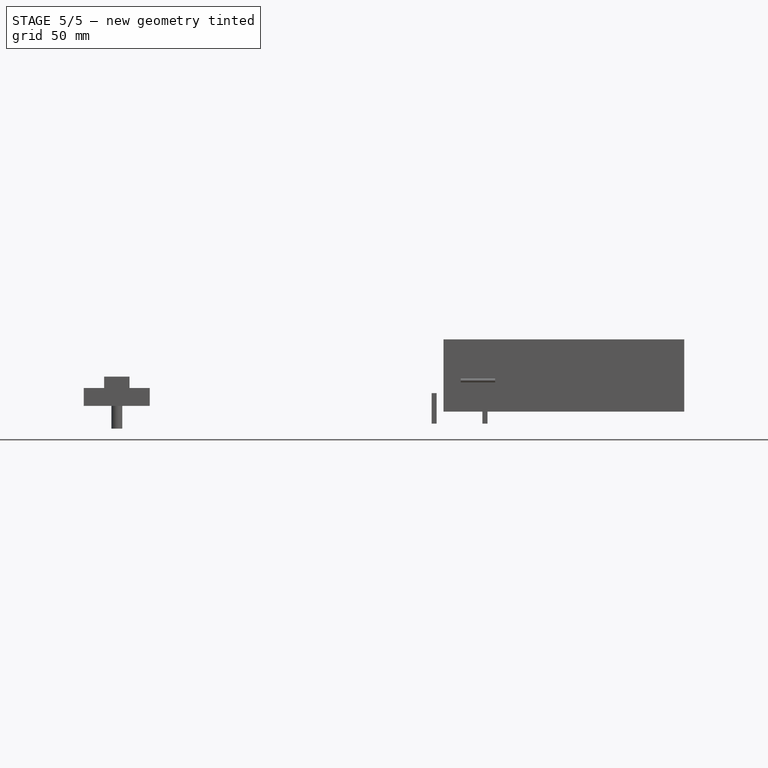
[diagram: stage 5 of 5 — front view after this stage's code; geometry added in this stage tinted green]
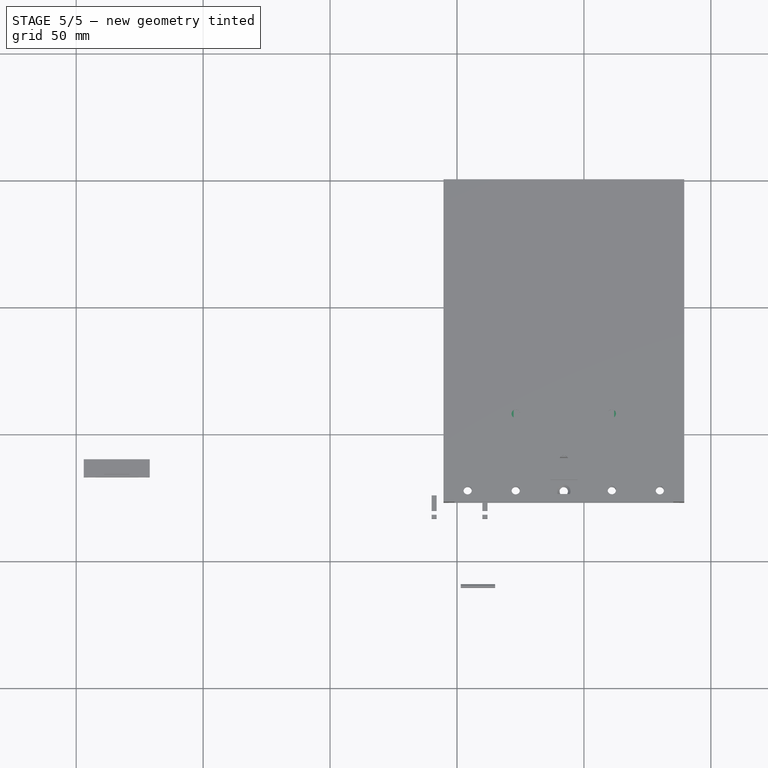
[diagram: stage 5 of 5 — top view after this stage's code; geometry added in this stage tinted green]
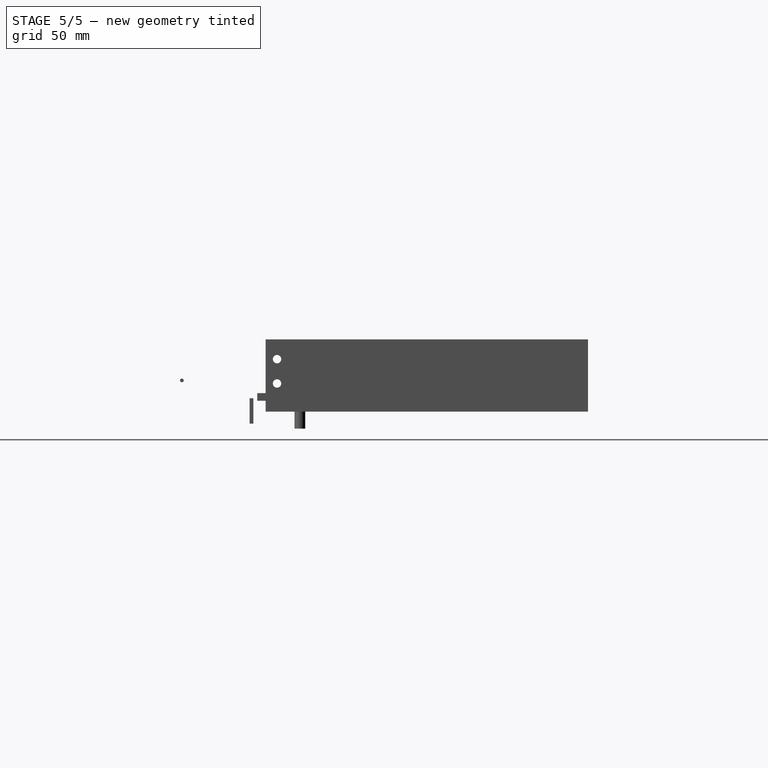
[diagram: stage 5 of 5 — right view after this stage's code; geometry added in this stage tinted green]
FEATURE [Sketcher::SketchObject] Sketch002
  FullyConstrained = false
  MapMode = 5
  Placement = pos=(0,0,2) rot=(0,0,1;0rad)
  Support = -> [Extrude]
  sketch-geometry (15):
    g0: LineSegment StartX=22.2999 StartY=-28.6 StartZ=0 EndX=41.5999 EndY=-28.6 EndZ=0
    g1: LineSegment StartX=21.2995 StartY=-28.49 StartZ=0 EndX=22.2995 EndY=-28.49 EndZ=0
    g2: LineSegment StartX=22.2995 StartY=-28.49 StartZ=0 EndX=22.2995 EndY=-97.8 EndZ=0
    g3: LineSegment StartX=22.2995 StartY=-97.8 StartZ=0 EndX=21.2995 EndY=-97.8 EndZ=0
    g4: LineSegment StartX=21.2995 StartY=-97.8 StartZ=0 EndX=21.2995 EndY=-28.49 EndZ=0
    g5: LineSegment StartX=41.6 StartY=-28.49 StartZ=0 EndX=42.6 EndY=-28.49 EndZ=0
    g6: LineSegment StartX=42.6 StartY=-28.49 StartZ=0 EndX=42.6 EndY=-97.79 EndZ=0
    g7: LineSegment StartX=42.6 StartY=-97.79 StartZ=0 EndX=41.6 EndY=-97.79 EndZ=0
    g8: LineSegment StartX=41.6 StartY=-97.79 StartZ=0 EndX=41.6 EndY=-28.49 EndZ=0
    g9: LineSegment StartX=42.6 StartY=-28.6021 StartZ=0 EndX=61.9 EndY=-28.6021 EndZ=0
    g10: LineSegment StartX=61.9 StartY=-28.49 StartZ=0 EndX=62.9 EndY=-28.49 EndZ=0
    g11: LineSegment StartX=62.9 StartY=-28.49 StartZ=0 EndX=62.9 EndY=-97.8 EndZ=0
    g12: LineSegment StartX=62.9 StartY=-97.8 StartZ=0 EndX=61.9 EndY=-97.8 EndZ=0
    g13: LineSegment StartX=61.9 StartY=-97.8 StartZ=0 EndX=61.9 EndY=-28.49 EndZ=0
    g14: LineSegment StartX=62.9 StartY=-28.601 StartZ=0 EndX=82.2 EndY=-28.601 EndZ=0
  constraints (38):
    c: Horizontal(g0)
    c: Coincident(g1,g2)
    c: Coincident(g2,g3)
    c: Coincident(g3,g4)
    c: Coincident(g4,g1)
    c: Horizontal(g1)
    c: Horizontal(g3)
    c: Vertical(g2)
    c: Vertical(g4)
    c: Coincident(g5,g6)
    c: Coincident(g6,g7)
    c: Coincident(g7,g8)
    c: Coincident(g8,g5)
    c: Horizontal(g5)
    c: Horizontal(g7)
    c: Vertical(g6)
    c: Vertical(g8)
    c: PointOnObject(g9,g6)
    c: Horizontal(g9)
    c: Coincident(g10,g11)
    c: Coincident(g11,g12)
    c: Coincident(g12,g13)
    c: Coincident(g13,g10)
    c: Horizontal(g10)
    c: Horizontal(g12)
    c: Vertical(g11)
    c: Vertical(g13)
    c: PointOnObject(g14,g11)
    c: Horizontal(g14)
    c: DistanceY(g4,g4) = 69.31
    c: DistanceY(g8,g8) = 69.3
    c: DistanceY(g13,g13) = 69.31
    c: DistanceX(g1,g1) = 1
    c: DistanceX(g0,g0) = 19.3
    c: DistanceX(g9,g9) = 19.3
    c: DistanceX(g5,g5) = 1
    c: DistanceX(g10,g10) = 1
    c: DistanceX(g14,g14) = 19.3
FEATURE [Part::Extrusion] Extrude002  label="CELL DIVIDER WALLS"
  Base = -> Sketch002
  Dir = (0,0,1)
  DirMode = 2
  FaceMakerClass = Part::FaceMakerBullseye
  LengthFwd = 19.3
  LengthRev = 0
  Solid = true
  Symmetric = false
FEATURE [Sketcher::SketchObject] Sketch003
  FullyConstrained = false
  MapMode = 5
  Placement = pos=(0,0,2) rot=(0,0,1;0rad)
  Support = -> [Extrude]
  sketch-geometry (66):
    g0: LineSegment StartX=2.1 StartY=-28.49 StartZ=0 EndX=2.1 EndY=-29.49 EndZ=0
    g1: LineSegment StartX=2 StartY=-29.5 StartZ=0 EndX=6.5 EndY=-29.5 EndZ=0
    g2: LineSegment StartX=6.5 StartY=-29.5 StartZ=0 EndX=6.5 EndY=-30.5 EndZ=0
    g3: LineSegment StartX=6.5 StartY=-30.5 StartZ=0 EndX=2 EndY=-30.5 EndZ=0
    g4: LineSegment StartX=2 StartY=-30.5 StartZ=0 EndX=2 EndY=-29.5 EndZ=0
    g5: LineSegment StartX=21.3 StartY=-29.49 StartZ=0 EndX=16.8 EndY=-29.49 EndZ=0
    g6: LineSegment StartX=16.8 StartY=-29.49 StartZ=0 EndX=16.8 EndY=-30.49 EndZ=0
    g7: LineSegment StartX=16.8 StartY=-30.49 StartZ=0 EndX=21.3 EndY=-30.49 EndZ=0
    g8: LineSegment StartX=21.3 StartY=-30.49 StartZ=0 EndX=21.3 EndY=-29.49 EndZ=0
    g9: LineSegment StartX=22.3 StartY=-30.49 StartZ=0 EndX=26.8 EndY=-30.49 EndZ=0
    g10: LineSegment StartX=26.8 StartY=-30.49 StartZ=0 EndX=26.8 EndY=-29.49 EndZ=0
    g11: LineSegment StartX=26.8 StartY=-29.49 StartZ=0 EndX=22.3 EndY=-29.49 EndZ=0
    g12: LineSegment StartX=22.3 StartY=-29.49 StartZ=0 EndX=22.3 EndY=-30.49 EndZ=0
    g13: LineSegment StartX=41.6 StartY=-29.5 StartZ=0 EndX=37.1 EndY=-29.5 EndZ=0
    g14: LineSegment StartX=37.1 StartY=-29.5 StartZ=0 EndX=37.1 EndY=-30.5 EndZ=0
    g15: LineSegment StartX=37.1 StartY=-30.5 StartZ=0 EndX=41.6 EndY=-30.5 EndZ=0
    g16: LineSegment StartX=41.6 StartY=-30.5 StartZ=0 EndX=41.6 EndY=-29.5 EndZ=0
    g17: LineSegment StartX=42.6 StartY=-29.5 StartZ=0 EndX=47.1 EndY=-29.5 EndZ=0
    g18: LineSegment StartX=47.1 StartY=-29.5 StartZ=0 EndX=47.1 EndY=-30.5 EndZ=0
    g19: LineSegment StartX=47.1 StartY=-30.5 StartZ=0 EndX=42.6 EndY=-30.5 EndZ=0
    g20: LineSegment StartX=42.6 StartY=-30.5 StartZ=0 EndX=42.6 EndY=-29.5 EndZ=0
    g21: LineSegment StartX=61.9 StartY=-29.5 StartZ=0 EndX=57.4 EndY=-29.5 EndZ=0
    g22: LineSegment StartX=57.4 StartY=-29.5 StartZ=0 EndX=57.4 EndY=-30.5 EndZ=0
    g23: LineSegment StartX=57.4 StartY=-30.5 StartZ=0 EndX=61.9 EndY=-30.5 EndZ=0
    g24: LineSegment StartX=61.9 StartY=-30.5 StartZ=0 EndX=61.9 EndY=-29.5 EndZ=0
    g25: LineSegment StartX=62.9 StartY=-29.5 StartZ=0 EndX=67.4 EndY=-29.5 EndZ=0
    g26: LineSegment StartX=67.4 StartY=-29.5 StartZ=0 EndX=67.4 EndY=-30.5 EndZ=0
    g27: LineSegment StartX=67.4 StartY=-30.5 StartZ=0 EndX=62.9 EndY=-30.5 EndZ=0
    g28: LineSegment StartX=62.9 StartY=-30.5 StartZ=0 EndX=62.9 EndY=-29.5 EndZ=0
    g29: LineSegment StartX=82.2 StartY=-29.5 StartZ=0 EndX=77.7 EndY=-29.5 EndZ=0
    g30: LineSegment StartX=77.7 StartY=-29.5 StartZ=0 EndX=77.7 EndY=-30.5 EndZ=0
    g31: LineSegment StartX=77.7 StartY=-30.5 StartZ=0 EndX=82.2 EndY=-30.5 EndZ=0
    g32: LineSegment StartX=82.2 StartY=-30.5 StartZ=0 EndX=82.2 EndY=-29.5 EndZ=0
    g33: LineSegment StartX=2.1 StartY=-97.79 StartZ=0 EndX=2.1 EndY=-96.7 EndZ=0
    g34: LineSegment StartX=2 StartY=-96.7 StartZ=0 EndX=6.5 EndY=-96.7 EndZ=0
    g35: LineSegment StartX=6.5 StartY=-96.7 StartZ=0 EndX=6.5 EndY=-95.7 EndZ=0
    g36: LineSegment StartX=6.5 StartY=-95.7 StartZ=0 EndX=2 EndY=-95.7 EndZ=0
    g37: LineSegment StartX=2 StartY=-95.7 StartZ=0 EndX=2 EndY=-96.7 EndZ=0
    g38: LineSegment StartX=21.3 StartY=-95.7 StartZ=0 EndX=16.8 EndY=-95.7 EndZ=0
    g39: LineSegment StartX=16.8 StartY=-95.7 StartZ=0 EndX=16.8 EndY=-96.7 EndZ=0
    g40: LineSegment StartX=16.8 StartY=-96.7 StartZ=0 EndX=21.3 EndY=-96.7 EndZ=0
    g41: LineSegment StartX=21.3 StartY=-96.7 StartZ=0 EndX=21.3 EndY=-95.7 EndZ=0
    g42: LineSegment StartX=22.3 StartY=-96.7 StartZ=0 EndX=26.8 EndY=-96.7 EndZ=0
    g43: LineSegment StartX=26.8 StartY=-96.7 StartZ=0 EndX=26.8 EndY=-95.7 EndZ=0
    g44: LineSegment StartX=26.8 StartY=-95.7 StartZ=0 EndX=22.3 EndY=-95.7 EndZ=0
    g45: LineSegment StartX=22.3 StartY=-95.7 StartZ=0 EndX=22.3 EndY=-96.7 EndZ=0
    g46: LineSegment StartX=41.6 StartY=-95.7 StartZ=0 EndX=37.1 EndY=-95.7 EndZ=0
    g47: LineSegment StartX=37.1 StartY=-95.7 StartZ=0 EndX=37.1 EndY=-96.7 EndZ=0
    g48: LineSegment StartX=37.1 StartY=-96.7 StartZ=0 EndX=41.6 EndY=-96.7 EndZ=0
    g49: LineSegment StartX=41.6 StartY=-96.7 StartZ=0 EndX=41.6 EndY=-95.7 EndZ=0
    g50: LineSegment StartX=42.6 StartY=-96.7 StartZ=0 EndX=47.1 EndY=-96.7 EndZ=0
    g51: LineSegment StartX=47.1 StartY=-96.7 StartZ=0 EndX=47.1 EndY=-95.7 EndZ=0
    g52: LineSegment StartX=47.1 StartY=-95.7 StartZ=0 EndX=42.6 EndY=-95.7 EndZ=0
    g53: LineSegment StartX=42.6 StartY=-95.7 StartZ=0 EndX=42.6 EndY=-96.7 EndZ=0
    g54: LineSegment StartX=61.9 StartY=-95.7 StartZ=0 EndX=57.4 EndY=-95.7 EndZ=0
    g55: LineSegment StartX=57.4 StartY=-95.7 StartZ=0 EndX=57.4 EndY=-96.7 EndZ=0
    g56: LineSegment StartX=57.4 StartY=-96.7 StartZ=0 EndX=61.9 EndY=-96.7 EndZ=0
    g57: LineSegment StartX=61.9 StartY=-96.7 StartZ=0 EndX=61.9 EndY=-95.7 EndZ=0
    g58: LineSegment StartX=62.9 StartY=-95.7 StartZ=0 EndX=67.4 EndY=-95.7 EndZ=0
    g59: LineSegment StartX=67.4 StartY=-95.7 StartZ=0 EndX=67.4 EndY=-96.7 EndZ=0
    g60: LineSegment StartX=67.4 StartY=-96.7 StartZ=0 EndX=62.9 EndY=-96.7 EndZ=0
    g61: LineSegment StartX=62.9 StartY=-96.7 StartZ=0 EndX=62.9 EndY=-95.7 EndZ=0
    g62: LineSegment StartX=82.2 StartY=-95.7 StartZ=0 EndX=77.7 EndY=-95.7 EndZ=0
    g63: LineSegment StartX=77.7 StartY=-95.7 StartZ=0 EndX=77.7 EndY=-96.7 EndZ=0
    g64: LineSegment StartX=77.7 StartY=-96.7 StartZ=0 EndX=82.2 EndY=-96.7 EndZ=0
    g65: LineSegment StartX=82.2 StartY=-96.7 StartZ=0 EndX=82.2 EndY=-95.7 EndZ=0
  constraints (162):
    c: Vertical(g0)
    c: Coincident(g1,g2)
    c: Coincident(g2,g3)
    c: Coincident(g3,g4)
    c: Coincident(g4,g1)
    c: Horizontal(g1)
    c: Horizontal(g3)
    c: Vertical(g2)
    c: Vertical(g4)
    c: Coincident(g5,g6)
    c: Coincident(g6,g7)
    c: Coincident(g7,g8)
    c: Coincident(g8,g5)
    c: Horizontal(g5)
    c: Horizontal(g7)
    c: Vertical(g6)
    c: Vertical(g8)
    c: DistanceX(g1,g1) = 4.5
    c: DistanceX(g5,g5) = 4.5
    c: DistanceY(g2,g2) = 1
    c: DistanceY(g6,g6) = 1
    c: Coincident(g9,g10)
    c: Coincident(g10,g11)
    c: Coincident(g11,g12)
    c: Coincident(g12,g9)
    c: Horizontal(g9)
    c: Horizontal(g11)
    c: Vertical(g10)
    c: Vertical(g12)
    c: Coincident(g13,g14)
    c: Coincident(g14,g15)
    c: Coincident(g15,g16)
    c: Coincident(g16,g13)
    c: Horizontal(g13)
    c: Horizontal(g15)
    c: Vertical(g14)
    c: Vertical(g16)
    c: DistanceX(g13,g13) = 4.5
    c: DistanceX(g11,g11) = 4.5
    c: DistanceY(g10,g10) = 1
    c: DistanceY(g14,g14) = 1
    c: Coincident(g17,g18)
    c: Coincident(g18,g19)
    c: Coincident(g19,g20)
    c: Coincident(g20,g17)
    c: Horizontal(g17)
    c: Horizontal(g19)
    c: Vertical(g18)
    c: Vertical(g20)
    c: Coincident(g21,g22)
    c: Coincident(g22,g23)
    c: Coincident(g23,g24)
    c: Coincident(g24,g21)
    c: Horizontal(g21)
    c: Horizontal(g23)
    c: Vertical(g22)
    c: Vertical(g24)
    c: DistanceX(g17,g17) = 4.5
    c: DistanceY(g18,g18) = 1
    c: DistanceX(g21,g21) = 4.5
    c: DistanceY(g22,g22) = 1
    c: Coincident(g25,g26)
    c: Coincident(g26,g27)
    c: Coincident(g27,g28)
    c: Coincident(g28,g25)
    c: Horizontal(g25)
    c: Horizontal(g27)
    c: Vertical(g26)
    c: Vertical(g28)
    c: Coincident(g29,g30)
    c: Coincident(g30,g31)
    c: Coincident(g31,g32)
    c: Coincident(g32,g29)
    c: Horizontal(g29)
    c: Horizontal(g31)
    c: Vertical(g30)
    c: Vertical(g32)
    c: DistanceX(g29,g29) = 4.5
    c: DistanceX(g25,g25) = 4.5
    c: DistanceY(g26,g26) = 1
    c: DistanceY(g30,g30) = 1
    c: Vertical(g33)
    c: Coincident(g34,g35)
    c: Coincident(g35,g36)
    c: Coincident(g36,g37)
    c: Coincident(g37,g34)
    c: Horizontal(g34)
    c: Horizontal(g36)
    c: Vertical(g35)
    c: Vertical(g37)
    c: Coincident(g38,g39)
    c: Coincident(g39,g40)
    c: Coincident(g40,g41)
    c: Coincident(g41,g38)
    c: Horizontal(g38)
    c: Horizontal(g40)
    c: Vertical(g39)
    c: Vertical(g41)
    c: DistanceY(g39,g39) = 1
    c: DistanceY(g35,g35) = 1
    c: DistanceX(g36,g36) = 4.5
    c: DistanceX(g38,g38) = 4.5
    c: Coincident(g42,g43)
    c: Coincident(g43,g44)
    c: Coincident(g44,g45)
    c: Coincident(g45,g42)
    c: Horizontal(g42)
    c: Horizontal(g44)
    c: Vertical(g43)
    c: Vertical(g45)
    c: Coincident(g46,g47)
    c: Coincident(g47,g48)
    c: Coincident(g48,g49)
    c: Coincident(g49,g46)
    c: Horizontal(g46)
    c: Horizontal(g48)
    c: Vertical(g47)
    c: Vertical(g49)
    c: DistanceX(g46,g46) = 4.5
    c: DistanceX(g44,g44) = 4.5
    c: DistanceY(g43,g43) = 1
    c: DistanceY(g47,g47) = 1
    c: Coincident(g50,g51)
    c: Coincident(g51,g52)
    c: Coincident(g52,g53)
    c: Coincident(g53,g50)
    c: Horizontal(g50)
    c: Horizontal(g52)
    c: Vertical(g51)
    c: Vertical(g53)
    c: DistanceY(g51,g51) = 1
    c: DistanceX(g52,g52) = 4.5
    c: Coincident(g54,g55)
    c: Coincident(g55,g56)
    c: Coincident(g56,g57)
    c: Coincident(g57,g54)
    c: Horizontal(g54)
    c: Horizontal(g56)
    c: Vertical(g55)
    c: Vertical(g57)
    c: DistanceX(g54,g54) = 4.5
    c: DistanceY(g55,g55) = 1
    c: Coincident(g58,g59)
    c: Coincident(g59,g60)
    c: Coincident(g60,g61)
    c: Coincident(g61,g58)
    c: Horizontal(g58)
    c: Horizontal(g60)
    c: Vertical(g59)
    c: Vertical(g61)
    c: DistanceY(g59,g59) = 1
    c: DistanceX(g60,g60) = 4.5
    c: Coincident(g62,g63)
    c: Coincident(g63,g64)
    c: Coincident(g64,g65)
    c: Coincident(g65,g62)
    c: Horizontal(g62)
    c: Horizontal(g64)
    c: Vertical(g63)
    c: Vertical(g65)
    c: DistanceY(g63,g63) = 1
    c: DistanceX(g62,g62) = 4.5
FEATURE [Part::Extrusion] Extrude003  label="CELL ENDS SPRING HOLDERS"
  Base = -> Sketch003
  Dir = (0,0,1)
  DirMode = 2
  FaceMakerClass = Part::FaceMakerBullseye
  LengthFwd = 9.65
  LengthRev = 0
  Solid = true
  Symmetric = false
FEATURE [Sketcher::SketchObject] Sketch022
  FullyConstrained = false
  MapMode = 5
  Placement = pos=(0,0,2) rot=(0,0,1;0rad)
  Support = -> [Extrude013]
  sketch-geometry (8):
    g0: LineSegment StartX=0 StartY=-99.8 StartZ=0 EndX=0 EndY=-109.3 EndZ=0
    g1: LineSegment StartX=0 StartY=-109.3 StartZ=0 EndX=84.2 EndY=-109.3 EndZ=0
    g2: LineSegment StartX=84.2 StartY=-109.3 StartZ=0 EndX=84.2 EndY=-99.79 EndZ=0
    g3: LineSegment StartX=84.2 StartY=-99.79 StartZ=0 EndX=82.2 EndY=-99.79 EndZ=0
    g4: LineSegment StartX=82.2 StartY=-99.79 StartZ=0 EndX=82.2 EndY=-107.3 EndZ=0
    g5: LineSegment StartX=82.2 StartY=-107.3 StartZ=0 EndX=2 EndY=-107.3 EndZ=0
    g6: LineSegment StartX=2 StartY=-107.3 StartZ=0 EndX=2 EndY=-99.8 EndZ=0
    g7: LineSegment StartX=2 StartY=-99.8 StartZ=0 EndX=0 EndY=-99.8 EndZ=0
  constraints (23):
    c: PointOnObject(g0,g-2)
    c: PointOnObject(g0,g-2)
    c: Coincident(g0,g1)
    c: Horizontal(g1)
    c: Coincident(g1,g2)
    c: Vertical(g2)
    c: Coincident(g2,g3)
    c: Horizontal(g3)
    c: Coincident(g3,g4)
    c: Vertical(g4)
    c: Coincident(g4,g5)
    c: Horizontal(g5)
    c: Coincident(g5,g6)
    c: Vertical(g6)
    c: Coincident(g6,g7)
    c: Coincident(g7,g0)
    c: Horizontal(g7)
    c: DistanceX(g7,g7) = 2
    c: DistanceX(g1,g1) = 84.2
    c: DistanceX(g5,g5) = 80.2
    c: DistanceY(g2,g2) = 9.51
    c: DistanceY(g4,g4) = 7.51
    c: DistanceY(g6,g6) = 7.5
FEATURE [PartDesign::FeatureBase] BaseFeature005  label="FRONT FLOOR"
  BaseFeature = -> Extrude013
FEATURE [Sketcher::SketchObject] Sketch023
  FullyConstrained = false
  MapMode = 5
  Placement = pos=(0,0,2) rot=(0,0,1;0rad)
  Support = -> [BaseFeature005]
  sketch-geometry (4):
    g0: LineSegment StartX=2 StartY=-107.3 StartZ=0 EndX=8 EndY=-107.3 EndZ=0
    g1: LineSegment StartX=8 StartY=-107.3 StartZ=0 EndX=8 EndY=-101.3 EndZ=0
    g2: LineSegment StartX=8 StartY=-101.3 StartZ=0 EndX=2 EndY=-101.3 EndZ=0
    g3: LineSegment StartX=2 StartY=-101.3 StartZ=0 EndX=2 EndY=-107.3 EndZ=0
  constraints (10):
    c: Coincident(g0,g1)
    c: Coincident(g1,g2)
    c: Coincident(g2,g3)
    c: Coincident(g3,g0)
    c: Horizontal(g0)
    c: Horizontal(g2)
    c: Vertical(g1)
    c: Vertical(g3)
    c: DistanceX(g2,g2) = 6
    c: DistanceY(g1,g1) = 6
FEATURE [Part::Extrusion] Extrude015
  Base = -> Sketch023
  Dir = (0,0,1)
  DirMode = 2
  FaceMakerClass = Part::FaceMakerBullseye
  LengthFwd = 19.3
  LengthRev = 0
  Solid = true
  Symmetric = false
FEATURE [Sketcher::SketchObject] Sketch024
  FullyConstrained = false
  MapMode = 5
  Placement = pos=(0,0,21.3) rot=(0,0,1;0rad)
  Support = -> [Extrude015]
  sketch-geometry (1):
    g0: Circle CenterX=5 CenterY=-104.3 CenterZ=0 NormalX=0 NormalY=0 NormalZ=1 AngleXU=0 Radius=1.55
  constraints (1):
    c: Diameter(g0) = 3.1
FEATURE [PartDesign::Hole] Hole002  label="FRONT LEFT INSERT MNT"
  CustomThreadClearance = 0
  Depth = 2.5
  DepthType = 0
  Diameter = 3.2
  DrillForDepth = false
  DrillPoint = 1
  DrillPointAngle = 118
  HoleCutCountersinkAngle = 90
  HoleCutCustomValues = false
  HoleCutDepth = 0
  HoleCutDiameter = 6.1
  HoleCutType = 0
  ModelThread = false
  Profile = -> Sketch024
  Tapered = false
  TaperedAngle = 90
  ThreadClass = 0
  ThreadDepth = 2.5
  ThreadDepthType = 0
  ThreadDirection = 0
  ThreadFit = 0
  ThreadSize = 0
  ThreadType = 0
  Threaded = false
  UseCustomThreadClearance = false
FEATURE [Sketcher::SketchObject] Sketch025
  FullyConstrained = false
  MapMode = 5
  Placement = pos=(0,0,2) rot=(0,0,1;0rad)
  Support = -> [BaseFeature005]
  sketch-geometry (4):
    g0: LineSegment StartX=82.2 StartY=-107.3 StartZ=0 EndX=76.2 EndY=-107.3 EndZ=0
    g1: LineSegment StartX=76.2 StartY=-107.3 StartZ=0 EndX=76.2 EndY=-101.3 EndZ=0
    g2: LineSegment StartX=76.2 StartY=-101.3 StartZ=0 EndX=82.2 EndY=-101.3 EndZ=0
    g3: LineSegment StartX=82.2 StartY=-101.3 StartZ=0 EndX=82.2 EndY=-107.3 EndZ=0
  constraints (9):
    c: Coincident(g0,g1)
    c: Coincident(g1,g2)
    c: Coincident(g2,g3)
    c: Coincident(g3,g0)
    c: Horizontal(g0)
    c: Horizontal(g2)
    c: Vertical(g1)
    c: Vertical(g3)
    c: DistanceY(g1,g1) = 6
FEATURE [Part::Extrusion] Extrude016
  Base = -> Sketch025
  Dir = (0,0,1)
  DirMode = 2
  FaceMakerClass = Part::FaceMakerBullseye
  LengthFwd = 19.3
  LengthRev = 0
  Solid = true
  Symmetric = false
FEATURE [Sketcher::SketchObject] Sketch026
  FullyConstrained = false
  MapMode = 5
  Placement = pos=(0,0,21.3) rot=(0,0,1;0rad)
  Support = -> [Extrude016]
  sketch-geometry (1):
    g0: Circle CenterX=79.2 CenterY=-104.3 CenterZ=0 NormalX=0 NormalY=0 NormalZ=1 AngleXU=0 Radius=1.6
  constraints (1):
    c: Diameter(g0) = 3.2
FEATURE [PartDesign::Hole] Hole003  label="FRONT RIGHT INSERT MNT"
  CustomThreadClearance = 0
  Depth = 2.3
  DepthType = 0
  Diameter = 3.2
  DrillForDepth = false
  DrillPoint = 1
  DrillPointAngle = 118
  HoleCutCountersinkAngle = 90
  HoleCutCustomValues = false
  HoleCutDepth = 0
  HoleCutDiameter = 6.1
  HoleCutType = 0
  ModelThread = false
  Profile = -> Sketch026
  Tapered = false
  TaperedAngle = 90
  ThreadClass = 0
  ThreadDepth = 2.3
  ThreadDepthType = 0
  ThreadDirection = 0
  ThreadFit = 0
  ThreadSize = 0
  ThreadType = 0
  Threaded = false
  UseCustomThreadClearance = false
FEATURE [Sketcher::SketchObject] Sketch034
  FullyConstrained = false
  MapMode = 5
  Placement = pos=(0,0,2) rot=(0,0,1;0rad)
  Support = -> [BaseFeature005]
  sketch-geometry (7):
    g0: LineSegment StartX=2 StartY=-99.8 StartZ=0 EndX=82.2 EndY=-99.8 EndZ=0
    g1: LineSegment StartX=2 StartY=-99.9 StartZ=0 EndX=42.1 EndY=-99.9 EndZ=0
    g2: LineSegment StartX=42.1 StartY=-100 StartZ=0 EndX=37.85 EndY=-100 EndZ=0
    g3: LineSegment StartX=37.85 StartY=-99.7927 StartZ=0 EndX=46.4 EndY=-99.7927 EndZ=0
    g4: LineSegment StartX=46.4 StartY=-99.7927 StartZ=0 EndX=46.4 EndY=-107.303 EndZ=0
    g5: LineSegment StartX=46.4 StartY=-107.303 StartZ=0 EndX=37.85 EndY=-107.303 EndZ=0
    g6: LineSegment StartX=37.85 StartY=-107.303 StartZ=0 EndX=37.85 EndY=-99.7927 EndZ=0
  constraints (15):
    c: Horizontal(g0)
    c: DistanceX(g0,g0) = 80.2
    c: Horizontal(g1)
    c: DistanceX(g1,g1) = 40.1
    c: Horizontal(g2)
    c: Coincident(g3,g4)
    c: Coincident(g4,g5)
    c: Coincident(g5,g6)
    c: Coincident(g6,g3)
    c: Horizontal(g3)
    c: Horizontal(g5)
    c: Vertical(g4)
    c: Vertical(g6)
    c: DistanceY(g4,g4) = 7.51
    c: DistanceX(g3,g3) = 8.55
FEATURE [Part::Extrusion] Extrude021
  Base = -> Sketch034
  Dir = (0,0,1)
  DirMode = 2
  FaceMakerClass = Part::FaceMakerBullseye
  LengthFwd = 5.5
  LengthRev = 0
  Solid = true
  Symmetric = false
FEATURE [Sketcher::SketchObject] Sketch036
  FullyConstrained = false
  MapMode = 5
  Placement = pos=(0,0,7.5) rot=(0,0,1;0rad)
  Support = -> [Extrude021]
  sketch-geometry (1):
    g0: Circle CenterX=42.15 CenterY=-103.5 CenterZ=0 NormalX=0 NormalY=0 NormalZ=1 AngleXU=0 Radius=2.25
  constraints (1):
    c: Diameter(g0) = 4.5
FEATURE [PartDesign::Hole] Hole007  label="FRONT LOCK SLOT"
  CustomThreadClearance = 0
  Depth = 5.5
  DepthType = 0
  Diameter = 4.5
  DrillForDepth = false
  DrillPoint = 0
  DrillPointAngle = 118
  HoleCutCountersinkAngle = 90
  HoleCutCustomValues = false
  HoleCutDepth = 0
  HoleCutDiameter = 6.1
  HoleCutType = 0
  ModelThread = false
  Profile = -> Sketch036
  Tapered = false
  TaperedAngle = 90
  ThreadClass = 0
  ThreadDepth = 5.5
  ThreadDepthType = 0
  ThreadDirection = 0
  ThreadFit = 0
  ThreadSize = 0
  ThreadType = 0
  Threaded = false
  UseCustomThreadClearance = false
FEATURE [Sketcher::SketchObject] Sketch009
  FullyConstrained = false
  MapMode = 5
  Placement = pos=(0,-14.4,0) rot=(0,0.707107,0.707107;3.14159rad)
  Support = -> [BaseFeature]
  sketch-geometry (4):
    g0: LineSegment StartX=-7 StartY=10 StartZ=0 EndX=-24.64 EndY=10 EndZ=0
    g1: LineSegment StartX=-24.64 StartY=10 StartZ=0 EndX=-24.64 EndY=14 EndZ=0
    g2: LineSegment StartX=-24.64 StartY=14 StartZ=0 EndX=-7 EndY=14 EndZ=0
    g3: LineSegment StartX=-7 StartY=14 StartZ=0 EndX=-7 EndY=10 EndZ=0
  constraints (10):
    c: Coincident(g0,g1)
    c: Coincident(g1,g2)
    c: Coincident(g2,g3)
    c: Coincident(g3,g0)
    c: Horizontal(g0)
    c: Horizontal(g2)
    c: Vertical(g1)
    c: Vertical(g3)
    c: DistanceX(g2,g2) = 17.64
    c: DistanceY(g1,g1) = 4
FEATURE [PartDesign::Pocket] Pocket  label="BACK WALL"
  Direction = (0,-1,2e-16)
  Length = 2
  Length2 = 5
  Profile = -> Sketch009
  ReferenceAxis = -> Sketch009 [N_Axis]
  Type = 0
FEATURE [Sketcher::SketchObject] Sketch027
  FullyConstrained = false
  MapMode = 5
  Placement = pos=(0,-16.37,0) rot=(1,0,0;1.5708rad)
  Support = -> [Pocket]
  sketch-geometry (4):
    g0: LineSegment StartX=2 StartY=21.3 StartZ=0 EndX=7 EndY=21.3 EndZ=0
    g1: LineSegment StartX=7 StartY=21.3 StartZ=0 EndX=7 EndY=16.3 EndZ=0
    g2: LineSegment StartX=7 StartY=16.3 StartZ=0 EndX=2 EndY=16.3 EndZ=0
    g3: LineSegment StartX=2 StartY=16.3 StartZ=0 EndX=2 EndY=21.3 EndZ=0
  constraints (10):
    c: Coincident(g0,g1)
    c: Coincident(g1,g2)
    c: Coincident(g2,g3)
    c: Coincident(g3,g0)
    c: Horizontal(g0)
    c: Horizontal(g2)
    c: Vertical(g1)
    c: Vertical(g3)
    c: DistanceY(g1,g1) = 5
    c: DistanceX(g0,g0) = 5
FEATURE [Sketcher::SketchObject] Sketch029
  FullyConstrained = false
  MapMode = 5
  Placement = pos=(0,-16.37,0) rot=(1,0,0;1.5708rad)
  Support = -> [Pocket]
  sketch-geometry (4):
    g0: LineSegment StartX=82.2 StartY=21.3 StartZ=0 EndX=77.2 EndY=21.3 EndZ=0
    g1: LineSegment StartX=77.2 StartY=21.3 StartZ=0 EndX=77.2 EndY=16.3 EndZ=0
    g2: LineSegment StartX=77.2 StartY=16.3 StartZ=0 EndX=82.2 EndY=16.3 EndZ=0
    g3: LineSegment StartX=82.2 StartY=16.3 StartZ=0 EndX=82.2 EndY=21.3 EndZ=0
  constraints (10):
    c: Coincident(g0,g1)
    c: Coincident(g1,g2)
    c: Coincident(g2,g3)
    c: Coincident(g3,g0)
    c: Horizontal(g0)
    c: Horizontal(g2)
    c: Vertical(g1)
    c: Vertical(g3)
    c: DistanceX(g0,g0) = 5
    c: DistanceY(g3,g3) = 5
FEATURE [Part::Extrusion] Extrude018
  Base = -> Sketch029
  Dir = (0,-1,2e-16)
  DirMode = 2
  FaceMakerClass = Part::FaceMakerBullseye
  LengthFwd = 5
  LengthRev = 0
  Solid = true
  Symmetric = false
FEATURE [Sketcher::SketchObject] Sketch030
  FullyConstrained = false
  MapMode = 5
  Placement = pos=(0,4.7e-15,21.3) rot=(0,0,1;0rad)
  Support = -> [Extrude018]
  sketch-geometry (1):
    g0: Circle CenterX=80 CenterY=-18.4 CenterZ=0 NormalX=0 NormalY=0 NormalZ=1 AngleXU=0 Radius=1.6
  constraints (1):
    c: Diameter(g0) = 3.2
FEATURE [PartDesign::Hole] Hole005  label="BACK RIGHT INSERT MNT"
  CustomThreadClearance = 0
  Depth = 2.3
  DepthType = 0
  Diameter = 3.2
  DrillForDepth = false
  DrillPoint = 1
  DrillPointAngle = 118
  HoleCutCountersinkAngle = 90
  HoleCutCustomValues = false
  HoleCutDepth = 0
  HoleCutDiameter = 6.1
  HoleCutType = 0
  ModelThread = false
  Profile = -> Sketch030
  Tapered = false
  TaperedAngle = 90
  ThreadClass = 0
  ThreadDepth = 2.3
  ThreadDepthType = 0
  ThreadDirection = 0
  ThreadFit = 0
  ThreadSize = 0
  ThreadType = 0
  Threaded = false
  UseCustomThreadClearance = false
FEATURE [Part::Extrusion] Extrude017
  Base = -> Sketch027
  Dir = (0,-1,2e-16)
  DirMode = 2
  FaceMakerClass = Part::FaceMakerBullseye
  LengthFwd = 5
  LengthRev = 0
  Solid = true
  Symmetric = false
FEATURE [Sketcher::SketchObject] Sketch028
  FullyConstrained = false
  MapMode = 5
  Placement = pos=(0,4.7e-15,21.3) rot=(0,0,1;0rad)
  Support = -> [Extrude017]
  sketch-geometry (1):
    g0: Circle CenterX=4 CenterY=-18.4 CenterZ=0 NormalX=0 NormalY=0 NormalZ=1 AngleXU=0 Radius=1.6
  constraints (1):
    c: Diameter(g0) = 3.2
FEATURE [PartDesign::Hole] Hole004  label="BACK LEFT INSERT MNT"
  CustomThreadClearance = 0
  Depth = 2.2
  DepthType = 0
  Diameter = 3.2
  DrillForDepth = false
  DrillPoint = 1
  DrillPointAngle = 118
  HoleCutCountersinkAngle = 90
  HoleCutCustomValues = false
  HoleCutDepth = 0
  HoleCutDiameter = 6.1
  HoleCutType = 0
  ModelThread = false
  Profile = -> Sketch028
  Tapered = false
  TaperedAngle = 90
  ThreadClass = 0
  ThreadDepth = 2.2
  ThreadDepthType = 0
  ThreadDirection = 0
  ThreadFit = 0
  ThreadSize = 0
  ThreadType = 0
  Threaded = false
  UseCustomThreadClearance = false
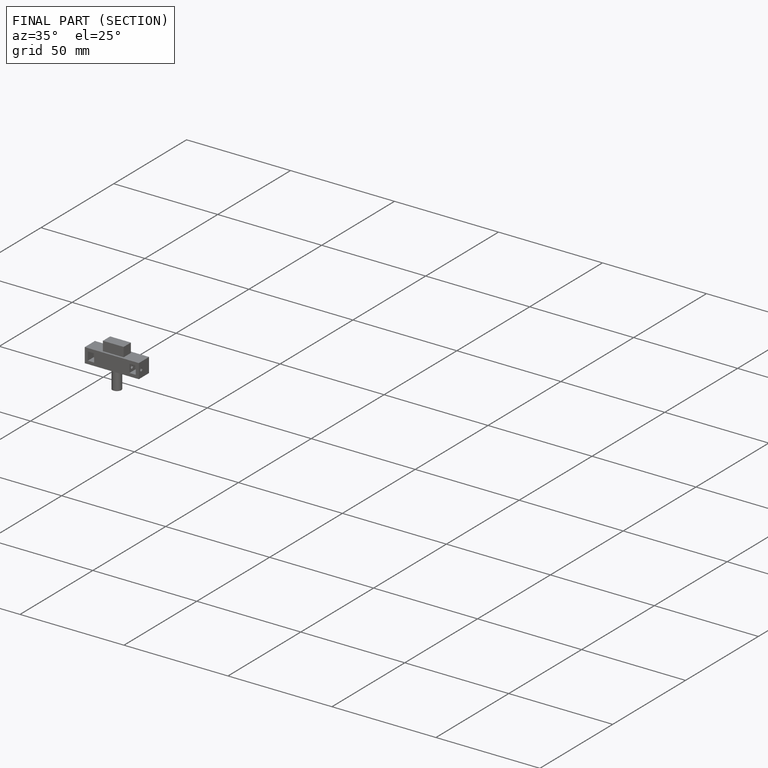
[diagram: finished part — half-section view (interior)]
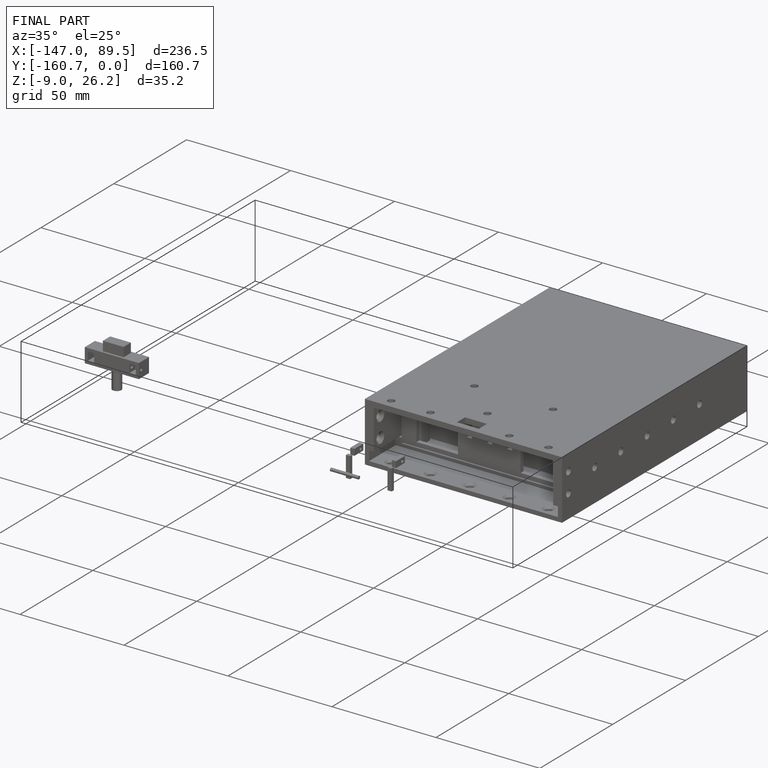
[diagram: finished part — iso view with bounding-box wireframe]
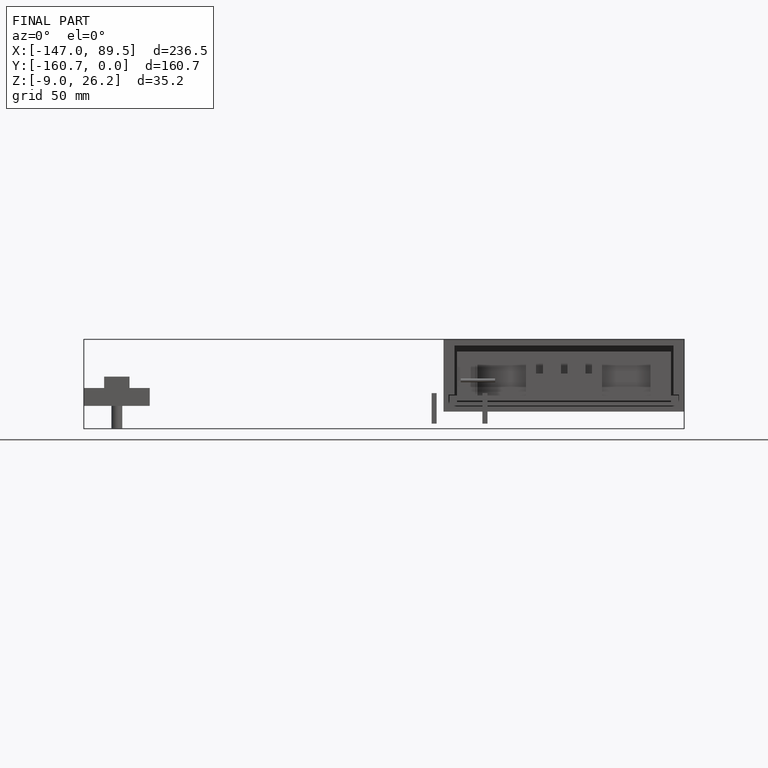
[diagram: finished part — front view with bounding-box wireframe]
